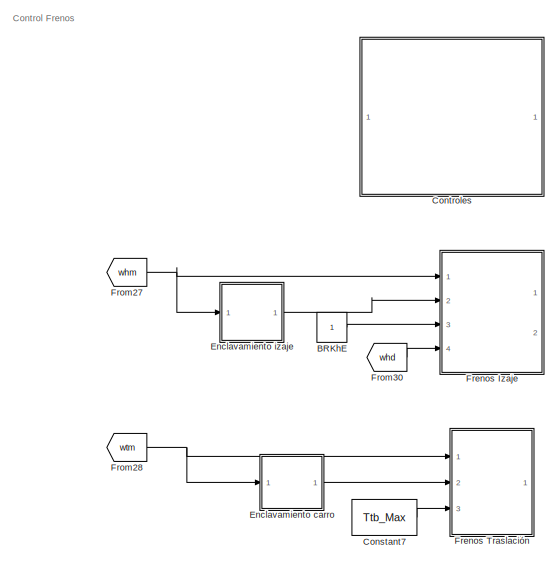
[diagram: root canvas - part 1/14, top right region]
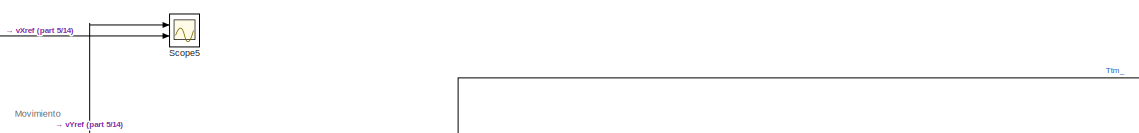
[diagram: root canvas - part 2/14, top center region]
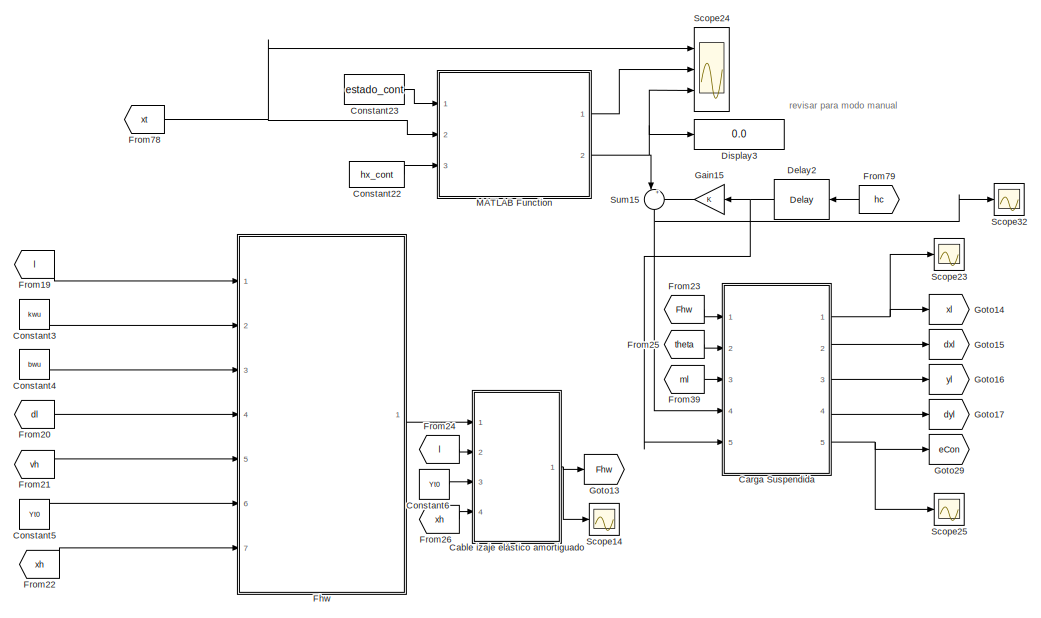
[diagram: root canvas - part 3/14, top right region]
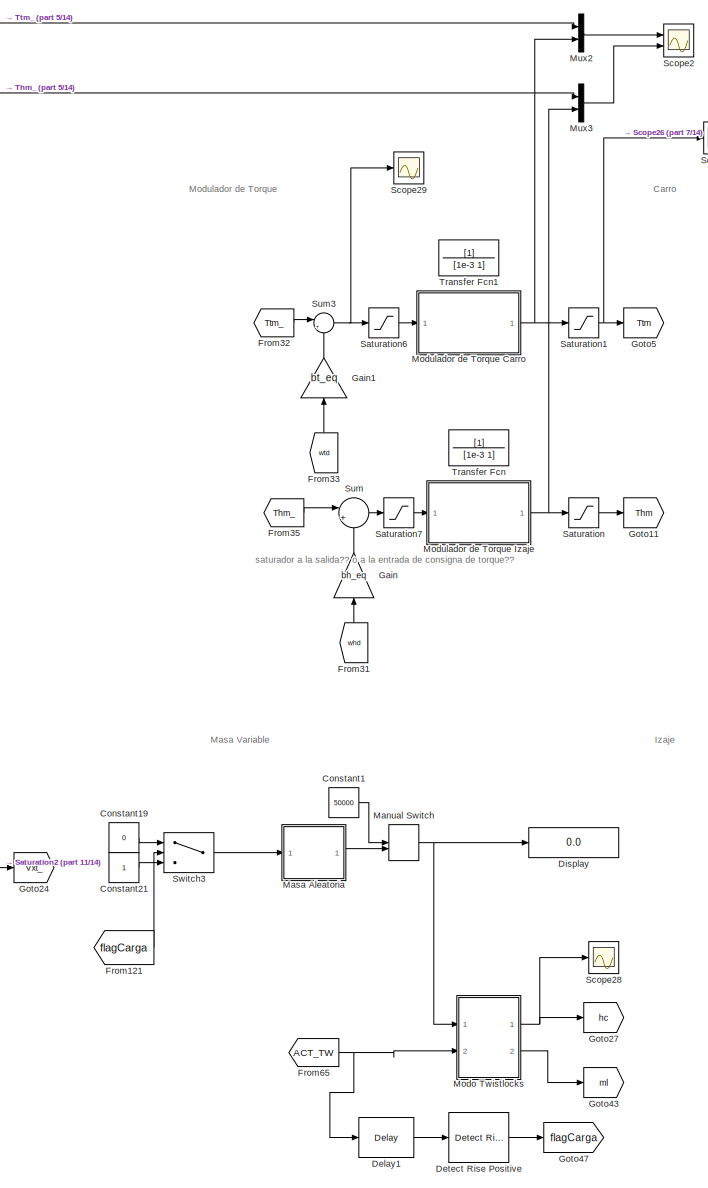
[diagram: root canvas - part 4/14, middle right region]
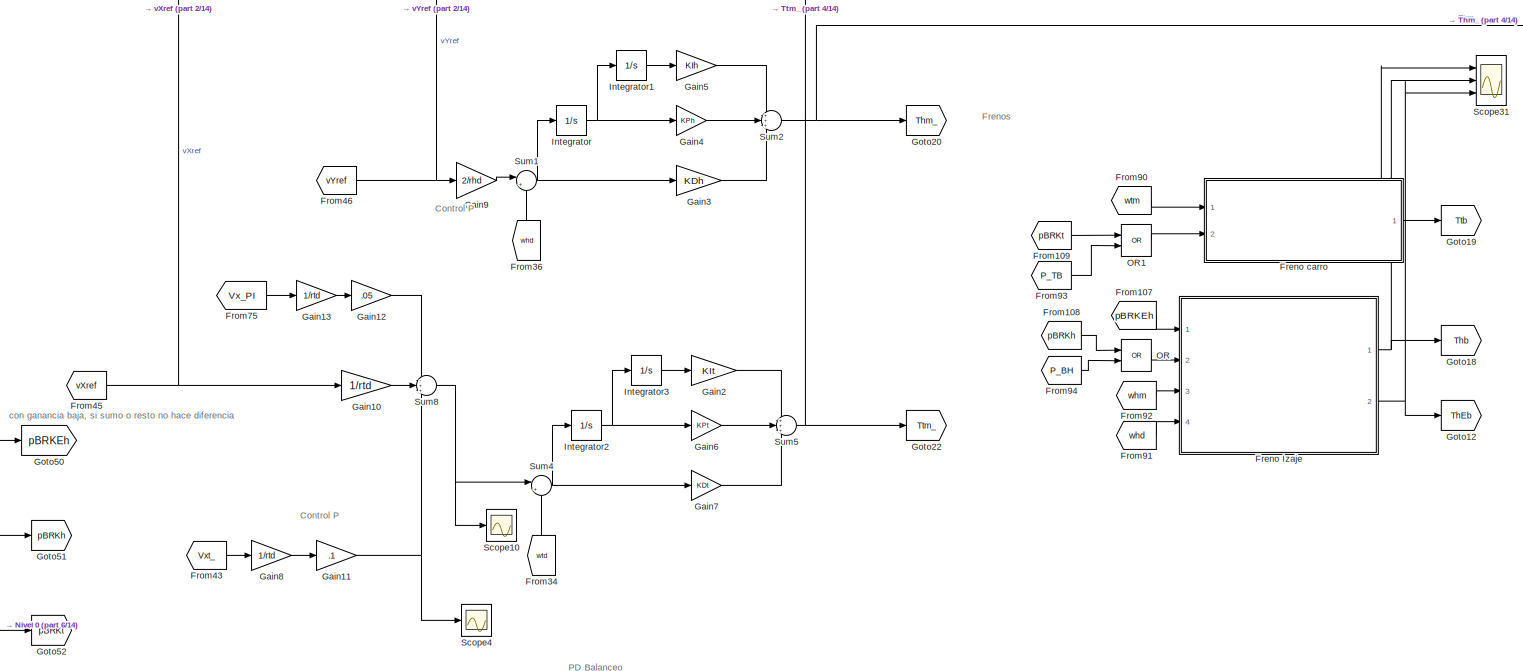
[diagram: root canvas - part 5/14, central region]
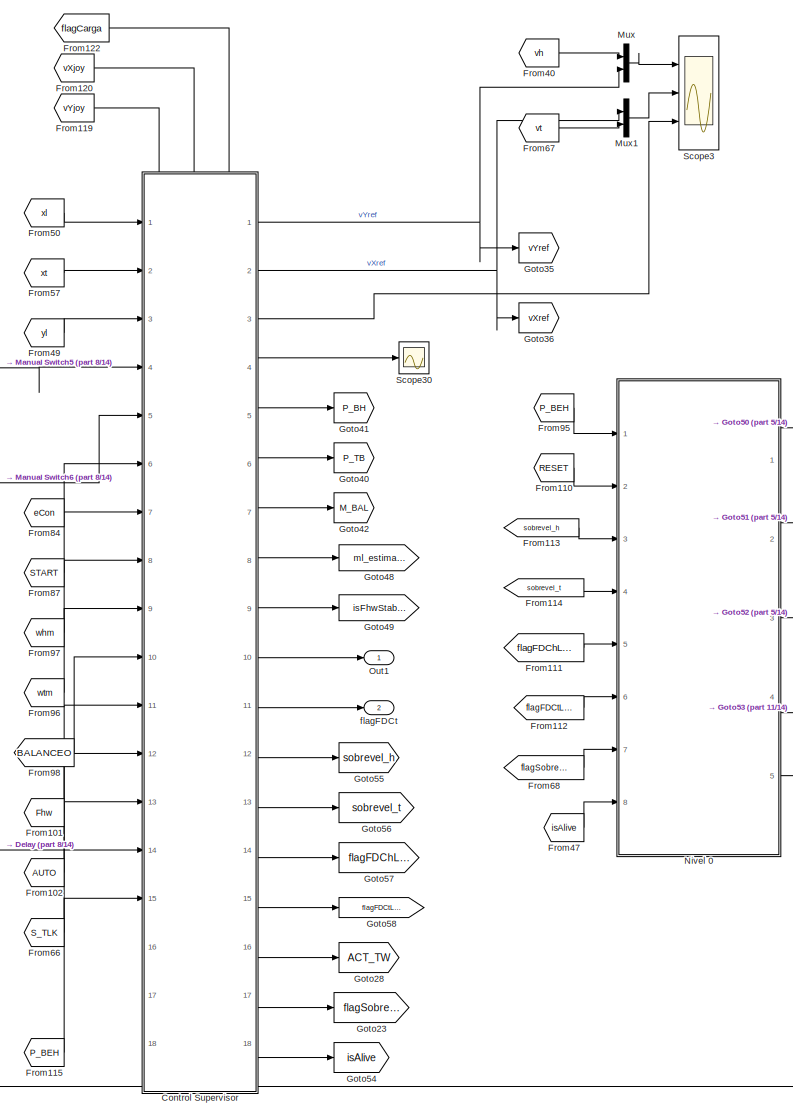
[diagram: root canvas - part 6/14, central region]
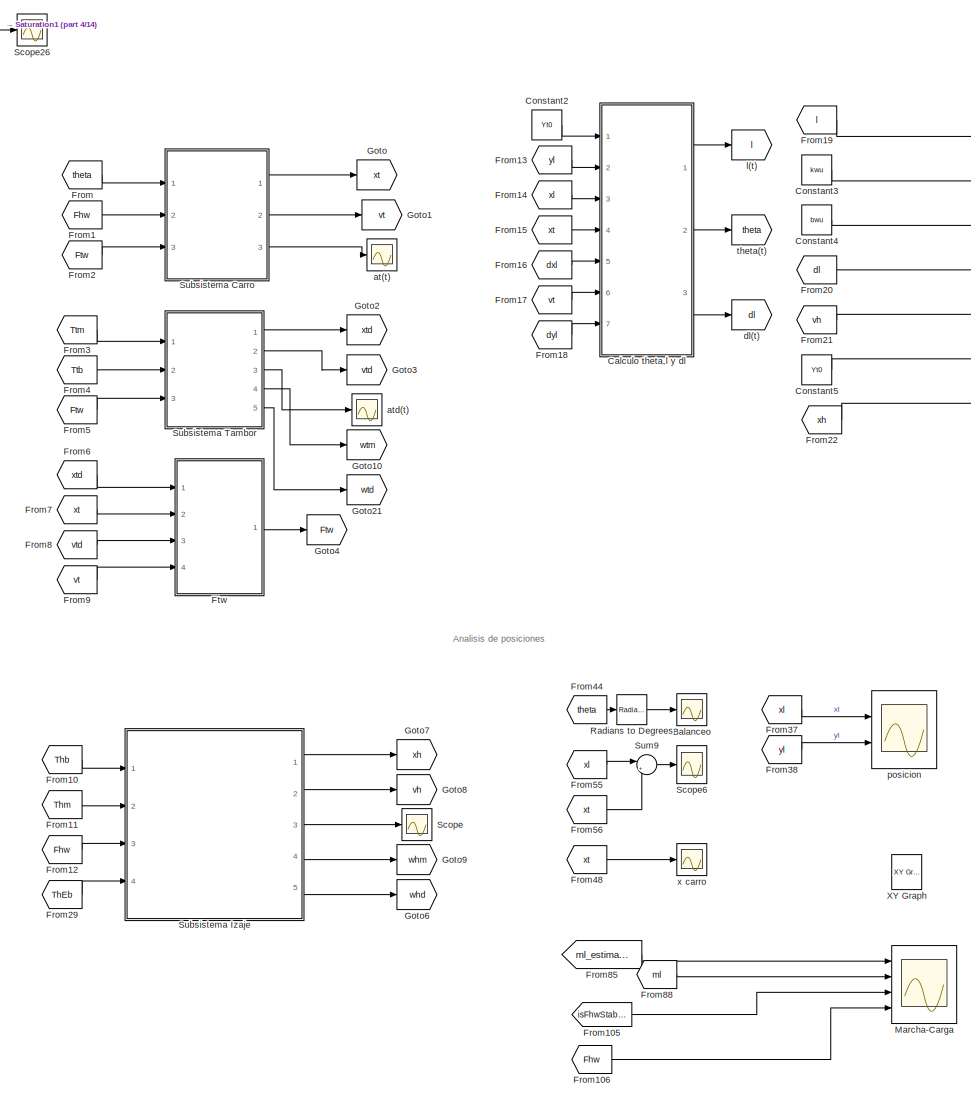
[diagram: root canvas - part 7/14, middle right region]
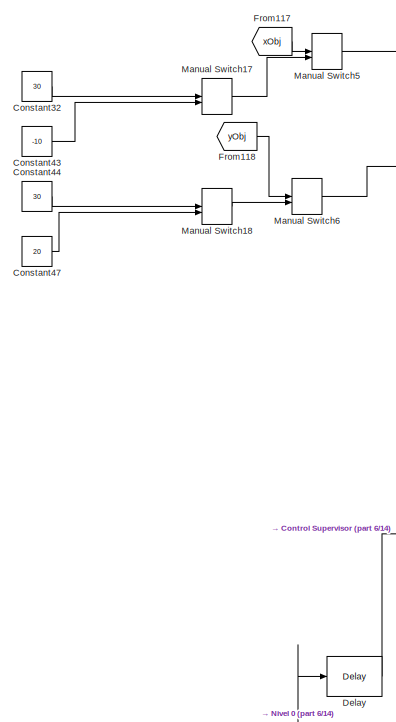
[diagram: root canvas - part 8/14, central region]
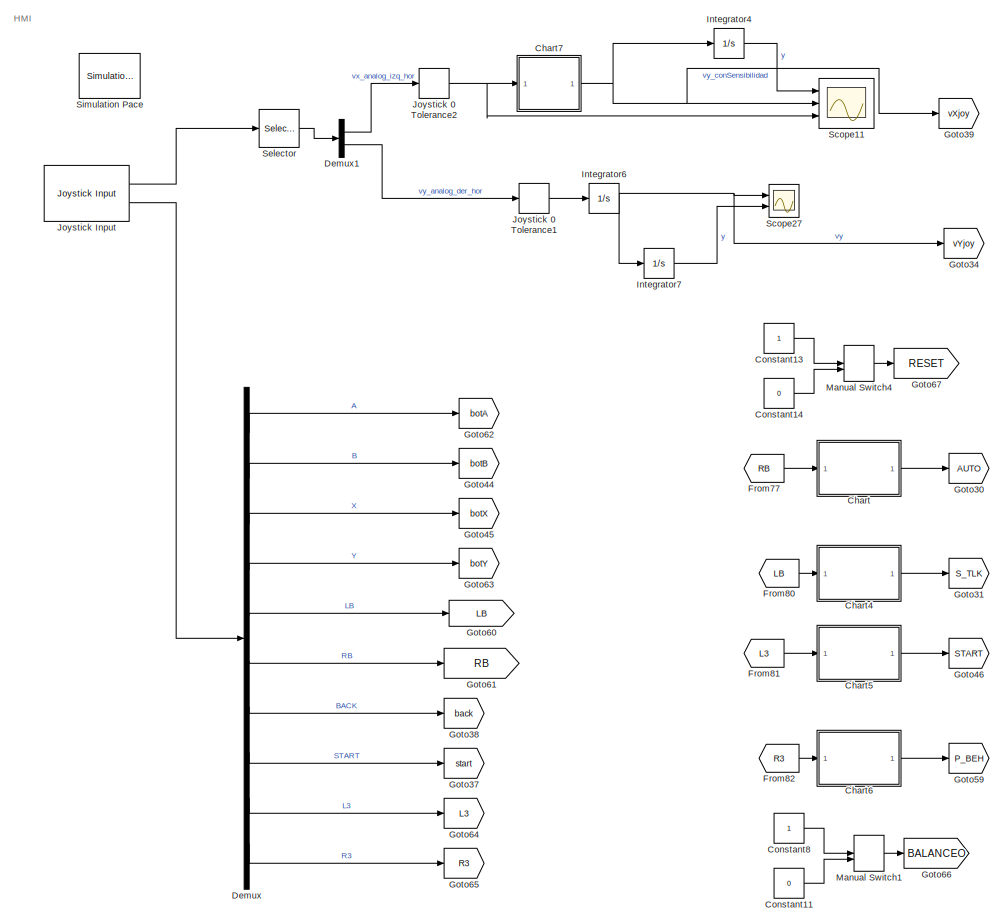
[diagram: root canvas - part 9/14, middle left region]
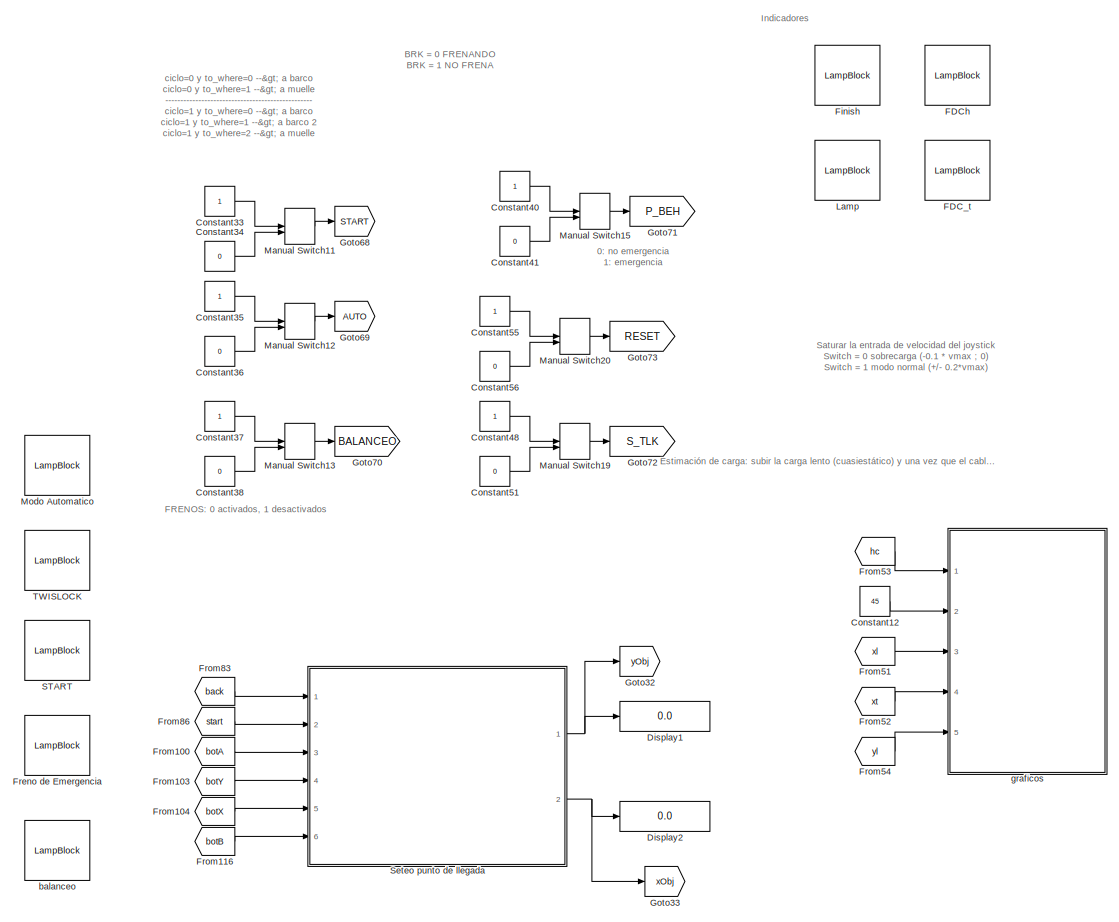
[diagram: root canvas - part 10/14, middle left region]
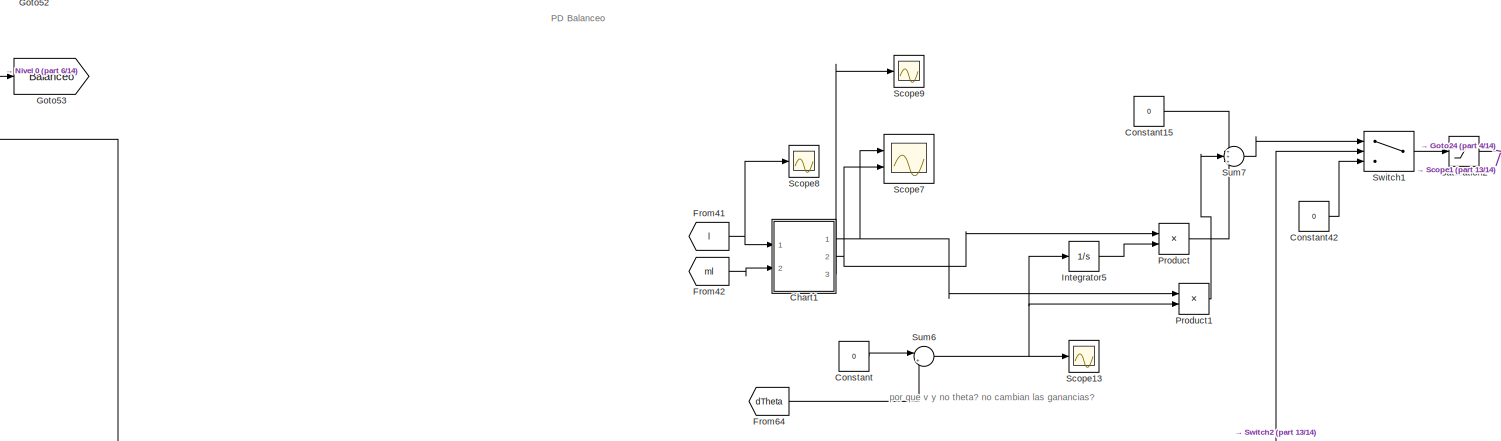
[diagram: root canvas - part 11/14, central region]
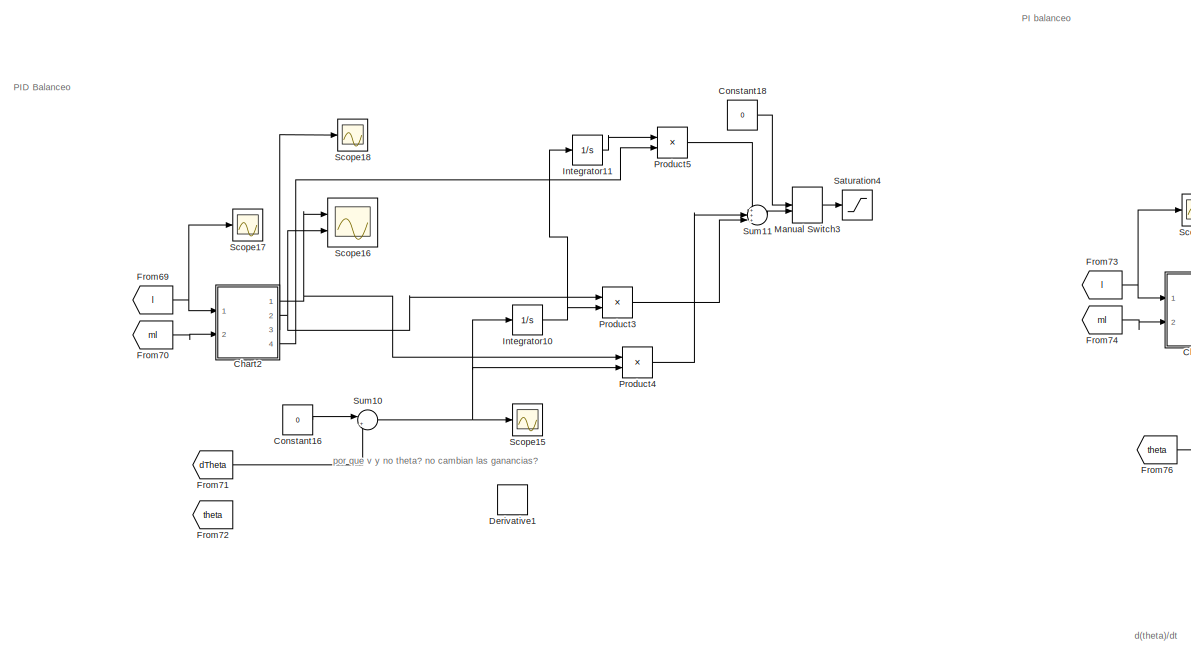
[diagram: root canvas - part 12/14, bottom center region]
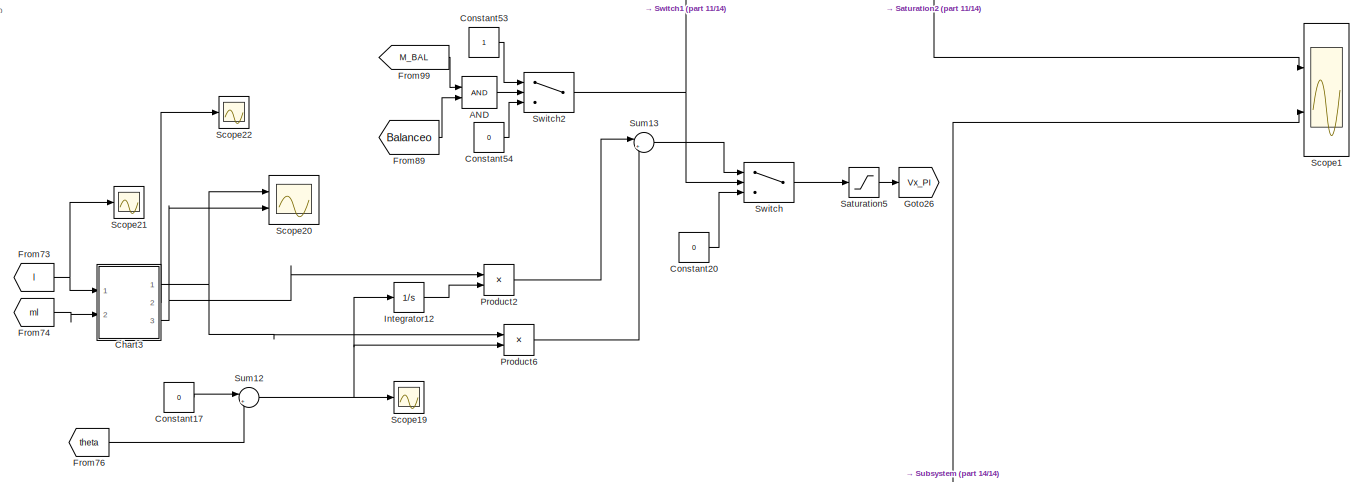
[diagram: root canvas - part 13/14, bottom center region]
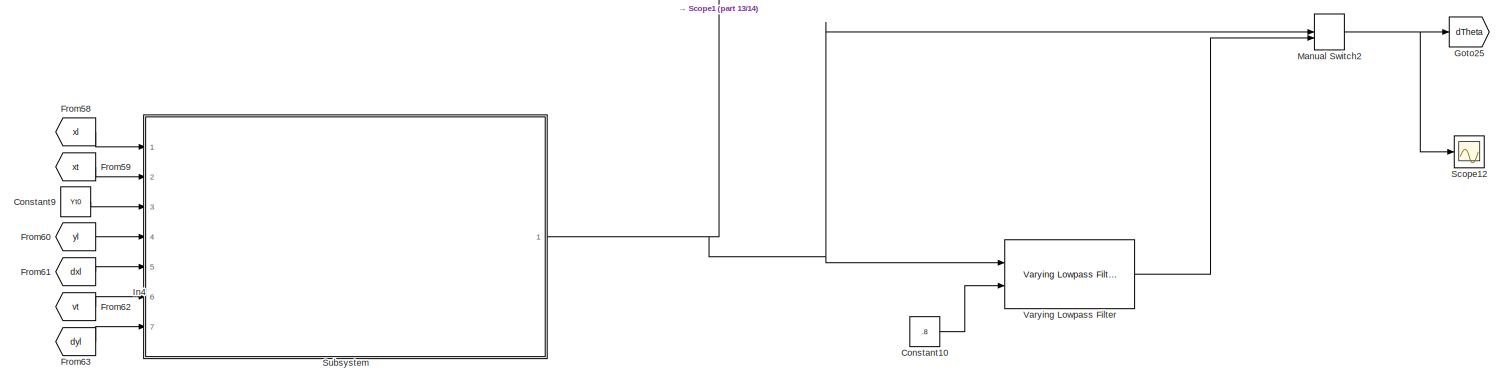
[diagram: root canvas - part 14/14, bottom right region]
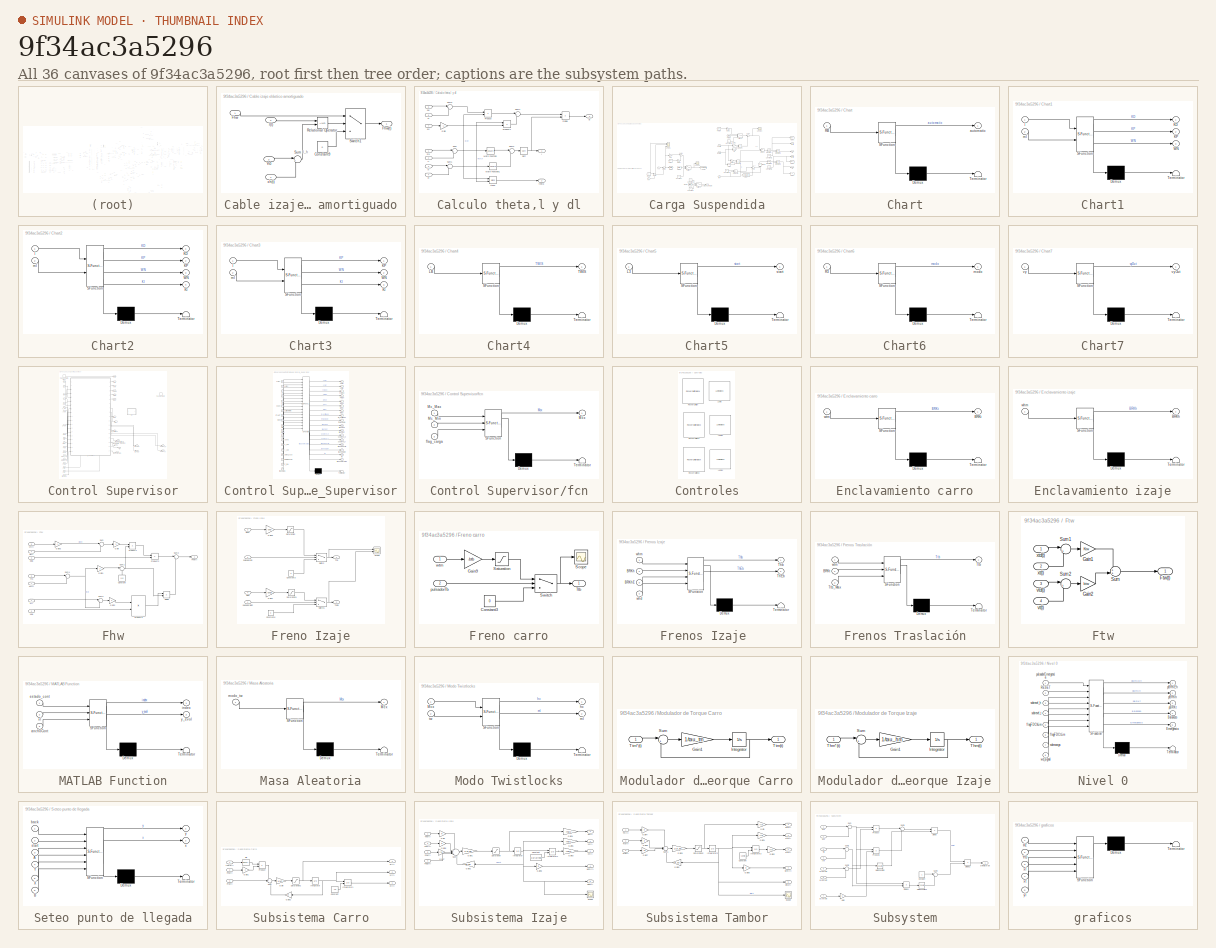
[diagram: thumbnail index - all 36 canvases of the model, root first then tree order]
MODEL slx_9f34ac3a5296
KIND model
CONFIG AbsTol = auto
CONFIG EnableMultiTasking = off
CONFIG FixedStep = 0.002
CONFIG MaxStep = 1e-2
CONFIG MinStep = auto
CONFIG RelTol = 1e-3
CONFIG SampleTimeConstraint = Unconstrained
CONFIG SolverName = FixedStepAuto
CONFIG StartTime = 0.0
CONFIG StopTime = 300
BLOCK [Logic] AND
  AllPortsSameDT = off
  IconShape = distinctive
  OutDataTypeStr = boolean
  Ports = [2, 1]
BLOCK [Constant] BRKhE
  Commented = on
BLOCK [Scope] Balanceo
  Floating = off
  NumInputPorts = 1
  Ports = [1]
  ScopeSpecificationString = Simulink.scopes.TimeScopeBlockCfg('CurrentConfiguration', extmgr.ConfigurationSet(extmgr.Configuration('Core','General UI',true,'FigureColor',[0.831372549019608 0.815686274509804 0.784313725490196]),extmgr.Configuration('Core','Source UI',true),extmgr.Configuration('Sources','WiredSimulink',true,'DataLoggingVariableName','ScopeData3'),extmgr.Configuration('Visuals','Time Domain',true,'SerializedDi...<+1917ch>
BLOCK [SubSystem] Cable izaje elástico amortiguado
  Ports = [4, 1]
  RequestExecContextInheritance = off
BLOCK [Constant] Cable izaje elástico amortiguado/Constant9
  Value = 0
BLOCK [Inport] Cable izaje elástico amortiguado/Fhw
BLOCK [Outport] Cable izaje elástico amortiguado/Fhw(t)
BLOCK [RelationalOperator] Cable izaje elástico amortiguado/Relational Operator
  InputSameDT = off
  OutDataTypeStr = boolean
  Ports = [2, 1]
  RndMeth = Simplest
BLOCK [Sum] Cable izaje elástico amortiguado/Sum
  Inputs = |+-
  Ports = [2, 1]
BLOCK [Switch] Cable izaje elástico amortiguado/Switch1
  Criteria = u2 > Threshold
  InputSameDT = off
  SaturateOnIntegerOverflow = off
BLOCK [Inport] Cable izaje elástico amortiguado/Yt0
  Port = 3
BLOCK [Inport] Cable izaje elástico amortiguado/l(t)
  Port = 2
BLOCK [Inport] Cable izaje elástico amortiguado/xh(t)
  Port = 4
BLOCK [SubSystem] Calculo theta,l y dl
  Ports = [7, 3]
  RequestExecContextInheritance = off
BLOCK [Trigonometry] Calculo theta,l y dl/Atan2
  Operator = atan2
  Ports = [2, 1]
BLOCK [Product] Calculo theta,l y dl/Divide
  Inputs = */
  Ports = [2, 1]
BLOCK [Gain] Calculo theta,l y dl/Gain
  Gain = -1
BLOCK [Math] Calculo theta,l y dl/Math Function
  Operator = square
  Ports = [1, 1]
BLOCK [Math] Calculo theta,l y dl/Math Function1
  Operator = square
  Ports = [1, 1]
BLOCK [Product] Calculo theta,l y dl/Product
  Ports = [2, 1]
BLOCK [Product] Calculo theta,l y dl/Product1
  Ports = [2, 1]
BLOCK [Sqrt] Calculo theta,l y dl/Sqrt
BLOCK [Sum] Calculo theta,l y dl/Sum
  Inputs = |+-
  Ports = [2, 1]
BLOCK [Sum] Calculo theta,l y dl/Sum1
  Inputs = |+-
  Ports = [2, 1]
BLOCK [Sum] Calculo theta,l y dl/Sum2
  Inputs = |++
  Ports = [2, 1]
BLOCK [Sum] Calculo theta,l y dl/Sum3
  Inputs = |+-
  Ports = [2, 1]
BLOCK [Sum] Calculo theta,l y dl/Sum4
  Inputs = |++
  Ports = [2, 1]
BLOCK [Inport] Calculo theta,l y dl/Yt0
BLOCK [Outport] Calculo theta,l y dl/dl
  Port = 3
BLOCK [Inport] Calculo theta,l y dl/dxl
  Port = 5
BLOCK [Inport] Calculo theta,l y dl/dyl
  Port = 7
BLOCK [Outport] Calculo theta,l y dl/l
BLOCK [Outport] Calculo theta,l y dl/theta
  Port = 2
BLOCK [Inport] Calculo theta,l y dl/vt
  Port = 6
BLOCK [Inport] Calculo theta,l y dl/xl
  Port = 3
BLOCK [Inport] Calculo theta,l y dl/xt
  Port = 4
BLOCK [Inport] Calculo theta,l y dl/yl
  Port = 2
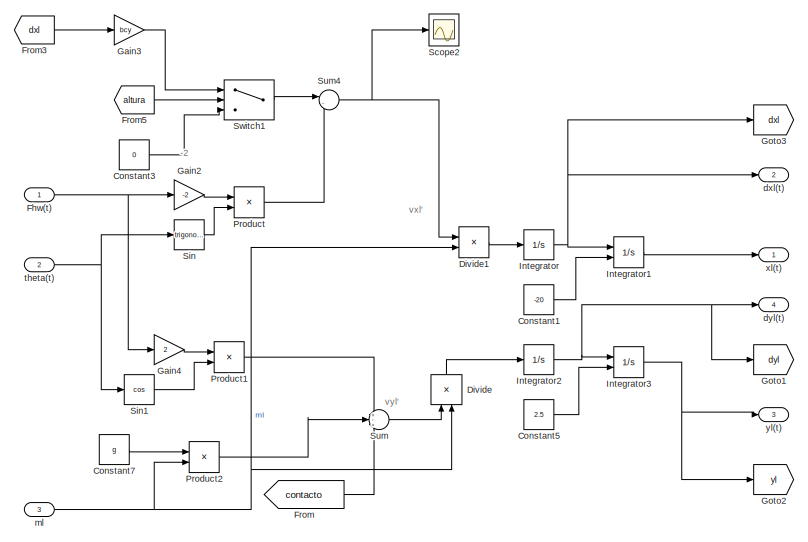
[diagram: Carga Suspendida - part 1/2, right side, full height]
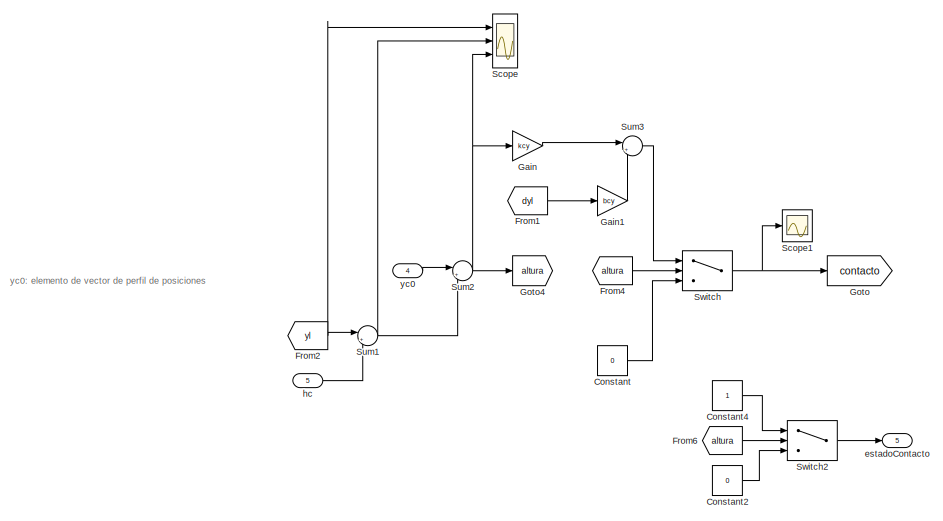
[diagram: Carga Suspendida - part 2/2, left side, full height]
BLOCK [SubSystem] Carga Suspendida
  Ports = [5, 5]
  RequestExecContextInheritance = off
BLOCK [Constant] Carga Suspendida/Constant
  Value = 0
BLOCK [Constant] Carga Suspendida/Constant1
  Value = -20
BLOCK [Constant] Carga Suspendida/Constant2
  Value = 0
BLOCK [Constant] Carga Suspendida/Constant3
  Value = 0
BLOCK [Constant] Carga Suspendida/Constant4
BLOCK [Constant] Carga Suspendida/Constant5
  Value = 2.5
BLOCK [Constant] Carga Suspendida/Constant7
  Value = g
BLOCK [Product] Carga Suspendida/Divide
  Inputs = */
  NameLocation = right
  Ports = [2, 1]
BLOCK [Product] Carga Suspendida/Divide1
  Inputs = */
  Ports = [2, 1]
BLOCK [Inport] Carga Suspendida/Fhw(t)
BLOCK [From] Carga Suspendida/From
  GotoTag = contacto
BLOCK [From] Carga Suspendida/From1
  GotoTag = dyl
BLOCK [From] Carga Suspendida/From2
  GotoTag = yl
BLOCK [From] Carga Suspendida/From3
  GotoTag = dxl
BLOCK [From] Carga Suspendida/From4
  GotoTag = altura
BLOCK [From] Carga Suspendida/From5
  GotoTag = altura
BLOCK [From] Carga Suspendida/From6
  GotoTag = altura
BLOCK [Gain] Carga Suspendida/Gain
  Gain = kcy
BLOCK [Gain] Carga Suspendida/Gain1
  Gain = bcy
BLOCK [Gain] Carga Suspendida/Gain2
  Gain = -2
BLOCK [Gain] Carga Suspendida/Gain3
  Gain = bcy
BLOCK [Gain] Carga Suspendida/Gain4
  Gain = 2
BLOCK [Goto] Carga Suspendida/Goto
  GotoTag = contacto
BLOCK [Goto] Carga Suspendida/Goto1
  GotoTag = dyl
BLOCK [Goto] Carga Suspendida/Goto2
  GotoTag = yl
BLOCK [Goto] Carga Suspendida/Goto3
  GotoTag = dxl
BLOCK [Goto] Carga Suspendida/Goto4
  GotoTag = altura
BLOCK [Integrator] Carga Suspendida/Integrator
  Ports = [1, 1]
BLOCK [Integrator] Carga Suspendida/Integrator1
  InitialConditionSource = external
  Ports = [2, 1]
BLOCK [Integrator] Carga Suspendida/Integrator2
  Ports = [1, 1]
BLOCK [Integrator] Carga Suspendida/Integrator3
  InitialConditionSource = external
  Ports = [2, 1]
BLOCK [Product] Carga Suspendida/Product
  Ports = [2, 1]
BLOCK [Product] Carga Suspendida/Product1
  Ports = [2, 1]
BLOCK [Product] Carga Suspendida/Product2
  Ports = [2, 1]
BLOCK [Scope] Carga Suspendida/Scope
  Floating = off
  NumInputPorts = 3
  Ports = [3]
  ScopeSpecificationString = Simulink.scopes.TimeScopeBlockCfg('CurrentConfiguration', extmgr.ConfigurationSet(extmgr.Configuration('Core','General UI',true),extmgr.Configuration('Core','Source UI',true),extmgr.Configuration('Sources','WiredSimulink',true,'DataLoggingVariableName','ScopeData3'),extmgr.Configuration('Visuals','Time Domain',true,'SerializedDisplays',{struct('MinYLimReal','0.95507','MaxYLimReal','13.8906','YLabe...<+2746ch>
BLOCK [Scope] Carga Suspendida/Scope1
  Floating = off
  NumInputPorts = 1
  Ports = [1]
  ScopeSpecificationString = Simulink.scopes.TimeScopeBlockCfg('CurrentConfiguration', extmgr.ConfigurationSet(extmgr.Configuration('Core','General UI',true),extmgr.Configuration('Core','Source UI',true),extmgr.Configuration('Sources','WiredSimulink',true,'DataLoggingVariableName','ScopeData5'),extmgr.Configuration('Visuals','Time Domain',true,'SerializedDisplays',{struct('MinYLimReal','-1.00000','MaxYLimReal','1.00000','YLab...<+1394ch>
BLOCK [Scope] Carga Suspendida/Scope2
  Floating = off
  NumInputPorts = 1
  Ports = [1]
  ScopeSpecificationString = Simulink.scopes.TimeScopeBlockCfg('CurrentConfiguration', extmgr.ConfigurationSet(extmgr.Configuration('Core','General UI',true),extmgr.Configuration('Core','Source UI',true),extmgr.Configuration('Sources','WiredSimulink',true,'DataLoggingVariableName','ScopeData1'),extmgr.Configuration('Visuals','Time Domain',true,'SerializedDisplays',{struct('MinYLimReal','-52271.63311','MaxYLimReal','112082.658...<+1470ch>
BLOCK [Trigonometry] Carga Suspendida/Sin
  Ports = [1, 1]
BLOCK [Trigonometry] Carga Suspendida/Sin1
  Operator = cos
  Ports = [1, 1]
BLOCK [Sum] Carga Suspendida/Sum
  Inputs = +-+
  Ports = [3, 1]
BLOCK [Sum] Carga Suspendida/Sum1
  Inputs = |+-
  Ports = [2, 1]
BLOCK [Sum] Carga Suspendida/Sum2
  Inputs = |+-
  Ports = [2, 1]
BLOCK [Sum] Carga Suspendida/Sum3
  Inputs = |+-
  Ports = [2, 1]
BLOCK [Sum] Carga Suspendida/Sum4
  Inputs = |-+
  Ports = [2, 1]
BLOCK [Switch] Carga Suspendida/Switch
  InputSameDT = off
  SaturateOnIntegerOverflow = off
BLOCK [Switch] Carga Suspendida/Switch1
  InputSameDT = off
  SaturateOnIntegerOverflow = off
BLOCK [Switch] Carga Suspendida/Switch2
  InputSameDT = off
  SaturateOnIntegerOverflow = off
BLOCK [Outport] Carga Suspendida/dxl(t)
  Port = 2
BLOCK [Outport] Carga Suspendida/dyl(t)
  Port = 4
BLOCK [Outport] Carga Suspendida/estadoContacto
  Port = 5
BLOCK [Inport] Carga Suspendida/hc
  Port = 5
BLOCK [Inport] Carga Suspendida/ml
  Port = 3
BLOCK [Inport] Carga Suspendida/theta(t)
  Port = 2
BLOCK [Outport] Carga Suspendida/xl(t)
BLOCK [Inport] Carga Suspendida/yc0
  Port = 4
BLOCK [Outport] Carga Suspendida/yl(t)
  Port = 3
BLOCK [SubSystem] Chart
  Commented = on
  ErrorFcn = Stateflow.Translate.translate
  PermitHierarchicalResolution = ExplicitOnly
  Ports = [1, 1]
  RequestExecContextInheritance = off
  SFBlockType = Chart
  TreatAsAtomicUnit = on
BLOCK [Demux] Chart/ Demux 
  Outputs = 1
  Ports = [1, 1]
BLOCK [S-Function] Chart/ SFunction 
  EnableBusSupport = on
  FunctionName = sf_sfun
  PortCounts = [1 2]
  Ports = [1, 2]
  SFcnIsStateOwnerBlock = off
  SFunctionDeploymentMode = off
  Tag = Stateflow S-Function 7
BLOCK [Terminator] Chart/ Terminator 
BLOCK [Inport] Chart/RB
BLOCK [Outport] Chart/automatic
BLOCK [SubSystem] Chart1
  ErrorFcn = Stateflow.Translate.translate
  PermitHierarchicalResolution = ExplicitOnly
  Ports = [2, 3]
  RequestExecContextInheritance = off
  SFBlockType = Chart
  TreatAsAtomicUnit = on
BLOCK [Demux] Chart1/ Demux 
  Outputs = 1
  Ports = [1, 1]
BLOCK [S-Function] Chart1/ SFunction 
  EnableBusSupport = on
  FunctionName = sf_sfun
  Parameters = Meq,Mt,g
  PortCounts = [2 4]
  Ports = [2, 4]
  SFcnIsStateOwnerBlock = off
  SFunctionDeploymentMode = off
  Tag = Stateflow S-Function 4
BLOCK [Terminator] Chart1/ Terminator 
BLOCK [Outport] Chart1/KD
BLOCK [Outport] Chart1/KP
  Port = 2
BLOCK [Outport] Chart1/WN
  Port = 3
BLOCK [Inport] Chart1/l
BLOCK [Inport] Chart1/ml
  Port = 2
BLOCK [SubSystem] Chart2
  Commented = on
  ErrorFcn = Stateflow.Translate.translate
  PermitHierarchicalResolution = ExplicitOnly
  Ports = [2, 4]
  RequestExecContextInheritance = off
  SFBlockType = Chart
  TreatAsAtomicUnit = on
BLOCK [Demux] Chart2/ Demux 
  Outputs = 1
  Ports = [1, 1]
BLOCK [S-Function] Chart2/ SFunction 
  EnableBusSupport = on
  FunctionName = sf_sfun
  Parameters = Meq,Mt,g
  PortCounts = [2 5]
  Ports = [2, 5]
  SFcnIsStateOwnerBlock = off
  SFunctionDeploymentMode = off
  Tag = Stateflow S-Function 5
BLOCK [Terminator] Chart2/ Terminator 
BLOCK [Outport] Chart2/KD
BLOCK [Outport] Chart2/KI
  Port = 4
BLOCK [Outport] Chart2/KP
  Port = 2
BLOCK [Outport] Chart2/WN
  Port = 3
BLOCK [Inport] Chart2/l
BLOCK [Inport] Chart2/ml
  Port = 2
BLOCK [SubSystem] Chart3
  ErrorFcn = Stateflow.Translate.translate
  PermitHierarchicalResolution = ExplicitOnly
  Ports = [2, 3]
  RequestExecContextInheritance = off
  SFBlockType = Chart
  TreatAsAtomicUnit = on
BLOCK [Demux] Chart3/ Demux 
  Outputs = 1
  Ports = [1, 1]
BLOCK [S-Function] Chart3/ SFunction 
  EnableBusSupport = on
  FunctionName = sf_sfun
  Parameters = Meq,Mt,g
  PortCounts = [2 4]
  Ports = [2, 4]
  SFcnIsStateOwnerBlock = off
  SFunctionDeploymentMode = off
  Tag = Stateflow S-Function 6
BLOCK [Terminator] Chart3/ Terminator 
BLOCK [Outport] Chart3/KI
  Port = 3
BLOCK [Outport] Chart3/KP
BLOCK [Outport] Chart3/WN
  Port = 2
BLOCK [Inport] Chart3/l
BLOCK [Inport] Chart3/ml
  Port = 2
BLOCK [SubSystem] Chart4
  Commented = on
  ErrorFcn = Stateflow.Translate.translate
  PermitHierarchicalResolution = ExplicitOnly
  Ports = [1, 1]
  RequestExecContextInheritance = off
  SFBlockType = Chart
  TreatAsAtomicUnit = on
BLOCK [Demux] Chart4/ Demux 
  Outputs = 1
  Ports = [1, 1]
BLOCK [S-Function] Chart4/ SFunction 
  EnableBusSupport = on
  FunctionName = sf_sfun
  PortCounts = [1 2]
  Ports = [1, 2]
  SFcnIsStateOwnerBlock = off
  SFunctionDeploymentMode = off
  Tag = Stateflow S-Function 13
BLOCK [Terminator] Chart4/ Terminator 
BLOCK [Inport] Chart4/LB
BLOCK [Outport] Chart4/TWIS
BLOCK [SubSystem] Chart5
  Commented = on
  ErrorFcn = Stateflow.Translate.translate
  PermitHierarchicalResolution = ExplicitOnly
  Ports = [1, 1]
  RequestExecContextInheritance = off
  SFBlockType = Chart
  TreatAsAtomicUnit = on
BLOCK [Demux] Chart5/ Demux 
  Outputs = 1
  Ports = [1, 1]
BLOCK [S-Function] Chart5/ SFunction 
  EnableBusSupport = on
  FunctionName = sf_sfun
  PortCounts = [1 2]
  Ports = [1, 2]
  SFcnIsStateOwnerBlock = off
  SFunctionDeploymentMode = off
  Tag = Stateflow S-Function 17
BLOCK [Terminator] Chart5/ Terminator 
BLOCK [Inport] Chart5/L3
BLOCK [Outport] Chart5/start
BLOCK [SubSystem] Chart6
  Commented = on
  ErrorFcn = Stateflow.Translate.translate
  PermitHierarchicalResolution = ExplicitOnly
  Ports = [1, 1]
  RequestExecContextInheritance = off
  SFBlockType = Chart
  TreatAsAtomicUnit = on
BLOCK [Demux] Chart6/ Demux 
  Outputs = 1
  Ports = [1, 1]
BLOCK [S-Function] Chart6/ SFunction 
  EnableBusSupport = on
  FunctionName = sf_sfun
  PortCounts = [1 2]
  Ports = [1, 2]
  SFcnIsStateOwnerBlock = off
  SFunctionDeploymentMode = off
  Tag = Stateflow S-Function 18
BLOCK [Terminator] Chart6/ Terminator 
BLOCK [Inport] Chart6/R3
BLOCK [Outport] Chart6/modo
BLOCK [SubSystem] Chart7
  Commented = on
  ErrorFcn = Stateflow.Translate.translate
  PermitHierarchicalResolution = ExplicitOnly
  Ports = [1, 1]
  RequestExecContextInheritance = off
  SFBlockType = Chart
  TreatAsAtomicUnit = on
BLOCK [Demux] Chart7/ Demux 
  Outputs = 1
  Ports = [1, 1]
BLOCK [S-Function] Chart7/ SFunction 
  EnableBusSupport = on
  FunctionName = sf_sfun
  PortCounts = [1 2]
  Ports = [1, 2]
  SFcnIsStateOwnerBlock = off
  SFunctionDeploymentMode = off
  Tag = Stateflow S-Function 19
BLOCK [Terminator] Chart7/ Terminator 
BLOCK [Inport] Chart7/vy
BLOCK [Outport] Chart7/vyOut
BLOCK [Constant] Constant
  Value = 0
BLOCK [Constant] Constant1
  Value = 50000
BLOCK [Constant] Constant10
  Value = .8
BLOCK [Constant] Constant11
  Commented = on
  Value = 0
BLOCK [Constant] Constant12
  Commented = on
  Value = 45
BLOCK [Constant] Constant13
  Commented = on
BLOCK [Constant] Constant14
  Commented = on
  Value = 0
BLOCK [Constant] Constant15
  Value = 0
BLOCK [Constant] Constant16
  Commented = on
  Value = 0
BLOCK [Constant] Constant17
  Value = 0
BLOCK [Constant] Constant18
  Commented = on
  Value = 0
BLOCK [Constant] Constant19
  Value = 0
BLOCK [Constant] Constant2
  Value = Yt0
BLOCK [Constant] Constant20
  Value = 0
BLOCK [Constant] Constant21
BLOCK [Constant] Constant22
  Value = hx_cont
BLOCK [Constant] Constant23
  Value = estado_cont
BLOCK [Constant] Constant3
  Value = kwu
BLOCK [Constant] Constant32
  Value = 30
BLOCK [Constant] Constant33
BLOCK [Constant] Constant34
  Value = 0
BLOCK [Constant] Constant35
BLOCK [Constant] Constant36
  Value = 0
BLOCK [Constant] Constant37
BLOCK [Constant] Constant38
  Value = 0
BLOCK [Constant] Constant4
  Value = bwu
BLOCK [Constant] Constant40
BLOCK [Constant] Constant41
  Value = 0
BLOCK [Constant] Constant42
  Value = 0
BLOCK [Constant] Constant43
  Value = -10
BLOCK [Constant] Constant44
  Value = 30
BLOCK [Constant] Constant47
  Value = 20
BLOCK [Constant] Constant48
BLOCK [Constant] Constant5
  Value = Yt0
BLOCK [Constant] Constant51
  Value = 0
BLOCK [Constant] Constant53
BLOCK [Constant] Constant54
  Value = 0
BLOCK [Constant] Constant55
BLOCK [Constant] Constant56
  Value = 0
BLOCK [Constant] Constant6
  Value = Yt0
BLOCK [Constant] Constant7
  Commented = on
  Value = Ttb_Max
BLOCK [Constant] Constant8
  Commented = on
BLOCK [Constant] Constant9
  Value = Yt0
BLOCK [SubSystem] Control Supervisor
  PortSchema = {"entries":[{"content":{"sides":[{"content":{"connectorIds":["In1","In2","In3","In4","In5","In6","In7","In8","In9","In10","In11","In12","In13","In14","In15"]},"type":"ConnectorPlacement.EquallySpacedRectSide","uuid":"b7366208-2025-473b-a2ec-6d3fbb769334"},{"content":{"connectorIds":["Out1","Out2","Out3","Out4","Out5","Out6","Out7","Out8","Out9","Out10","Out11","Out12","Out13","Out14","Out15","Out1...<+478ch>
  Ports = [18, 18]
  RequestExecContextInheritance = off
BLOCK [Inport] Control Supervisor/AUTO
  Port = 12
BLOCK [Outport] Control Supervisor/BRKh
  Port = 5
BLOCK [Outport] Control Supervisor/BRKt
  Port = 6
BLOCK [Clock] Control Supervisor/Clock
BLOCK [Inport] Control Supervisor/Emergencia
  Port = 14
BLOCK [Outport] Control Supervisor/FINISH
  Port = 4
BLOCK [Inport] Control Supervisor/Fhw
  Port = 11
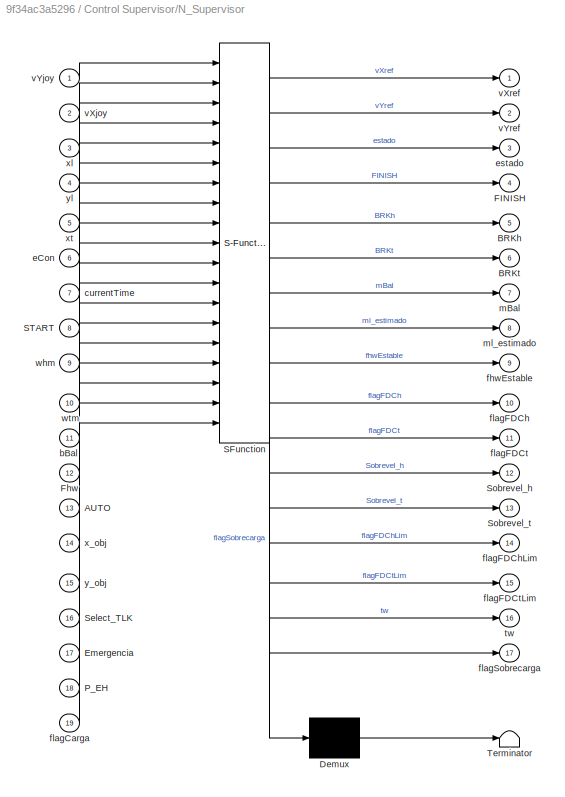
BLOCK [SubSystem] Control Supervisor/N_Supervisor
  ErrorFcn = Stateflow.Translate.translate
  PermitHierarchicalResolution = ExplicitOnly
  PortSchema = {"entries":[{"content":{"sides":[{"content":{"connectorIds":["In7","In5","In3","In4","In6","In13","In14","In8","In9","In10","In11","In12","In15","In16","In17","In18","In19"]},"type":"ConnectorPlacement.EquallySpacedRectSide","uuid":"7754e6e1-1487-4c5e-b93c-5b95548dc503"},{"content":{"connectorIds":["Out1","Out2","Out3","Out4","Out5","Out6","Out7","Out8","Out9","Out10","Out11","Out12","Out13","Out1...<+621ch>
  Ports = [19, 17]
  RequestExecContextInheritance = off
  SFBlockType = Chart
  TreatAsAtomicUnit = on
BLOCK [Demux] Control Supervisor/N_Supervisor/ Demux 
  Outputs = 1
  Ports = [1, 1]
BLOCK [S-Function] Control Supervisor/N_Supervisor/ SFunction 
  EnableBusSupport = on
  FunctionName = sf_sfun
  Parameters = Hc,Mc_max,Ms,ax_max,ay_max,estado_cont,g,hx_cont,pos,vhmax,vx_max,whmMax,whmMin,wtmMax,wtmMin,xLimMax,xLimMin,yLimMax,yLimMin
  PortCounts = [19 18]
  Ports = [19, 18]
  SFcnIsStateOwnerBlock = off
  SFunctionDeploymentMode = off
  Tag = Stateflow S-Function 15
BLOCK [Terminator] Control Supervisor/N_Supervisor/ Terminator 
BLOCK [Inport] Control Supervisor/N_Supervisor/AUTO
  Port = 13
BLOCK [Outport] Control Supervisor/N_Supervisor/BRKh
  Port = 5
BLOCK [Outport] Control Supervisor/N_Supervisor/BRKt
  Port = 6
BLOCK [Inport] Control Supervisor/N_Supervisor/Emergencia
  Port = 17
BLOCK [Outport] Control Supervisor/N_Supervisor/FINISH
  Port = 4
BLOCK [Inport] Control Supervisor/N_Supervisor/Fhw
  Port = 12
BLOCK [Inport] Control Supervisor/N_Supervisor/P_EH
  Port = 18
BLOCK [Inport] Control Supervisor/N_Supervisor/START
  Port = 8
BLOCK [Inport] Control Supervisor/N_Supervisor/Select_TLK
  Port = 16
BLOCK [Outport] Control Supervisor/N_Supervisor/Sobrevel_h
  Port = 12
BLOCK [Outport] Control Supervisor/N_Supervisor/Sobrevel_t
  Port = 13
BLOCK [Inport] Control Supervisor/N_Supervisor/bBal
  Port = 11
BLOCK [Inport] Control Supervisor/N_Supervisor/currentTime
  Port = 7
BLOCK [Inport] Control Supervisor/N_Supervisor/eCon
  Port = 6
BLOCK [Outport] Control Supervisor/N_Supervisor/estado
  Port = 3
BLOCK [Outport] Control Supervisor/N_Supervisor/fhwEstable
  Port = 9
BLOCK [Inport] Control Supervisor/N_Supervisor/flagCarga
  Port = 19
BLOCK [Outport] Control Supervisor/N_Supervisor/flagFDCh
  Port = 10
BLOCK [Outport] Control Supervisor/N_Supervisor/flagFDChLim
  Port = 14
BLOCK [Outport] Control Supervisor/N_Supervisor/flagFDCt
  Port = 11
BLOCK [Outport] Control Supervisor/N_Supervisor/flagFDCtLim
  Port = 15
BLOCK [Outport] Control Supervisor/N_Supervisor/flagSobrecarga
  Port = 17
BLOCK [Outport] Control Supervisor/N_Supervisor/mBal
  Port = 7
BLOCK [Outport] Control Supervisor/N_Supervisor/ml_estimado
  Port = 8
BLOCK [Outport] Control Supervisor/N_Supervisor/tw
  Port = 16
BLOCK [Inport] Control Supervisor/N_Supervisor/vXjoy
  Port = 2
BLOCK [Outport] Control Supervisor/N_Supervisor/vXref
BLOCK [Inport] Control Supervisor/N_Supervisor/vYjoy
BLOCK [Outport] Control Supervisor/N_Supervisor/vYref
  Port = 2
BLOCK [Inport] Control Supervisor/N_Supervisor/whm
  Port = 9
BLOCK [Inport] Control Supervisor/N_Supervisor/wtm
  Port = 10
BLOCK [Inport] Control Supervisor/N_Supervisor/x_obj
  Port = 14
BLOCK [Inport] Control Supervisor/N_Supervisor/xl
  Port = 3
BLOCK [Inport] Control Supervisor/N_Supervisor/xt
  Port = 5
BLOCK [Inport] Control Supervisor/N_Supervisor/y_obj
  Port = 15
BLOCK [Inport] Control Supervisor/N_Supervisor/yl
  Port = 4
BLOCK [Outport] Control Supervisor/Out1
  Port = 18
BLOCK [Inport] Control Supervisor/P_EH
  Port = 15
BLOCK [DiscretePulseGenerator] Control Supervisor/Pulse Generator
  Commented = on
  Period = 10
  Ports = [0, 1]
  PulseType = Time based
  PulseWidth = 5
BLOCK [DiscretePulseGenerator] Control Supervisor/Pulse Generator1
  Period = 1
  Ports = [0, 1]
  PulseType = Time based
  PulseWidth = 50
BLOCK [Inport] Control Supervisor/START
  Port = 7
BLOCK [Inport] Control Supervisor/Select_TLK
  Port = 13
BLOCK [Outport] Control Supervisor/Sobrevel_h
  Port = 12
BLOCK [Outport] Control Supervisor/Sobrevel_t
  Port = 13
BLOCK [Inport] Control Supervisor/bBal
  Port = 10
BLOCK [Inport] Control Supervisor/eCon
  Port = 6
BLOCK [Outport] Control Supervisor/estado
  Port = 3
BLOCK [SubSystem] Control Supervisor/fcn
  Commented = on
  ErrorFcn = Stateflow.Translate.translate
  PermitHierarchicalResolution = ExplicitOnly
  Ports = [3, 1]
  RequestExecContextInheritance = off
  SFBlockType = MATLAB Function
  TreatAsAtomicUnit = on
BLOCK [Demux] Control Supervisor/fcn/ Demux 
  Outputs = 1
  Ports = [1, 1]
BLOCK [S-Function] Control Supervisor/fcn/ SFunction 
  EnableBusSupport = on
  FunctionName = sf_sfun
  PortCounts = [3 2]
  Ports = [3, 2]
  SFcnIsStateOwnerBlock = off
  SFunctionDeploymentMode = off
  Tag = Stateflow S-Function 16
BLOCK [Terminator] Control Supervisor/fcn/ Terminator 
BLOCK [Inport] Control Supervisor/fcn/Mc_Max
BLOCK [Inport] Control Supervisor/fcn/Mc_Min
  Port = 2
BLOCK [Outport] Control Supervisor/fcn/Mcx
BLOCK [Inport] Control Supervisor/fcn/flag_carga
  Port = 3
BLOCK [Outport] Control Supervisor/fhwEstable
  Port = 9
BLOCK [Inport] Control Supervisor/flagCarga
  Port = 18
BLOCK [Outport] Control Supervisor/flagFDCh
  Port = 10
BLOCK [Outport] Control Supervisor/flagFDChLim
  Port = 14
BLOCK [Outport] Control Supervisor/flagFDCt
  Port = 11
BLOCK [Outport] Control Supervisor/flagFDCtLim
  Port = 15
BLOCK [Outport] Control Supervisor/flagSobrecarga
  Port = 17
BLOCK [Outport] Control Supervisor/mBal
  Port = 7
BLOCK [Outport] Control Supervisor/ml_estimado
  Port = 8
BLOCK [Outport] Control Supervisor/tw
  Port = 16
BLOCK [Inport] Control Supervisor/vXjoy
  Port = 17
BLOCK [Outport] Control Supervisor/vXref
  Port = 2
BLOCK [Inport] Control Supervisor/vYjoy
  Port = 16
BLOCK [Outport] Control Supervisor/vYref
BLOCK [Inport] Control Supervisor/whm
  Port = 8
BLOCK [Inport] Control Supervisor/wtm
  Port = 9
BLOCK [Inport] Control Supervisor/x_obj
  Port = 4
BLOCK [Inport] Control Supervisor/xl
BLOCK [Inport] Control Supervisor/xt
  Port = 2
BLOCK [Inport] Control Supervisor/y_obj
  Port = 5
BLOCK [Inport] Control Supervisor/yl
  Port = 3
BLOCK [SubSystem] Controles
  Commented = on
  Ports = []
  RequestExecContextInheritance = off
BLOCK [LampBlock] Controles/Lamp
BLOCK [LampBlock] Controles/Lamp1
BLOCK [LampBlock] Controles/Lamp2
BLOCK [RockerSwitchBlock] Controles/Rocker Switch
BLOCK [RockerSwitchBlock] Controles/Rocker Switch1
BLOCK [RockerSwitchBlock] Controles/Rocker Switch2
BLOCK [Delay] Delay
  DelayLength = 1
  InputPortMap = u0
  InputProcessing = Columns as channels (frame based)
  Ports = [1, 1]
BLOCK [Delay] Delay1
  DelayLength = 1
  InputPortMap = u0
  InputProcessing = Columns as channels (frame based)
  Ports = [1, 1]
BLOCK [Delay] Delay2
  DelayLength = 1
  InputPortMap = u0
  InputProcessing = Columns as channels (frame based)
  NameLocation = top
  Ports = [1, 1]
BLOCK [Demux] Demux
  Commented = on
  Outputs = 10
  Ports = [1, 10]
BLOCK [Demux] Demux1
  Commented = on
  Outputs = 2
  Ports = [1, 2]
BLOCK [Derivative] Derivative1
  Commented = on
BLOCK [Reference] Detect Rise Positive  REF=simulink/Logic and Bit
Operations/Detect Rise
Positive
  Ports = [1, 1]
  SourceBlock = simulink/Logic and Bit\nOperations/Detect Rise\nPositive
  SourceProductBaseCode = SL
  SourceType = Detect Rise Positive
BLOCK [Display] Display
  Decimation = 1
  Ports = [1]
BLOCK [Display] Display1
  Commented = on
  Decimation = 1
  Ports = [1]
BLOCK [Display] Display2
  Commented = on
  Decimation = 1
  Ports = [1]
BLOCK [Display] Display3
  Decimation = 1
  Ports = [1]
BLOCK [SubSystem] Enclavamiento carro
  Commented = on
  ErrorFcn = Stateflow.Translate.translate
  PermitHierarchicalResolution = ExplicitOnly
  Ports = [1, 1]
  RequestExecContextInheritance = off
  SFBlockType = Chart
  TreatAsAtomicUnit = on
BLOCK [Demux] Enclavamiento carro/ Demux 
  Outputs = 1
  Ports = [1, 1]
BLOCK [S-Function] Enclavamiento carro/ SFunction 
  EnableBusSupport = on
  FunctionName = sf_sfun
  Parameters = wtmMax
  PortCounts = [1 2]
  Ports = [1, 2]
  SFcnIsStateOwnerBlock = off
  SFunctionDeploymentMode = off
  Tag = Stateflow S-Function 8
BLOCK [Terminator] Enclavamiento carro/ Terminator 
BLOCK [Outport] Enclavamiento carro/BRKt
BLOCK [Inport] Enclavamiento carro/wtm
BLOCK [SubSystem] Enclavamiento izaje
  Commented = on
  ErrorFcn = Stateflow.Translate.translate
  PermitHierarchicalResolution = ExplicitOnly
  Ports = [1, 1]
  RequestExecContextInheritance = off
  SFBlockType = Chart
  TreatAsAtomicUnit = on
BLOCK [Demux] Enclavamiento izaje/ Demux 
  Outputs = 1
  Ports = [1, 1]
BLOCK [S-Function] Enclavamiento izaje/ SFunction 
  EnableBusSupport = on
  FunctionName = sf_sfun
  Parameters = whmMax
  PortCounts = [1 2]
  Ports = [1, 2]
  SFcnIsStateOwnerBlock = off
  SFunctionDeploymentMode = off
  Tag = Stateflow S-Function 9
BLOCK [Terminator] Enclavamiento izaje/ Terminator 
BLOCK [Outport] Enclavamiento izaje/BRKh
BLOCK [Inport] Enclavamiento izaje/whm
BLOCK [LampBlock] FDC_t
BLOCK [LampBlock] FDCh
BLOCK [SubSystem] Fhw
  Ports = [7, 1]
  RequestExecContextInheritance = off
BLOCK [Constant] Fhw/Constant
  NameLocation = right
  Value = 110
BLOCK [Product] Fhw/Divide
  Inputs = */
  Ports = [2, 1]
BLOCK [Outport] Fhw/Fhw(t)
BLOCK [Gain] Fhw/Gain
  Gain = 2
BLOCK [Gain] Fhw/Gain1
  Gain = 2
BLOCK [Gain] Fhw/Gain2
  Gain = 2
BLOCK [Gain] Fhw/Gain3
  Gain = -1
BLOCK [Product] Fhw/Product1
  Ports = [2, 1]
BLOCK [Product] Fhw/Product2
  Ports = [2, 1]
BLOCK [Product] Fhw/Product3
  Ports = [2, 1]
BLOCK [Sum] Fhw/Sum
  Inputs = |-+
  Ports = [2, 1]
BLOCK [Sum] Fhw/Sum1
  Inputs = |++
  Ports = [2, 1]
BLOCK [Sum] Fhw/Sum2
  Inputs = |++
  Ports = [2, 1]
BLOCK [Sum] Fhw/Sum3
  Inputs = |+-
  Ports = [2, 1]
BLOCK [Sum] Fhw/Sum4
  Inputs = |+-
  Ports = [2, 1]
BLOCK [Inport] Fhw/Yt0
  Port = 6
BLOCK [Inport] Fhw/bwu
  Port = 3
BLOCK [Inport] Fhw/dl(t)
  Port = 4
BLOCK [Inport] Fhw/kwu
  Port = 2
BLOCK [Inport] Fhw/l(t)
BLOCK [Inport] Fhw/vh(t)
  Port = 5
BLOCK [Inport] Fhw/xh(t)
  Port = 7
BLOCK [LampBlock] Finish
BLOCK [SubSystem] Freno Izaje
  Ports = [4, 2]
  RequestExecContextInheritance = off
BLOCK [Constant] Freno Izaje/Constant3
  Value = 0
BLOCK [Constant] Freno Izaje/Constant6
  Value = 0
BLOCK [Gain] Freno Izaje/Gain1
  Gain = -bhEb
BLOCK [Gain] Freno Izaje/Gain9
  Gain = -bhb
BLOCK [Saturate] Freno Izaje/Saturation
  LowerLimit = -Thb_Max
  UpperLimit = Thb_Max
BLOCK [Saturate] Freno Izaje/Saturation1
  LowerLimit = -ThEb_Max
  UpperLimit = ThEb_Max
BLOCK [Scope] Freno Izaje/Scope
  Floating = off
  NumInputPorts = 2
  Ports = [2]
  ScopeSpecificationString = Simulink.scopes.TimeScopeBlockCfg('CurrentConfiguration', extmgr.ConfigurationSet(extmgr.Configuration('Core','General UI',true),extmgr.Configuration('Core','Source UI',true),extmgr.Configuration('Sources','WiredSimulink',true,'DataLoggingVariableName','ScopeData2'),extmgr.Configuration('Visuals','Time Domain',true,'SerializedDisplays',{struct('MinYLimReal','-62500.00000','MaxYLimReal','62500.0000...<+2049ch>
BLOCK [Switch] Freno Izaje/Switch
  Criteria = u2 > Threshold
  InputSameDT = off
  SaturateOnIntegerOverflow = off
BLOCK [Switch] Freno Izaje/Switch1
  Criteria = u2 > Threshold
  InputSameDT = off
  SaturateOnIntegerOverflow = off
BLOCK [Outport] Freno Izaje/ThEb
  Port = 2
  VectorParamsAs1DForOutWhenUnconnected = off
BLOCK [Outport] Freno Izaje/Thb
  VectorParamsAs1DForOutWhenUnconnected = off
BLOCK [Inport] Freno Izaje/pulsadorBEh
BLOCK [Inport] Freno Izaje/pulsadorBh
  Port = 2
BLOCK [Inport] Freno Izaje/whd
  Port = 4
BLOCK [Inport] Freno Izaje/whm
  Port = 3
BLOCK [SubSystem] Freno carro
  Ports = [2, 1]
  RequestExecContextInheritance = off
BLOCK [Constant] Freno carro/Constant3
  Value = 0
BLOCK [Gain] Freno carro/Gain9
  Gain = -btb
BLOCK [Saturate] Freno carro/Saturation
  LowerLimit = -Ttb_Max
  UpperLimit = Ttb_Max
BLOCK [Scope] Freno carro/Scope
  Floating = off
  NumInputPorts = 1
  Ports = [1]
  ScopeSpecificationString = Simulink.scopes.TimeScopeBlockCfg('CurrentConfiguration', extmgr.ConfigurationSet(extmgr.Configuration('Core','General UI',true),extmgr.Configuration('Core','Source UI',true),extmgr.Configuration('Sources','WiredSimulink',true,'DataLoggingVariableName','ScopeData1'),extmgr.Configuration('Visuals','Time Domain',true),extmgr.Configuration('Tools','Plot Navigation',true),extmgr.Configuration('Tools',...<+40ch>
BLOCK [Switch] Freno carro/Switch
  Criteria = u2 > Threshold
  InputSameDT = off
  SaturateOnIntegerOverflow = off
BLOCK [Outport] Freno carro/Ttb
  VectorParamsAs1DForOutWhenUnconnected = off
BLOCK [Inport] Freno carro/pulsadorTb
  Port = 2
BLOCK [Inport] Freno carro/wtm
BLOCK [LampBlock] Freno de Emergencia
  Commented = on
  LabelPosition = Hide
BLOCK [SubSystem] Frenos Izaje 
  Commented = on
  ErrorFcn = Stateflow.Translate.translate
  PermitHierarchicalResolution = ExplicitOnly
  Ports = [4, 2]
  RequestExecContextInheritance = off
  SFBlockType = Chart
  TreatAsAtomicUnit = on
BLOCK [Demux] Frenos Izaje / Demux 
  Outputs = 1
  Ports = [1, 1]
BLOCK [S-Function] Frenos Izaje / SFunction 
  EnableBusSupport = on
  FunctionName = sf_sfun
  Parameters = ThEb_Max,Thb_Max,bhEb,bhb
  PortCounts = [4 3]
  Ports = [4, 3]
  SFcnIsStateOwnerBlock = off
  SFunctionDeploymentMode = off
  Tag = Stateflow S-Function 3
BLOCK [Terminator] Frenos Izaje / Terminator 
BLOCK [Inport] Frenos Izaje /BRKh
  Port = 2
BLOCK [Inport] Frenos Izaje /BRKhE
  Port = 3
BLOCK [Outport] Frenos Izaje /ThEb
  Port = 2
BLOCK [Outport] Frenos Izaje /Thb
BLOCK [Inport] Frenos Izaje /whd
  Port = 4
BLOCK [Inport] Frenos Izaje /whm
BLOCK [SubSystem] Frenos Traslación
  Commented = on
  ErrorFcn = Stateflow.Translate.translate
  PermitHierarchicalResolution = ExplicitOnly
  Ports = [3, 1]
  RequestExecContextInheritance = off
  SFBlockType = Chart
  TreatAsAtomicUnit = on
BLOCK [Demux] Frenos Traslación/ Demux 
  Outputs = 1
  Ports = [1, 1]
BLOCK [S-Function] Frenos Traslación/ SFunction 
  EnableBusSupport = on
  FunctionName = sf_sfun
  Parameters = btb
  PortCounts = [3 2]
  Ports = [3, 2]
  SFcnIsStateOwnerBlock = off
  SFunctionDeploymentMode = off
  Tag = Stateflow S-Function 1
BLOCK [Terminator] Frenos Traslación/ Terminator 
BLOCK [Inport] Frenos Traslación/BRKt
  Port = 2
BLOCK [Outport] Frenos Traslación/Ttb
BLOCK [Inport] Frenos Traslación/Ttb_Max
  Port = 3
BLOCK [Inport] Frenos Traslación/wtm
BLOCK [From] From
  GotoTag = theta
BLOCK [From] From1
  GotoTag = Fhw
BLOCK [From] From10
  GotoTag = Thb
BLOCK [From] From100
  Commented = on
  GotoTag = botA
BLOCK [From] From101
  GotoTag = Fhw
BLOCK [From] From102
  GotoTag = AUTO
BLOCK [From] From103
  Commented = on
  GotoTag = botY
BLOCK [From] From104
  Commented = on
  GotoTag = botX
BLOCK [From] From105
  GotoTag = isFhwStable
BLOCK [From] From106
  GotoTag = Fhw
BLOCK [From] From107
  GotoTag = pBRKEh
BLOCK [From] From108
  GotoTag = pBRKh
BLOCK [From] From109
  GotoTag = pBRKt
BLOCK [From] From11
  GotoTag = Thm
BLOCK [From] From110
  GotoTag = RESET
BLOCK [From] From111
  GotoTag = flagFDChLim
BLOCK [From] From112
  GotoTag = flagFDCtLim
BLOCK [From] From113
  GotoTag = sobrevel_h
BLOCK [From] From114
  GotoTag = sobrevel_t
BLOCK [From] From115
  GotoTag = P_BEH
BLOCK [From] From116
  Commented = on
  GotoTag = botB
BLOCK [From] From117
  GotoTag = xObj
BLOCK [From] From118
  GotoTag = yObj
BLOCK [From] From119
  GotoTag = vYjoy
BLOCK [From] From12
  GotoTag = Fhw
BLOCK [From] From120
  GotoTag = vXjoy
BLOCK [From] From121
  GotoTag = flagCarga
BLOCK [From] From122
  GotoTag = flagCarga
BLOCK [From] From13
  GotoTag = yl
BLOCK [From] From14
  GotoTag = xl
BLOCK [From] From15
  GotoTag = xt
BLOCK [From] From16
  GotoTag = dxl
BLOCK [From] From17
  GotoTag = vt
BLOCK [From] From18
  GotoTag = dyl
BLOCK [From] From19
  GotoTag = l
BLOCK [From] From2
  GotoTag = Ftw
BLOCK [From] From20
  GotoTag = dl
BLOCK [From] From21
  GotoTag = vh
BLOCK [From] From22
  GotoTag = xh
BLOCK [From] From23
  GotoTag = Fhw
BLOCK [From] From24
  GotoTag = l
BLOCK [From] From25
  GotoTag = theta
BLOCK [From] From26
  GotoTag = xh
BLOCK [From] From27
  Commented = on
  GotoTag = whm
BLOCK [From] From28
  Commented = on
  GotoTag = wtm
BLOCK [From] From29
  GotoTag = ThEb
BLOCK [From] From3
  GotoTag = Ttm
BLOCK [From] From30
  Commented = on
  GotoTag = whd
BLOCK [From] From31
  GotoTag = whd
  NameLocation = right
BLOCK [From] From32
  GotoTag = Ttm_
BLOCK [From] From33
  GotoTag = wtd
  NameLocation = right
BLOCK [From] From34
  GotoTag = wtd
  NameLocation = right
BLOCK [From] From35
  GotoTag = Thm_
BLOCK [From] From36
  GotoTag = whd
  NameLocation = right
BLOCK [From] From37
  GotoTag = xl
BLOCK [From] From38
  GotoTag = yl
BLOCK [From] From39
  GotoTag = ml
BLOCK [From] From4
  GotoTag = Ttb
BLOCK [From] From40
  GotoTag = vh
BLOCK [From] From41
  GotoTag = l
BLOCK [From] From42
  GotoTag = ml
BLOCK [From] From43
  GotoTag = Vxt_
BLOCK [From] From44
  GotoTag = theta
BLOCK [From] From45
  GotoTag = vXref
BLOCK [From] From46
  GotoTag = vYref
BLOCK [From] From47
  GotoTag = isAlive
BLOCK [From] From48
  GotoTag = xt
BLOCK [From] From49
  GotoTag = yl
BLOCK [From] From5
  GotoTag = Ftw
BLOCK [From] From50
  GotoTag = xl
BLOCK [From] From51
  Commented = on
  GotoTag = xl
BLOCK [From] From52
  Commented = on
  GotoTag = xt
BLOCK [From] From53
  Commented = on
  GotoTag = hc
BLOCK [From] From54
  Commented = on
  GotoTag = yl
BLOCK [From] From55
  GotoTag = xl
BLOCK [From] From56
  GotoTag = xt
BLOCK [From] From57
  GotoTag = xt
BLOCK [From] From58
  GotoTag = xl
BLOCK [From] From59
  GotoTag = xt
BLOCK [From] From6
  GotoTag = xtd
BLOCK [From] From60
  GotoTag = yl
BLOCK [From] From61
  GotoTag = dxl
BLOCK [From] From62
  GotoTag = vt
BLOCK [From] From63
  GotoTag = dyl
BLOCK [From] From64
  GotoTag = dTheta
BLOCK [From] From65
  GotoTag = ACT_TW
BLOCK [From] From66
  GotoTag = S_TLK
BLOCK [From] From67
  GotoTag = vt
BLOCK [From] From68
  GotoTag = flagSobrecarga
BLOCK [From] From69
  Commented = on
  GotoTag = l
BLOCK [From] From7
  GotoTag = xt
BLOCK [From] From70
  Commented = on
  GotoTag = ml
BLOCK [From] From71
  Commented = on
  GotoTag = dTheta
BLOCK [From] From72
  Commented = on
  GotoTag = theta
BLOCK [From] From73
  GotoTag = l
BLOCK [From] From74
  GotoTag = ml
BLOCK [From] From75
  GotoTag = Vx_PI
BLOCK [From] From76
  GotoTag = theta
BLOCK [From] From77
  Commented = on
  GotoTag = RB
BLOCK [From] From78
  GotoTag = xt
BLOCK [From] From79
  GotoTag = hc
  NameLocation = top
BLOCK [From] From8
  GotoTag = vtd
BLOCK [From] From80
  Commented = on
  GotoTag = LB
BLOCK [From] From81
  Commented = on
  GotoTag = L3
BLOCK [From] From82
  Commented = on
  GotoTag = R3
BLOCK [From] From83
  Commented = on
  GotoTag = back
BLOCK [From] From84
  GotoTag = eCon
BLOCK [From] From85
  GotoTag = ml_estimado
BLOCK [From] From86
  Commented = on
  GotoTag = start
BLOCK [From] From87
  GotoTag = START
BLOCK [From] From88
  GotoTag = ml
BLOCK [From] From89
  GotoTag = Balanceo
BLOCK [From] From9
  GotoTag = vt
BLOCK [From] From90
  GotoTag = wtm
BLOCK [From] From91
  GotoTag = whd
BLOCK [From] From92
  GotoTag = whm
BLOCK [From] From93
  GotoTag = P_TB
BLOCK [From] From94
  GotoTag = P_BH
BLOCK [From] From95
  GotoTag = P_BEH
BLOCK [From] From96
  GotoTag = wtm
BLOCK [From] From97
  GotoTag = whm
BLOCK [From] From98
  GotoTag = BALANCEO
BLOCK [From] From99
  GotoTag = M_BAL
BLOCK [SubSystem] Ftw
  Ports = [4, 1]
  RequestExecContextInheritance = off
BLOCK [Outport] Ftw/Ftw(t)
BLOCK [Gain] Ftw/Gain1
  Gain = Ktw
BLOCK [Gain] Ftw/Gain2
  Gain = btw
BLOCK [Sum] Ftw/Sum
  Ports = [2, 1]
BLOCK [Sum] Ftw/Sum1
  Inputs = |+-
  Ports = [2, 1]
BLOCK [Sum] Ftw/Sum2
  Inputs = |+-
  Ports = [2, 1]
BLOCK [Inport] Ftw/vt(t)
  Port = 4
BLOCK [Inport] Ftw/vtd(t)
  Port = 3
BLOCK [Inport] Ftw/xt(t)
  Port = 2
BLOCK [Inport] Ftw/xtd(t)
BLOCK [Gain] Gain
  Gain = bh_eq
  NameLocation = right
BLOCK [Gain] Gain1
  Gain = bt_eq
  NameLocation = right
BLOCK [Gain] Gain10
  Gain = 1/rtd
BLOCK [Gain] Gain11
  Gain = .1
BLOCK [Gain] Gain12
  Gain = .05
BLOCK [Gain] Gain13
  Gain = 1/rtd
BLOCK [Gain] Gain15
  NameLocation = top
BLOCK [Gain] Gain2
  Gain = KIt
BLOCK [Gain] Gain3
  Gain = KDh
BLOCK [Gain] Gain4
  Gain = KPh
BLOCK [Gain] Gain5
  Gain = KIh
BLOCK [Gain] Gain6
  Gain = KPt
BLOCK [Gain] Gain7
  Gain = KDt
BLOCK [Gain] Gain8
  Gain = 1/rtd
BLOCK [Gain] Gain9
  Gain = 2/rhd
BLOCK [Goto] Goto
  GotoTag = xt
BLOCK [Goto] Goto1
  GotoTag = vt
BLOCK [Goto] Goto10
  GotoTag = wtm
BLOCK [Goto] Goto11
  GotoTag = Thm
BLOCK [Goto] Goto12
  GotoTag = ThEb
BLOCK [Goto] Goto13
  GotoTag = Fhw
BLOCK [Goto] Goto14
  GotoTag = xl
BLOCK [Goto] Goto15
  GotoTag = dxl
BLOCK [Goto] Goto16
  GotoTag = yl
BLOCK [Goto] Goto17
  GotoTag = dyl
BLOCK [Goto] Goto18
  GotoTag = Thb
BLOCK [Goto] Goto19
  GotoTag = Ttb
BLOCK [Goto] Goto2
  GotoTag = xtd
BLOCK [Goto] Goto20
  GotoTag = Thm_
BLOCK [Goto] Goto21
  GotoTag = wtd
BLOCK [Goto] Goto22
  GotoTag = Ttm_
BLOCK [Goto] Goto23
  GotoTag = flagSobrecarga
BLOCK [Goto] Goto24
  GotoTag = Vxt_
BLOCK [Goto] Goto25
  GotoTag = dTheta
BLOCK [Goto] Goto26
  GotoTag = Vx_PI
BLOCK [Goto] Goto27
  GotoTag = hc
BLOCK [Goto] Goto28
  GotoTag = ACT_TW
BLOCK [Goto] Goto29
  GotoTag = eCon
BLOCK [Goto] Goto3
  GotoTag = vtd
BLOCK [Goto] Goto30
  Commented = on
  GotoTag = AUTO
BLOCK [Goto] Goto31
  Commented = on
  GotoTag = S_TLK
BLOCK [Goto] Goto32
  Commented = on
  GotoTag = yObj
BLOCK [Goto] Goto33
  Commented = on
  GotoTag = xObj
BLOCK [Goto] Goto34
  Commented = on
  GotoTag = vYjoy
BLOCK [Goto] Goto35
  GotoTag = vYref
BLOCK [Goto] Goto36
  GotoTag = vXref
BLOCK [Goto] Goto37
  Commented = on
  GotoTag = start
BLOCK [Goto] Goto38
  Commented = on
  GotoTag = back
BLOCK [Goto] Goto39
  Commented = on
  GotoTag = vXjoy
BLOCK [Goto] Goto4
  GotoTag = Ftw
BLOCK [Goto] Goto40
  GotoTag = P_TB
BLOCK [Goto] Goto41
  GotoTag = P_BH
BLOCK [Goto] Goto42
  GotoTag = M_BAL
BLOCK [Goto] Goto43
  GotoTag = ml
BLOCK [Goto] Goto44
  Commented = on
  GotoTag = botB
BLOCK [Goto] Goto45
  Commented = on
  GotoTag = botX
BLOCK [Goto] Goto46
  Commented = on
  GotoTag = START
BLOCK [Goto] Goto47
  GotoTag = flagCarga
BLOCK [Goto] Goto48
  GotoTag = ml_estimado
BLOCK [Goto] Goto49
  GotoTag = isFhwStable
BLOCK [Goto] Goto5
  GotoTag = Ttm
BLOCK [Goto] Goto50
  GotoTag = pBRKEh
BLOCK [Goto] Goto51
  GotoTag = pBRKh
BLOCK [Goto] Goto52
  GotoTag = pBRKt
BLOCK [Goto] Goto53
  GotoTag = Balanceo
BLOCK [Goto] Goto54
  GotoTag = isAlive
BLOCK [Goto] Goto55
  GotoTag = sobrevel_h
BLOCK [Goto] Goto56
  GotoTag = sobrevel_t
BLOCK [Goto] Goto57
  GotoTag = flagFDChLim
BLOCK [Goto] Goto58
  GotoTag = flagFDCtLim
BLOCK [Goto] Goto59
  Commented = on
  GotoTag = P_BEH
BLOCK [Goto] Goto6
  GotoTag = whd
BLOCK [Goto] Goto60
  Commented = on
  GotoTag = LB
BLOCK [Goto] Goto61
  Commented = on
  GotoTag = RB
BLOCK [Goto] Goto62
  Commented = on
  GotoTag = botA
BLOCK [Goto] Goto63
  Commented = on
  GotoTag = botY
BLOCK [Goto] Goto64
  Commented = on
  GotoTag = L3
BLOCK [Goto] Goto65
  Commented = on
  GotoTag = R3
BLOCK [Goto] Goto66
  Commented = on
  GotoTag = BALANCEO
BLOCK [Goto] Goto67
  Commented = on
  GotoTag = RESET
BLOCK [Goto] Goto68
  GotoTag = START
BLOCK [Goto] Goto69
  GotoTag = AUTO
BLOCK [Goto] Goto7
  GotoTag = xh
BLOCK [Goto] Goto70
  GotoTag = BALANCEO
BLOCK [Goto] Goto71
  GotoTag = P_BEH
BLOCK [Goto] Goto72
  GotoTag = S_TLK
BLOCK [Goto] Goto73
  GotoTag = RESET
BLOCK [Goto] Goto8
  GotoTag = vh
BLOCK [Goto] Goto9
  GotoTag = whm
BLOCK [Inport] In4
BLOCK [Integrator] Integrator
  Ports = [1, 1]
BLOCK [Integrator] Integrator1
  Ports = [1, 1]
BLOCK [Integrator] Integrator10
  Commented = on
  Ports = [1, 1]
BLOCK [Integrator] Integrator11
  Commented = on
  Ports = [1, 1]
BLOCK [Integrator] Integrator12
  Ports = [1, 1]
BLOCK [Integrator] Integrator2
  Ports = [1, 1]
BLOCK [Integrator] Integrator3
  Ports = [1, 1]
BLOCK [Integrator] Integrator4
  Commented = on
  Ports = [1, 1]
BLOCK [Integrator] Integrator5
  Ports = [1, 1]
BLOCK [Integrator] Integrator6
  Commented = on
  InitialCondition = [0]
  LimitOutput = on
  LowerSaturationLimit = [-3.5]
  Ports = [1, 1]
  UpperSaturationLimit = [3.5]
BLOCK [Integrator] Integrator7
  Commented = on
  Ports = [1, 1]
BLOCK [DeadZone] Joystick 0 Tolerance1
  Commented = on
  LowerValue = -0.3
  UpperValue = 0.3
BLOCK [DeadZone] Joystick 0 Tolerance2
  Commented = on
  LowerValue = -0.2
  UpperValue = 0.2
BLOCK [Reference] Joystick Input  REF=vrlib/Joystick Input
  Commented = on
  Ports = [0, 2]
  SourceBlock = vrlib/Joystick Input
  SourceProductBaseCode = SL
  SourceType = Joystick Input
BLOCK [LampBlock] Lamp
BLOCK [SubSystem] MATLAB Function
  ErrorFcn = Stateflow.Translate.translate
  PermitHierarchicalResolution = ExplicitOnly
  Ports = [3, 2]
  RequestExecContextInheritance = off
  SFBlockType = MATLAB Function
  TreatAsAtomicUnit = on
BLOCK [Demux] MATLAB Function/ Demux 
  Outputs = 1
  Ports = [1, 1]
BLOCK [S-Function] MATLAB Function/ SFunction 
  EnableBusSupport = on
  FunctionName = sf_sfun
  PortCounts = [3 3]
  Ports = [3, 3]
  SFcnIsStateOwnerBlock = off
  SFunctionDeploymentMode = off
  Tag = Stateflow S-Function 10
BLOCK [Terminator] MATLAB Function/ Terminator 
BLOCK [Inport] MATLAB Function/anchoCont
  Port = 3
BLOCK [Inport] MATLAB Function/estado_cont
BLOCK [Outport] MATLAB Function/index
BLOCK [Inport] MATLAB Function/xl
  Port = 2
BLOCK [Outport] MATLAB Function/y_evol
  Port = 2
BLOCK [ManualSwitch] Manual Switch
  CurrentSetting = 0
BLOCK [ManualSwitch] Manual Switch1
  Commented = on
BLOCK [ManualSwitch] Manual Switch11
BLOCK [ManualSwitch] Manual Switch12
  CurrentSetting = 0
BLOCK [ManualSwitch] Manual Switch13
BLOCK [ManualSwitch] Manual Switch15
  CurrentSetting = 0
BLOCK [ManualSwitch] Manual Switch17
  CurrentSetting = 0
BLOCK [ManualSwitch] Manual Switch18
  CurrentSetting = 0
BLOCK [ManualSwitch] Manual Switch19
BLOCK [ManualSwitch] Manual Switch2
BLOCK [ManualSwitch] Manual Switch20
  CurrentSetting = 0
BLOCK [ManualSwitch] Manual Switch3
  Commented = on
  CurrentSetting = 0
BLOCK [ManualSwitch] Manual Switch4
  Commented = on
  CurrentSetting = 0
BLOCK [ManualSwitch] Manual Switch5
  CurrentSetting = 0
BLOCK [ManualSwitch] Manual Switch6
  CurrentSetting = 0
BLOCK [Scope] Marcha-Carga
  Floating = off
  NumInputPorts = 4
  Ports = [4]
  ScopeSpecificationString = Simulink.scopes.TimeScopeBlockCfg('CurrentConfiguration', extmgr.ConfigurationSet(extmgr.Configuration('Core','General UI',true,'FigureColor',[0.831372549019608 0.815686274509804 0.784313725490196]),extmgr.Configuration('Core','Source UI',true),extmgr.Configuration('Sources','WiredSimulink',true,'DataLoggingVariableName','ScopeData1','DataLogging',true,'DataLoggingSaveFormat','StructureWithTime'),...<+4457ch>
BLOCK [SubSystem] Masa Aleatoria
  ErrorFcn = Stateflow.Translate.translate
  PermitHierarchicalResolution = ExplicitOnly
  Ports = [1, 1]
  RequestExecContextInheritance = off
  SFBlockType = Chart
  TreatAsAtomicUnit = on
BLOCK [Demux] Masa Aleatoria/ Demux 
  Outputs = 1
  Ports = [1, 1]
BLOCK [S-Function] Masa Aleatoria/ SFunction 
  EnableBusSupport = on
  FunctionName = sf_sfun
  Parameters = Mc_max,Mc_min
  PortCounts = [1 2]
  Ports = [1, 2]
  SFcnIsStateOwnerBlock = off
  SFunctionDeploymentMode = off
  Tag = Stateflow S-Function 2
BLOCK [Terminator] Masa Aleatoria/ Terminator 
BLOCK [Outport] Masa Aleatoria/Mcx
BLOCK [Inport] Masa Aleatoria/modo_tw
BLOCK [LampBlock] Modo Automatico
  Commented = on
  LabelPosition = Hide
BLOCK [SubSystem] Modo Twistlocks
  ErrorFcn = Stateflow.Translate.translate
  PermitHierarchicalResolution = ExplicitOnly
  Ports = [2, 2]
  RequestExecContextInheritance = off
  SFBlockType = Chart
  TreatAsAtomicUnit = on
BLOCK [Demux] Modo Twistlocks/ Demux 
  Outputs = 1
  Ports = [1, 1]
BLOCK [S-Function] Modo Twistlocks/ SFunction 
  EnableBusSupport = on
  FunctionName = sf_sfun
  Parameters = Ms
  PortCounts = [2 3]
  Ports = [2, 3]
  SFcnIsStateOwnerBlock = off
  SFunctionDeploymentMode = off
  Tag = Stateflow S-Function 14
BLOCK [Terminator] Modo Twistlocks/ Terminator 
BLOCK [Inport] Modo Twistlocks/Mcx
BLOCK [Outport] Modo Twistlocks/hc
BLOCK [Outport] Modo Twistlocks/ml
  Port = 2
BLOCK [Inport] Modo Twistlocks/tw
  Port = 2
BLOCK [SubSystem] Modulador de Torque Carro
  Ports = [1, 1]
  RequestExecContextInheritance = off
BLOCK [Gain] Modulador de Torque Carro/Gain1
  Gain = 1/tau_tm
BLOCK [Integrator] Modulador de Torque Carro/Integrator
  Ports = [1, 1]
BLOCK [Sum] Modulador de Torque Carro/Sum
  Inputs = |+-
  Ports = [2, 1]
BLOCK [Outport] Modulador de Torque Carro/Ttm(t)
BLOCK [Inport] Modulador de Torque Carro/Ttm*(t)
BLOCK [SubSystem] Modulador de Torque Izaje
  Ports = [1, 1]
  RequestExecContextInheritance = off
BLOCK [Gain] Modulador de Torque Izaje/Gain1
  Gain = 1/tau_hm
BLOCK [Integrator] Modulador de Torque Izaje/Integrator
  Ports = [1, 1]
BLOCK [Sum] Modulador de Torque Izaje/Sum
  Inputs = |+-
  Ports = [2, 1]
BLOCK [Outport] Modulador de Torque Izaje/Thm(t)
BLOCK [Inport] Modulador de Torque Izaje/Thm*(t)
BLOCK [Mux] Mux
  DisplayOption = bar
  Inputs = 2
  Ports = [2, 1]
BLOCK [Mux] Mux1
  DisplayOption = bar
  Inputs = 2
  Ports = [2, 1]
BLOCK [Mux] Mux2
  DisplayOption = bar
  Inputs = 2
  Ports = [2, 1]
BLOCK [Mux] Mux3
  DisplayOption = bar
  Inputs = 2
  Ports = [2, 1]
BLOCK [SubSystem] Nivel 0
  ErrorFcn = Stateflow.Translate.translate
  PermitHierarchicalResolution = ExplicitOnly
  Ports = [8, 5]
  RequestExecContextInheritance = off
  SFBlockType = Chart
  TreatAsAtomicUnit = on
BLOCK [Demux] Nivel 0/ Demux 
  Outputs = 1
  Ports = [1, 1]
BLOCK [S-Function] Nivel 0/ SFunction 
  EnableBusSupport = on
  FunctionName = sf_sfun
  Parameters = WD_TIMEOUT
  PortCounts = [8 6]
  Ports = [8, 6]
  SFcnIsStateOwnerBlock = off
  SFunctionDeploymentMode = off
  Tag = Stateflow S-Function 12
BLOCK [Terminator] Nivel 0/ Terminator 
BLOCK [Outport] Nivel 0/Balanceo
  Port = 4
BLOCK [Outport] Nivel 0/Emergencia
  Port = 5
BLOCK [Inport] Nivel 0/RESET
  Port = 2
BLOCK [Inport] Nivel 0/flagFDChLim
  Port = 5
BLOCK [Inport] Nivel 0/flagFDCtLim
  Port = 6
BLOCK [Outport] Nivel 0/pBRKEh
BLOCK [Outport] Nivel 0/pBRKh
  Port = 2
BLOCK [Outport] Nivel 0/pBRKt
  Port = 3
BLOCK [Inport] Nivel 0/pulsadorEmergencia
BLOCK [Inport] Nivel 0/sobrecarga
  Port = 7
BLOCK [Inport] Nivel 0/sobrevel_h
  Port = 3
BLOCK [Inport] Nivel 0/sobrevel_t
  Port = 4
BLOCK [Inport] Nivel 0/wd_signal
  Port = 8
BLOCK [Logic] OR
  AllPortsSameDT = off
  IconShape = distinctive
  Operator = OR
  OutDataTypeStr = fixdt(0,1)
  Ports = [2, 1]
BLOCK [Logic] OR1
  AllPortsSameDT = off
  IconShape = distinctive
  Operator = OR
  OutDataTypeStr = fixdt(0,1)
  Ports = [2, 1]
BLOCK [Outport] Out1
BLOCK [Product] Product
  Ports = [2, 1]
BLOCK [Product] Product1
  Ports = [2, 1]
BLOCK [Product] Product2
  Ports = [2, 1]
BLOCK [Product] Product3
  Commented = on
  Ports = [2, 1]
BLOCK [Product] Product4
  Commented = on
  Ports = [2, 1]
BLOCK [Product] Product5
  Commented = on
  Ports = [2, 1]
BLOCK [Product] Product6
  Ports = [2, 1]
BLOCK [Reference] Radians to Degrees  REF=simulink_extras/Transformations/Radians
to Degrees
  Ports = [1, 1]
  SourceBlock = simulink_extras/Transformations/Radians\nto Degrees
  SourceProductBaseCode = SL
  SourceType = RadiansToDegrees
BLOCK [LampBlock] START
  Commented = on
  LabelPosition = Hide
BLOCK [Saturate] Saturation
  Commented = through
  LowerLimit = -Thm_Max
  UpperLimit = Thm_Max
BLOCK [Saturate] Saturation1
  Commented = through
  LowerLimit = -Ttm_Max
  UpperLimit = Ttm_Max
BLOCK [Saturate] Saturation2
  LowerLimit = -4
  UpperLimit = 4
BLOCK [Saturate] Saturation4
  Commented = on
  LowerLimit = -4
  UpperLimit = 4
BLOCK [Saturate] Saturation5
  LowerLimit = -4
  UpperLimit = 4
BLOCK [Saturate] Saturation6
  LowerLimit = -Ttm_Max
  UpperLimit = Ttm_Max
BLOCK [Saturate] Saturation7
  LowerLimit = -Thm_Max
  UpperLimit = Thm_Max
BLOCK [Scope] Scope
  Floating = off
  NumInputPorts = 1
  Ports = [1]
  ScopeSpecificationString = Simulink.scopes.TimeScopeBlockCfg('CurrentConfiguration', extmgr.ConfigurationSet(extmgr.Configuration('Core','General UI',true),extmgr.Configuration('Core','Source UI',true),extmgr.Configuration('Sources','WiredSimulink',true,'DataLoggingVariableName','ScopeData1'),extmgr.Configuration('Visuals','Time Domain',true,'SerializedDisplays',{struct('MinYLimReal','-1.00000','MaxYLimReal','1.00000','YLab...<+1409ch>
BLOCK [Scope] Scope1
  Floating = off
  NumInputPorts = 2
  Ports = [2]
  ScopeSpecificationString = Simulink.scopes.TimeScopeBlockCfg('CurrentConfiguration', extmgr.ConfigurationSet(extmgr.Configuration('Core','General UI',true,'FigureColor',[0.831372549019608 0.815686274509804 0.784313725490196]),extmgr.Configuration('Core','Source UI',true),extmgr.Configuration('Sources','WiredSimulink',true,'DataLoggingVariableName','pd_consigna_filter','DataLogging',true,'DataLoggingSaveFormat','StructureWit...<+2315ch>
BLOCK [Scope] Scope10
  Floating = off
  NumInputPorts = 1
  Ports = [1]
  ScopeSpecificationString = Simulink.scopes.TimeScopeBlockCfg('CurrentConfiguration', extmgr.ConfigurationSet(extmgr.Configuration('Core','General UI',true),extmgr.Configuration('Core','Source UI',true),extmgr.Configuration('Sources','WiredSimulink',true,'DataLoggingVariableName','ScopeData1'),extmgr.Configuration('Visuals','Time Domain',true,'SerializedDisplays',{struct('MinYLimReal','-1.00000','MaxYLimReal','9.00000','YLab...<+1390ch>
BLOCK [Scope] Scope11
  Commented = on
  Floating = off
  NumInputPorts = 3
  Ports = [3]
  ScopeSpecificationString = Simulink.scopes.TimeScopeBlockCfg('CurrentConfiguration', extmgr.ConfigurationSet(extmgr.Configuration('Core','General UI',true),extmgr.Configuration('Core','Source UI',true),extmgr.Configuration('Sources','WiredSimulink',true,'DataLoggingVariableName','ScopeData1'),extmgr.Configuration('Visuals','Time Domain',true,'SerializedDisplays',{struct('MinYLimReal','-1.00000','MaxYLimReal','1.00000','YLab...<+2788ch>
BLOCK [Scope] Scope12
  Floating = off
  NumInputPorts = 1
  Ports = [1]
  ScopeSpecificationString = Simulink.scopes.TimeScopeBlockCfg('CurrentConfiguration', extmgr.ConfigurationSet(extmgr.Configuration('Core','General UI',true),extmgr.Configuration('Core','Source UI',true),extmgr.Configuration('Sources','WiredSimulink',true,'DataLoggingVariableName','ScopeData2'),extmgr.Configuration('Visuals','Time Domain',true,'SerializedDisplays',{struct('MinYLimReal','-0.08694','MaxYLimReal','0.07103','YLab...<+1435ch>
BLOCK [Scope] Scope13
  Floating = off
  NumInputPorts = 1
  Ports = [1]
  ScopeSpecificationString = Simulink.scopes.TimeScopeBlockCfg('CurrentConfiguration', extmgr.ConfigurationSet(extmgr.Configuration('Core','General UI',true),extmgr.Configuration('Core','Source UI',true),extmgr.Configuration('Sources','WiredSimulink',true,'DataLoggingVariableName','ScopeData3'),extmgr.Configuration('Visuals','Time Domain',true,'SerializedDisplays',{struct('MinYLimReal','-0.11035','MaxYLimReal','0.11286','YLab...<+1369ch>
BLOCK [Scope] Scope14
  Floating = off
  NumInputPorts = 1
  Ports = [1]
  ScopeSpecificationString = Simulink.scopes.TimeScopeBlockCfg('CurrentConfiguration', extmgr.ConfigurationSet(extmgr.Configuration('Core','General UI',true,'FigureColor',[0.8 0.8 0.8]),extmgr.Configuration('Core','Source UI',true),extmgr.Configuration('Sources','WiredSimulink',true,'DataLoggingVariableName','ScopeData1'),extmgr.Configuration('Visuals','Time Domain',true,'SerializedDisplays',{struct('MinYLimReal','-41011.2966...<+1850ch>
BLOCK [Scope] Scope15
  Commented = on
  Floating = off
  NumInputPorts = 1
  Ports = [1]
  ScopeSpecificationString = Simulink.scopes.TimeScopeBlockCfg('CurrentConfiguration', extmgr.ConfigurationSet(extmgr.Configuration('Core','General UI',true),extmgr.Configuration('Core','Source UI',true),extmgr.Configuration('Sources','WiredSimulink',true,'DataLoggingVariableName','ScopeData1'),extmgr.Configuration('Visuals','Time Domain',true,'SerializedDisplays',{struct('MinYLimReal','-0.11035','MaxYLimReal','0.11286','YLab...<+1369ch>
BLOCK [Scope] Scope16
  Commented = on
  Floating = off
  NumInputPorts = 2
  Ports = [2]
  ScopeSpecificationString = Simulink.scopes.TimeScopeBlockCfg('CurrentConfiguration', extmgr.ConfigurationSet(extmgr.Configuration('Core','General UI',true),extmgr.Configuration('Core','Source UI',true),extmgr.Configuration('Sources','WiredSimulink',true,'DataLoggingVariableName','ScopeData2'),extmgr.Configuration('Visuals','Time Domain',true,'SerializedDisplays',{struct('MinYLimReal','-7.658','MaxYLimReal','68.92196','YLabe...<+1473ch>
BLOCK [Scope] Scope17
  Commented = on
  Floating = off
  NumInputPorts = 1
  Ports = [1]
  ScopeSpecificationString = Simulink.scopes.TimeScopeBlockCfg('CurrentConfiguration', extmgr.ConfigurationSet(extmgr.Configuration('Core','General UI',true),extmgr.Configuration('Core','Source UI',true),extmgr.Configuration('Sources','WiredSimulink',true,'DataLoggingVariableName','ScopeData3'),extmgr.Configuration('Visuals','Time Domain',true,'SerializedDisplays',{struct('MinYLimReal','-5.62504','MaxYLimReal','50.62532','YLa...<+1411ch>
BLOCK [Scope] Scope18
  Commented = on
  Floating = off
  NumInputPorts = 1
  Ports = [1]
  ScopeSpecificationString = Simulink.scopes.TimeScopeBlockCfg('CurrentConfiguration', extmgr.ConfigurationSet(extmgr.Configuration('Core','General UI',true),extmgr.Configuration('Core','Source UI',true),extmgr.Configuration('Sources','WiredSimulink',true,'DataLoggingVariableName','ScopeData4'),extmgr.Configuration('Visuals','Time Domain',true,'SerializedDisplays',{struct('MinYLimReal','-0.07005','MaxYLimReal','0.63048','YLab...<+1395ch>
BLOCK [Scope] Scope19
  Floating = off
  NumInputPorts = 1
  Ports = [1]
  ScopeSpecificationString = Simulink.scopes.TimeScopeBlockCfg('CurrentConfiguration', extmgr.ConfigurationSet(extmgr.Configuration('Core','General UI',true),extmgr.Configuration('Core','Source UI',true),extmgr.Configuration('Sources','WiredSimulink',true,'DataLoggingVariableName','ScopeData1'),extmgr.Configuration('Visuals','Time Domain',true,'SerializedDisplays',{struct('MinYLimReal','-0.1965','MaxYLimReal','0.21778','YLabe...<+1362ch>
BLOCK [Scope] Scope2
  Floating = off
  NumInputPorts = 2
  Ports = [2]
  ScopeSpecificationString = Simulink.scopes.TimeScopeBlockCfg('CurrentConfiguration', extmgr.ConfigurationSet(extmgr.Configuration('Core','General UI',true,'FigureColor',[0.831372549019608 0.815686274509804 0.784313725490196]),extmgr.Configuration('Core','Source UI',true),extmgr.Configuration('Sources','WiredSimulink',true,'DataLoggingVariableName','ScopeData1'),extmgr.Configuration('Visuals','Time Domain',true,'SerializedDi...<+3009ch>
BLOCK [Scope] Scope20
  Floating = off
  NumInputPorts = 2
  Ports = [2]
  ScopeSpecificationString = Simulink.scopes.TimeScopeBlockCfg('CurrentConfiguration', extmgr.ConfigurationSet(extmgr.Configuration('Core','General UI',true),extmgr.Configuration('Core','Source UI',true),extmgr.Configuration('Sources','WiredSimulink',true,'DataLoggingVariableName','ScopeData2'),extmgr.Configuration('Visuals','Time Domain',true,'SerializedDisplays',{struct('MinYLimReal','-4.67721','MaxYLimReal','42.09493','YLa...<+1811ch>
BLOCK [Scope] Scope21
  Floating = off
  NumInputPorts = 1
  Ports = [1]
  ScopeSpecificationString = Simulink.scopes.TimeScopeBlockCfg('CurrentConfiguration', extmgr.ConfigurationSet(extmgr.Configuration('Core','General UI',true),extmgr.Configuration('Core','Source UI',true),extmgr.Configuration('Sources','WiredSimulink',true,'DataLoggingVariableName','ScopeData3'),extmgr.Configuration('Visuals','Time Domain',true,'SerializedDisplays',{struct('MinYLimReal','13.86359','MaxYLimReal','57.37546','YLa...<+1413ch>
BLOCK [Scope] Scope22
  Floating = off
  NumInputPorts = 1
  Ports = [1]
  ScopeSpecificationString = Simulink.scopes.TimeScopeBlockCfg('CurrentConfiguration', extmgr.ConfigurationSet(extmgr.Configuration('Core','General UI',true),extmgr.Configuration('Core','Source UI',true),extmgr.Configuration('Sources','WiredSimulink',true,'DataLoggingVariableName','ScopeData4'),extmgr.Configuration('Visuals','Time Domain',true,'SerializedDisplays',{struct('MinYLimReal','-0.06354','MaxYLimReal','0.5719','YLabe...<+1391ch>
BLOCK [Scope] Scope23
  Floating = off
  NumInputPorts = 1
  Ports = [1]
  ScopeSpecificationString = Simulink.scopes.TimeScopeBlockCfg('CurrentConfiguration', extmgr.ConfigurationSet(extmgr.Configuration('Core','General UI',true),extmgr.Configuration('Core','Source UI',true),extmgr.Configuration('Sources','WiredSimulink',true,'DataLoggingVariableName','ScopeData1'),extmgr.Configuration('Visuals','Time Domain',true,'SerializedDisplays',{struct('MinYLimReal','-24.87942','MaxYLimReal','23.91482','YL...<+1410ch>
BLOCK [Scope] Scope24
  Floating = off
  NumInputPorts = 3
  Ports = [3]
  ScopeSpecificationString = Simulink.scopes.TimeScopeBlockCfg('CurrentConfiguration', extmgr.ConfigurationSet(extmgr.Configuration('Core','General UI',true),extmgr.Configuration('Core','Source UI',true),extmgr.Configuration('Sources','WiredSimulink',true,'DataLoggingVariableName','ScopeData1'),extmgr.Configuration('Visuals','Time Domain',true,'SerializedDisplays',{struct('MinYLimReal','-21.29046','MaxYLimReal','-8.38589','YL...<+3139ch>
BLOCK [Scope] Scope25
  Floating = off
  NumInputPorts = 1
  Ports = [1]
  ScopeSpecificationString = Simulink.scopes.TimeScopeBlockCfg('CurrentConfiguration', extmgr.ConfigurationSet(extmgr.Configuration('Core','General UI',true),extmgr.Configuration('Core','Source UI',true),extmgr.Configuration('Sources','WiredSimulink',true,'DataLoggingVariableName','ScopeData2'),extmgr.Configuration('Visuals','Time Domain',true,'SerializedDisplays',{struct('MinYLimReal','-1.00000','MaxYLimReal','1.00000','YLab...<+1406ch>
BLOCK [Scope] Scope26
  Floating = off
  NumInputPorts = 1
  Ports = [1]
  ScopeSpecificationString = Simulink.scopes.TimeScopeBlockCfg('CurrentConfiguration', extmgr.ConfigurationSet(extmgr.Configuration('Core','General UI',true),extmgr.Configuration('Core','Source UI',true),extmgr.Configuration('Sources','WiredSimulink',true,'DataLoggingVariableName','ScopeData1'),extmgr.Configuration('Visuals','Time Domain',true,'SerializedDisplays',{struct('MinYLimReal','-2908.37484','MaxYLimReal','5427.77068'...<+1392ch>
BLOCK [Scope] Scope27
  Commented = on
  Floating = off
  NumInputPorts = 2
  Ports = [2]
  ScopeSpecificationString = Simulink.scopes.TimeScopeBlockCfg('CurrentConfiguration', extmgr.ConfigurationSet(extmgr.Configuration('Core','General UI',true),extmgr.Configuration('Core','Source UI',true),extmgr.Configuration('Sources','WiredSimulink',true,'DataLoggingVariableName','ScopeData2'),extmgr.Configuration('Visuals','Time Domain',true,'SerializedDisplays',{struct('MinYLimReal','0.05387','MaxYLimReal','0.07387','YLabe...<+2051ch>
BLOCK [Scope] Scope28
  Floating = off
  NumInputPorts = 1
  Ports = [1]
  ScopeSpecificationString = Simulink.scopes.TimeScopeBlockCfg('CurrentConfiguration', extmgr.ConfigurationSet(extmgr.Configuration('Core','General UI',true),extmgr.Configuration('Core','Source UI',true),extmgr.Configuration('Sources','WiredSimulink',true,'DataLoggingVariableName','ScopeData1'),extmgr.Configuration('Visuals','Time Domain',true,'SerializedDisplays',{struct('MinYLimReal','-0.3125','MaxYLimReal','2.8125','YLabel...<+1371ch>
BLOCK [Scope] Scope29
  Floating = off
  NumInputPorts = 1
  Ports = [1]
  ScopeSpecificationString = Simulink.scopes.TimeScopeBlockCfg('CurrentConfiguration', extmgr.ConfigurationSet(extmgr.Configuration('Core','General UI',true),extmgr.Configuration('Core','Source UI',true),extmgr.Configuration('Sources','WiredSimulink',true,'DataLoggingVariableName','ScopeData1'),extmgr.Configuration('Visuals','Time Domain',true,'SerializedDisplays',{struct('MinYLimReal','-5349.34766','MaxYLimReal','14209.1539'...<+1385ch>
BLOCK [Scope] Scope3
  Floating = off
  NumInputPorts = 3
  Ports = [3]
  ScopeSpecificationString = Simulink.scopes.TimeScopeBlockCfg('CurrentConfiguration', extmgr.ConfigurationSet(extmgr.Configuration('Core','General UI',true,'FigureColor',[0.831372549019608 0.815686274509804 0.784313725490196]),extmgr.Configuration('Core','Source UI',true),extmgr.Configuration('Sources','WiredSimulink',true,'DataLoggingVariableName','ScopeData1'),extmgr.Configuration('Visuals','Time Domain',true,'SerializedDi...<+3599ch>
BLOCK [Scope] Scope30
  Floating = off
  NumInputPorts = 1
  Ports = [1]
  ScopeSpecificationString = Simulink.scopes.TimeScopeBlockCfg('CurrentConfiguration', extmgr.ConfigurationSet(extmgr.Configuration('Core','General UI',true),extmgr.Configuration('Core','Source UI',true),extmgr.Configuration('Sources','WiredSimulink',true,'DataLoggingVariableName','ScopeData1'),extmgr.Configuration('Visuals','Time Domain',true,'SerializedDisplays',{struct('MinYLimReal','-1.00000','MaxYLimReal','1.00000','YLab...<+1384ch>
BLOCK [Scope] Scope31
  Floating = off
  NumInputPorts = 3
  Ports = [3]
  ScopeSpecificationString = Simulink.scopes.TimeScopeBlockCfg('CurrentConfiguration', extmgr.ConfigurationSet(extmgr.Configuration('Core','General UI',true,'FigureColor',[0.831372549019608 0.815686274509804 0.784313725490196]),extmgr.Configuration('Core','Source UI',true),extmgr.Configuration('Sources','WiredSimulink',true,'DataLoggingVariableName','ScopeData1'),extmgr.Configuration('Visuals','Time Domain',true,'SerializedDi...<+3160ch>
BLOCK [Scope] Scope32
  Floating = off
  NumInputPorts = 1
  Ports = [1]
  ScopeSpecificationString = Simulink.scopes.TimeScopeBlockCfg('CurrentConfiguration', extmgr.ConfigurationSet(extmgr.Configuration('Core','General UI',true),extmgr.Configuration('Core','Source UI',true),extmgr.Configuration('Sources','WiredSimulink',true,'DataLoggingVariableName','ScopeData1'),extmgr.Configuration('Visuals','Time Domain',true,'SerializedDisplays',{struct('MinYLimReal','-2.8125','MaxYLimReal','0.3125','YLabel...<+1358ch>
BLOCK [Scope] Scope4
  Floating = off
  NumInputPorts = 1
  Ports = [1]
  ScopeSpecificationString = Simulink.scopes.TimeScopeBlockCfg('CurrentConfiguration', extmgr.ConfigurationSet(extmgr.Configuration('Core','General UI',true),extmgr.Configuration('Core','Source UI',true),extmgr.Configuration('Sources','WiredSimulink',true,'DataLoggingVariableName','ScopeData1'),extmgr.Configuration('Visuals','Time Domain',true,'SerializedDisplays',{struct('MinYLimReal','-2.33027','MaxYLimReal','2.48114','YLab...<+1392ch>
BLOCK [Scope] Scope5
  Floating = off
  NumInputPorts = 2
  Ports = [2]
  ScopeSpecificationString = Simulink.scopes.TimeScopeBlockCfg('CurrentConfiguration', extmgr.ConfigurationSet(extmgr.Configuration('Core','General UI',true,'FigureColor',[0.831372549019608 0.815686274509804 0.784313725490196]),extmgr.Configuration('Core','Source UI',true),extmgr.Configuration('Sources','WiredSimulink',true,'DataLoggingVariableName','ScopeData2'),extmgr.Configuration('Visuals','Time Domain',true,'SerializedDi...<+2297ch>
BLOCK [Scope] Scope6
  Floating = off
  NumInputPorts = 1
  Ports = [1]
  ScopeSpecificationString = Simulink.scopes.TimeScopeBlockCfg('CurrentConfiguration', extmgr.ConfigurationSet(extmgr.Configuration('Core','General UI',true),extmgr.Configuration('Core','Source UI',true),extmgr.Configuration('Sources','WiredSimulink',true,'DataLoggingVariableName','ScopeData1'),extmgr.Configuration('Visuals','Time Domain',true,'SerializedDisplays',{struct('MinYLimReal','-110.29247','MaxYLimReal','84.24004','Y...<+1701ch>
BLOCK [Scope] Scope7
  Floating = off
  NumInputPorts = 2
  Ports = [2]
  ScopeSpecificationString = Simulink.scopes.TimeScopeBlockCfg('CurrentConfiguration', extmgr.ConfigurationSet(extmgr.Configuration('Core','General UI',true),extmgr.Configuration('Core','Source UI',true),extmgr.Configuration('Sources','WiredSimulink',true,'DataLoggingVariableName','ScopeData1'),extmgr.Configuration('Visuals','Time Domain',true,'SerializedDisplays',{struct('MinYLimReal','-7.658','MaxYLimReal','68.92196','YLabe...<+1473ch>
BLOCK [Scope] Scope8
  Floating = off
  NumInputPorts = 1
  Ports = [1]
  ScopeSpecificationString = Simulink.scopes.TimeScopeBlockCfg('CurrentConfiguration', extmgr.ConfigurationSet(extmgr.Configuration('Core','General UI',true),extmgr.Configuration('Core','Source UI',true),extmgr.Configuration('Sources','WiredSimulink',true,'DataLoggingVariableName','ScopeData2'),extmgr.Configuration('Visuals','Time Domain',true,'SerializedDisplays',{struct('MinYLimReal','-5.62504','MaxYLimReal','50.62532','YLa...<+1411ch>
BLOCK [Scope] Scope9
  Floating = off
  NumInputPorts = 1
  Ports = [1]
  ScopeSpecificationString = Simulink.scopes.TimeScopeBlockCfg('CurrentConfiguration', extmgr.ConfigurationSet(extmgr.Configuration('Core','General UI',true),extmgr.Configuration('Core','Source UI',true),extmgr.Configuration('Sources','WiredSimulink',true,'DataLoggingVariableName','ScopeData3'),extmgr.Configuration('Visuals','Time Domain',true,'SerializedDisplays',{struct('MinYLimReal','-0.07005','MaxYLimReal','0.63048','YLab...<+1395ch>
BLOCK [Selector] Selector
  Commented = on
  IndexOptions = Index vector (dialog)
  Indices = [1 4]
  InputPortWidth = 5
  OutputSizes = 1
  Ports = [1, 1]
BLOCK [SubSystem] Seteo punto de llegada
  Commented = on
  ErrorFcn = Stateflow.Translate.translate
  PermitHierarchicalResolution = ExplicitOnly
  Ports = [6, 2]
  RequestExecContextInheritance = off
  SFBlockType = Chart
  TreatAsAtomicUnit = on
BLOCK [Demux] Seteo punto de llegada/ Demux 
  Outputs = 1
  Ports = [1, 1]
BLOCK [S-Function] Seteo punto de llegada/ SFunction 
  EnableBusSupport = on
  FunctionName = sf_sfun
  PortCounts = [6 3]
  Ports = [6, 3]
  SFcnIsStateOwnerBlock = off
  SFunctionDeploymentMode = off
  Tag = Stateflow S-Function 20
BLOCK [Terminator] Seteo punto de llegada/ Terminator 
BLOCK [Inport] Seteo punto de llegada/A
  Port = 3
BLOCK [Inport] Seteo punto de llegada/B
  Port = 6
BLOCK [Inport] Seteo punto de llegada/X
  Port = 5
BLOCK [Inport] Seteo punto de llegada/Y
  Port = 4
BLOCK [Inport] Seteo punto de llegada/back
BLOCK [Inport] Seteo punto de llegada/start
  Port = 2
BLOCK [Outport] Seteo punto de llegada/x
  Port = 2
BLOCK [Outport] Seteo punto de llegada/y
BLOCK [Reference] Simulation Pace  REF=aerolibanimutils/Simulation Pace
  AttributesFormatString = %<SleepMode>\n%<SimulationPace> sec/sec
  Commented = on
  Ports = []
  SourceBlock = aerolibanimutils/Simulation Pace
  SourceProductBaseCode = AE
  SourceType = Simulation Pace
BLOCK [SubSystem] Subsistema Carro
  Ports = [3, 3]
  RequestExecContextInheritance = off
BLOCK [Constant] Subsistema Carro/Constant
  Value = -20
BLOCK [Inport] Subsistema Carro/Fhw(t)
  Port = 2
BLOCK [Inport] Subsistema Carro/Ftw(t)
  Port = 3
BLOCK [Gain] Subsistema Carro/Gain
  Gain = 1/Mt
BLOCK [Gain] Subsistema Carro/Gain1
  Gain = 2
BLOCK [Gain] Subsistema Carro/Gain2
  Gain = bt
  NameLocation = top
BLOCK [Integrator] Subsistema Carro/Integrator
  Ports = [1, 1]
BLOCK [Integrator] Subsistema Carro/Integrator1
  InitialConditionSource = external
  Ports = [2, 1]
BLOCK [Product] Subsistema Carro/Product
  Ports = [2, 1]
BLOCK [Saturate] Subsistema Carro/Saturation2
  Commented = through
  LowerLimit = -atmax
  UpperLimit = atmax
BLOCK [Trigonometry] Subsistema Carro/Sin
  Ports = [1, 1]
BLOCK [Sum] Subsistema Carro/Sum
  Inputs = ++-
  Ports = [3, 1]
BLOCK [Outport] Subsistema Carro/at(t)
  Port = 3
BLOCK [Inport] Subsistema Carro/theta(t)
BLOCK [Outport] Subsistema Carro/vt(t)
  Port = 2
BLOCK [Outport] Subsistema Carro/xt(t)
BLOCK [SubSystem] Subsistema Izaje
  Ports = [4, 5]
  RequestExecContextInheritance = off
BLOCK [Constant] Subsistema Izaje/Constant
  Value = 2.5*(2/rhd)
BLOCK [Inport] Subsistema Izaje/Fhw(t)
  Port = 3
BLOCK [Gain] Subsistema Izaje/Gain
  Gain = ih
BLOCK [Gain] Subsistema Izaje/Gain1
  Gain = 1/Jh_eq
BLOCK [Gain] Subsistema Izaje/Gain2
  Gain = bh_eq
  NameLocation = top
BLOCK [Gain] Subsistema Izaje/Gain3
  Gain = rhd/2
BLOCK [Gain] Subsistema Izaje/Gain4
  Gain = rhd/2
BLOCK [Gain] Subsistema Izaje/Gain5
  Gain = rhd/2
BLOCK [Gain] Subsistema Izaje/Gain6
  Gain = ih
BLOCK [Gain] Subsistema Izaje/Gain7
  Gain = rhd
BLOCK [Gain] Subsistema Izaje/Gain8
  Gain = ih
BLOCK [Integrator] Subsistema Izaje/Integrator
  Ports = [1, 1]
BLOCK [Integrator] Subsistema Izaje/Integrator1
  InitialConditionSource = external
  Ports = [2, 1]
BLOCK [Saturate] Subsistema Izaje/Saturation
  Commented = through
  LowerLimit = -alfahmax
  UpperLimit = alfahmax
BLOCK [Scope] Subsistema Izaje/Scope
  Floating = off
  NumInputPorts = 1
  Ports = [1]
  ScopeSpecificationString = Simulink.scopes.TimeScopeBlockCfg('CurrentConfiguration', extmgr.ConfigurationSet(extmgr.Configuration('Core','General UI',true,'FigureColor',[0.831372549019608 0.815686274509804 0.784313725490196]),extmgr.Configuration('Core','Source UI',true),extmgr.Configuration('Sources','WiredSimulink',true,'DataLoggingVariableName','ScopeData1'),extmgr.Configuration('Visuals','Time Domain',true,'SerializedDi...<+1565ch>
BLOCK [Sum] Subsistema Izaje/Sum
  Inputs = ++-+-
  Ports = [5, 1]
BLOCK [Inport] Subsistema Izaje/ThEb(t)
  Port = 4
BLOCK [Inport] Subsistema Izaje/Thb(t)
BLOCK [Inport] Subsistema Izaje/Thm(t)
  Port = 2
BLOCK [Outport] Subsistema Izaje/ah(t)
  Port = 3
BLOCK [Outport] Subsistema Izaje/vh(t)
  Port = 2
BLOCK [Outport] Subsistema Izaje/whd(t)
  Port = 5
BLOCK [Outport] Subsistema Izaje/whm(t)
  Port = 4
BLOCK [Outport] Subsistema Izaje/xh(t)
BLOCK [SubSystem] Subsistema Tambor
  Ports = [3, 5]
  RequestExecContextInheritance = off
BLOCK [Constant] Subsistema Tambor/Constant
  Value = -20/rtd
BLOCK [Inport] Subsistema Tambor/Ftw(t)
  Port = 3
BLOCK [Gain] Subsistema Tambor/Gain
  Gain = rtd
BLOCK [Gain] Subsistema Tambor/Gain1
  Gain = rtd
BLOCK [Gain] Subsistema Tambor/Gain2
  Gain = rtd
BLOCK [Gain] Subsistema Tambor/Gain3
  Gain = 1/Jt_eq
BLOCK [Gain] Subsistema Tambor/Gain4
  Gain = it
BLOCK [Gain] Subsistema Tambor/Gain5
  Gain = bt_eq
  NameLocation = top
BLOCK [Gain] Subsistema Tambor/Gain6
  Gain = it
BLOCK [Gain] Subsistema Tambor/Gain7
  Gain = rtd
BLOCK [Gain] Subsistema Tambor/Gain8
  Gain = it
BLOCK [Integrator] Subsistema Tambor/Integrator2
  Ports = [1, 1]
BLOCK [Integrator] Subsistema Tambor/Integrator3
  InitialConditionSource = external
  Ports = [2, 1]
BLOCK [Saturate] Subsistema Tambor/Saturation2
  Commented = through
  LowerLimit = -alfatmax
  UpperLimit = alfatmax
BLOCK [Scope] Subsistema Tambor/Scope
  Floating = off
  NumInputPorts = 1
  Ports = [1]
  ScopeSpecificationString = Simulink.scopes.TimeScopeBlockCfg('CurrentConfiguration', extmgr.ConfigurationSet(extmgr.Configuration('Core','General UI',true,'FigureColor',[0.831372549019608 0.815686274509804 0.784313725490196]),extmgr.Configuration('Core','Source UI',true),extmgr.Configuration('Sources','WiredSimulink',true,'DataLoggingVariableName','ScopeData2'),extmgr.Configuration('Visuals','Time Domain',true,'SerializedDi...<+1560ch>
BLOCK [Sum] Subsistema Tambor/Sum1
  Inputs = ++--
  Ports = [4, 1]
BLOCK [Inport] Subsistema Tambor/Tm(t)
BLOCK [Inport] Subsistema Tambor/Ttb(t)
  Port = 2
BLOCK [Outport] Subsistema Tambor/atd(t)
  Port = 3
BLOCK [Outport] Subsistema Tambor/vtd(t)
  Port = 2
BLOCK [Outport] Subsistema Tambor/wtd(t)
  Port = 5
BLOCK [Outport] Subsistema Tambor/wtm(t)
  Port = 4
BLOCK [Outport] Subsistema Tambor/xtd(t)
BLOCK [SubSystem] Subsystem
  Ports = [7, 1]
  RequestExecContextInheritance = off
BLOCK [Constant] Subsystem/Constant
BLOCK [Product] Subsystem/Divide
  Inputs = */
  Ports = [2, 1]
BLOCK [Product] Subsystem/Divide1
  Inputs = */
  Ports = [2, 1]
BLOCK [Product] Subsystem/Divide2
  Inputs = */
  Ports = [2, 1]
BLOCK [Gain] Subsystem/Gain
  Gain = -1
BLOCK [Math] Subsystem/Math Function
  Operator = square
  Ports = [1, 1]
BLOCK [Math] Subsystem/Math Function1
  Operator = square
  Ports = [1, 1]
BLOCK [Product] Subsystem/Product
  Ports = [2, 1]
BLOCK [Product] Subsystem/Product1
  Ports = [2, 1]
BLOCK [Sum] Subsystem/Sum
  Inputs = |+-
  Ports = [2, 1]
BLOCK [Sum] Subsystem/Sum1
  Inputs = |+-
  Ports = [2, 1]
BLOCK [Sum] Subsystem/Sum2
  Inputs = |++
  Ports = [2, 1]
BLOCK [Sum] Subsystem/Sum3
  Inputs = |+-
  Ports = [2, 1]
BLOCK [Sum] Subsystem/Sum4
  Inputs = |++
  Ports = [2, 1]
BLOCK [Inport] Subsystem/Yto
  Port = 3
BLOCK [Outport] Subsystem/d(theta(t))//dt
BLOCK [Inport] Subsystem/d(xl(t))//dt
  Port = 5
BLOCK [Inport] Subsystem/d(xt(t))//dt
  Port = 6
BLOCK [Inport] Subsystem/d(yl(t))//dt
  Port = 7
BLOCK [Inport] Subsystem/xl(t)
BLOCK [Inport] Subsystem/xt(t)
  Port = 2
BLOCK [Inport] Subsystem/yl(t)
  Port = 4
BLOCK [Sum] Sum
  Inputs = |++
  Ports = [2, 1]
BLOCK [Sum] Sum1
  Inputs = |+-
  Ports = [2, 1]
BLOCK [Sum] Sum10
  Commented = on
  Inputs = |+-
  Ports = [2, 1]
BLOCK [Sum] Sum11
  Commented = on
  Inputs = +++
  Ports = [3, 1]
BLOCK [Sum] Sum12
  Inputs = |+-
  Ports = [2, 1]
BLOCK [Sum] Sum13
  Inputs = |++
  Ports = [2, 1]
BLOCK [Sum] Sum15
  Inputs = |+-
  NameLocation = left
  Ports = [2, 1]
BLOCK [Sum] Sum2
  Inputs = +++
  Ports = [3, 1]
BLOCK [Sum] Sum3
  Inputs = |++
  Ports = [2, 1]
BLOCK [Sum] Sum4
  Inputs = |+-
  Ports = [2, 1]
BLOCK [Sum] Sum5
  Inputs = +++
  Ports = [3, 1]
BLOCK [Sum] Sum6
  Inputs = |+-
  Ports = [2, 1]
BLOCK [Sum] Sum7
  Inputs = +++
  Ports = [3, 1]
BLOCK [Sum] Sum8
  Inputs = -++
  Ports = [3, 1]
BLOCK [Sum] Sum9
  Inputs = |+-
  Ports = [2, 1]
BLOCK [Switch] Switch
  Criteria = u2 > Threshold
  InputSameDT = off
  SaturateOnIntegerOverflow = off
BLOCK [Switch] Switch1
  Criteria = u2 > Threshold
  InputSameDT = off
  SaturateOnIntegerOverflow = off
BLOCK [Switch] Switch2
  Criteria = u2 > Threshold
  InputSameDT = off
  SaturateOnIntegerOverflow = off
BLOCK [Switch] Switch3
  Criteria = u2 > Threshold
  InputSameDT = off
  SaturateOnIntegerOverflow = off
BLOCK [LampBlock] TWISLOCK
  Commented = on
  LabelPosition = Hide
BLOCK [TransferFcn] Transfer Fcn
  Commented = on
  Denominator = [1e-3 1]
BLOCK [TransferFcn] Transfer Fcn1
  Commented = on
  Denominator = [1e-3 1]
BLOCK [Reference] Varying Lowpass Filter  REF=cstblocks/Linear Parameter Varying/Varying Lowpass Filter
  Ports = [2, 1]
  SourceBlock = cstblocks/Linear Parameter Varying/Varying Lowpass Filter
  SourceProductBaseCode = CT
  SourceType = Varying Lowpass Filter
BLOCK [Reference] XY Graph  REF=simulink/Sinks/XY Graph
  Ports = [2]
  SourceBlock = simulink/Sinks/XY Graph
  SourceProductBaseCode = SL
  SourceType = XY scope.
BLOCK [Scope] at(t)
  Floating = off
  NumInputPorts = 1
  Ports = [1]
  ScopeSpecificationString = Simulink.scopes.TimeScopeBlockCfg('CurrentConfiguration', extmgr.ConfigurationSet(extmgr.Configuration('Core','General UI',true),extmgr.Configuration('Core','Source UI',true),extmgr.Configuration('Sources','WiredSimulink',true),extmgr.Configuration('Visuals','Time Domain',true,'SerializedDisplays',{struct('MinYLimReal','-1.87976','MaxYLimReal','1.64944','YLabelReal','','MinYLimMag','0.00000','MaxY...<+1364ch>
BLOCK [Scope] atd(t)
  Floating = off
  NumInputPorts = 1
  Ports = [1]
  ScopeSpecificationString = Simulink.scopes.TimeScopeBlockCfg('CurrentConfiguration', extmgr.ConfigurationSet(extmgr.Configuration('Core','General UI',true),extmgr.Configuration('Core','Source UI',true),extmgr.Configuration('Sources','WiredSimulink',true,'DataLoggingVariableName','ScopeData2'),extmgr.Configuration('Visuals','Time Domain',true,'SerializedDisplays',{struct('MinYLimReal','-1.13887','MaxYLimReal','1.15472','YLab...<+1407ch>
BLOCK [LampBlock] balanceo
  Commented = on
  LabelPosition = Hide
BLOCK [Goto] dl(t)
  GotoTag = dl
BLOCK [Outport] flagFDCt
  Port = 2
BLOCK [SubSystem] graficos
  Commented = on
  ErrorFcn = Stateflow.Translate.translate
  PermitHierarchicalResolution = ExplicitOnly
  Ports = [5]
  RequestExecContextInheritance = off
  SFBlockType = Chart
  TreatAsAtomicUnit = on
BLOCK [Demux] graficos/ Demux 
  Outputs = 1
  Ports = [1, 1]
BLOCK [S-Function] graficos/ SFunction 
  EnableBusSupport = on
  FunctionName = sf_sfun
  PortCounts = [5 1]
  Ports = [5, 1]
  SFcnIsStateOwnerBlock = off
  SFunctionDeploymentMode = off
  Tag = Stateflow S-Function 11
BLOCK [Terminator] graficos/ Terminator 
BLOCK [Inport] graficos/Hc
BLOCK [Inport] graficos/Yt0
  Port = 2
BLOCK [Inport] graficos/xl
  Port = 3
BLOCK [Inport] graficos/xt
  Port = 4
BLOCK [Inport] graficos/yl
  Port = 5
BLOCK [Goto] l(t)
  GotoTag = l
BLOCK [Scope] posicion
  Floating = off
  NumInputPorts = 2
  Ports = [2]
  ScopeSpecificationString = Simulink.scopes.TimeScopeBlockCfg('CurrentConfiguration', extmgr.ConfigurationSet(extmgr.Configuration('Core','General UI',true,'FigureColor',[0.831372549019608 0.815686274509804 0.784313725490196]),extmgr.Configuration('Core','Source UI',true),extmgr.Configuration('Sources','WiredSimulink',true,'DataLoggingVariableName','pos_salida','DataLogging',true,'DataLoggingSaveFormat','StructureWithTime'),...<+2847ch>
BLOCK [Goto] theta(t)
  GotoTag = theta
BLOCK [Scope] x carro
  Floating = off
  NumInputPorts = 1
  Ports = [1]
  ScopeSpecificationString = Simulink.scopes.TimeScopeBlockCfg('CurrentConfiguration', extmgr.ConfigurationSet(extmgr.Configuration('Core','General UI',true),extmgr.Configuration('Core','Source UI',true),extmgr.Configuration('Sources','WiredSimulink',true,'DataLoggingVariableName','ScopeData2','DataLogging',true,'DataLoggingSaveFormat','StructureWithTime'),extmgr.Configuration('Visuals','Time Domain',true,'SerializedDisplays'...<+1773ch>
ANNOTATION (root): Control P
ANNOTATION (root): Estimación de carga: subir la carga lento (cuasiestático) y una vez que el cable esté completamente elongado determinar la masa. Se puede calcular para cierta velocidad cuanto debo demorar y darle ese tiempo para calcular la masa con la Fhw.
ANNOTATION (root): FRENOS: 0 activados, 1 desactivados
ANNOTATION (root): Saturar la entrada de velocidad del joystick Switch = 0 sobrecarga (-0.1 * vmax ; 0) Switch = 1 modo normal (+/- 0.2*vmax)
ANNOTATION (root): por que v y no theta? no cambian las ganancias?
ANNOTATION (root): con ganancia baja, si sumo o resto no hace diferencia
ANNOTATION (root): ciclo=0 y to_where=0 --> a barco ciclo=0 y to_where=1 --> a muelle ------------------------------------------------- ciclo=1 y to_where=0 --> a barco ciclo=1 y to_where=1 --> a barco 2 ciclo=1 y to_where=2 --> a muelle
ANNOTATION (root): 0: no emergencia 1: emergencia
ANNOTATION (root): BRK = 0 FRENANDO BRK = 1 NO FRENA
ANNOTATION (root): Analisis de posiciones
ANNOTATION (root): Carro
ANNOTATION (root): Control Frenos
ANNOTATION (root): Frenos
ANNOTATION (root): HMI
ANNOTATION (root): Indicadores
ANNOTATION (root): Izaje
ANNOTATION (root): Masa Variable
ANNOTATION (root): Modulador de Torque
ANNOTATION (root): Movimiento
ANNOTATION (root): PD Balanceo
ANNOTATION (root): PI balanceo
ANNOTATION (root): PID Balanceo
ANNOTATION (root): d(theta)/dt
ANNOTATION (root): revisar para modo manual
ANNOTATION (root): saturador a la salida?? o a la entrada de consigna de torque??
ANNOTATION Cable izaje elástico amortiguado: l_h
ANNOTATION Carga Suspendida: -2
ANNOTATION Carga Suspendida: yc0: elemento de vector de perfil de posiciones
ANNOTATION Carga Suspendida: vxl'
ANNOTATION Carga Suspendida: vyl'
LINE AND:1 -> Switch2:2
LINE BRKhE:1 -> Frenos Izaje :3
LINE Cable izaje elástico amortiguado/Constant9:1 -> Cable izaje elástico amortiguado/Switch1:3
LINE Cable izaje elástico amortiguado/Fhw:1 -> Cable izaje elástico amortiguado/Switch1:1
LINE Cable izaje elástico amortiguado/Relational Operator:1 -> Cable izaje elástico amortiguado/Switch1:2
LINE Cable izaje elástico amortiguado/Sum:1 -> Cable izaje elástico amortiguado/Relational Operator:2
LINE Cable izaje elástico amortiguado/Switch1:1 -> Cable izaje elástico amortiguado/Fhw(t):1
LINE Cable izaje elástico amortiguado/Yt0:1 -> Cable izaje elástico amortiguado/Sum:1
LINE Cable izaje elástico amortiguado/l(t):1 -> Cable izaje elástico amortiguado/Relational Operator:1
LINE Cable izaje elástico amortiguado/xh(t):1 -> Cable izaje elástico amortiguado/Sum:2
NET Cable izaje elástico amortiguado:1 -> Goto13:1, Scope14:1
LINE Calculo theta,l y dl/Atan2:1 -> Calculo theta,l y dl/theta:1
LINE Calculo theta,l y dl/Divide:1 -> Calculo theta,l y dl/dl:1
LINE Calculo theta,l y dl/Gain:1 -> Calculo theta,l y dl/Product1:2
LINE Calculo theta,l y dl/Math Function1:1 -> Calculo theta,l y dl/Sum2:2
LINE Calculo theta,l y dl/Math Function:1 -> Calculo theta,l y dl/Sum2:1
LINE Calculo theta,l y dl/Product1:1 -> Calculo theta,l y dl/Sum4:2
LINE Calculo theta,l y dl/Product:1 -> Calculo theta,l y dl/Sum4:1
NET Calculo theta,l y dl/Sqrt:1 -> Calculo theta,l y dl/Divide:2, Calculo theta,l y dl/l:1
NET Calculo theta,l y dl/Sum1:1 -> Calculo theta,l y dl/Atan2:1, Calculo theta,l y dl/Math Function1:1, Calculo theta,l y dl/Product:2
LINE Calculo theta,l y dl/Sum2:1 -> Calculo theta,l y dl/Sqrt:1
LINE Calculo theta,l y dl/Sum3:1 -> Calculo theta,l y dl/Product:1
LINE Calculo theta,l y dl/Sum4:1 -> Calculo theta,l y dl/Divide:1
NET Calculo theta,l y dl/Sum:1 -> Calculo theta,l y dl/Atan2:2, Calculo theta,l y dl/Math Function:1, Calculo theta,l y dl/Product1:1
LINE Calculo theta,l y dl/Yt0:1 -> Calculo theta,l y dl/Sum:1
LINE Calculo theta,l y dl/dxl:1 -> Calculo theta,l y dl/Sum3:1
LINE Calculo theta,l y dl/dyl:1 -> Calculo theta,l y dl/Gain:1
LINE Calculo theta,l y dl/vt:1 -> Calculo theta,l y dl/Sum3:2
LINE Calculo theta,l y dl/xl:1 -> Calculo theta,l y dl/Sum1:1
LINE Calculo theta,l y dl/xt:1 -> Calculo theta,l y dl/Sum1:2
LINE Calculo theta,l y dl/yl:1 -> Calculo theta,l y dl/Sum:2
LINE Calculo theta,l y dl:1 -> l(t):1
LINE Calculo theta,l y dl:2 -> theta(t):1
LINE Calculo theta,l y dl:3 -> dl(t):1
LINE Carga Suspendida/Constant1:1 -> Carga Suspendida/Integrator1:2
LINE Carga Suspendida/Constant2:1 -> Carga Suspendida/Switch2:3
LINE Carga Suspendida/Constant3:1 -> Carga Suspendida/Switch1:3
LINE Carga Suspendida/Constant4:1 -> Carga Suspendida/Switch2:1
LINE Carga Suspendida/Constant5:1 -> Carga Suspendida/Integrator3:2
LINE Carga Suspendida/Constant7:1 -> Carga Suspendida/Product2:1
LINE Carga Suspendida/Constant:1 -> Carga Suspendida/Switch:3
LINE Carga Suspendida/Divide1:1 -> Carga Suspendida/Integrator:1
LINE Carga Suspendida/Divide:1 -> Carga Suspendida/Integrator2:1
NET Carga Suspendida/Fhw(t):1 -> Carga Suspendida/Gain2:1, Carga Suspendida/Gain4:1
LINE Carga Suspendida/From1:1 -> Carga Suspendida/Gain1:1
NET Carga Suspendida/From2:1 -> Carga Suspendida/Scope:1, Carga Suspendida/Sum1:1
LINE Carga Suspendida/From3:1 -> Carga Suspendida/Gain3:1
LINE Carga Suspendida/From4:1 -> Carga Suspendida/Switch:2
LINE Carga Suspendida/From5:1 -> Carga Suspendida/Switch1:2
LINE Carga Suspendida/From6:1 -> Carga Suspendida/Switch2:2
LINE Carga Suspendida/From:1 -> Carga Suspendida/Sum:3
LINE Carga Suspendida/Gain1:1 -> Carga Suspendida/Sum3:2
LINE Carga Suspendida/Gain2:1 -> Carga Suspendida/Product:1
LINE Carga Suspendida/Gain3:1 -> Carga Suspendida/Switch1:1
LINE Carga Suspendida/Gain4:1 -> Carga Suspendida/Product1:1
LINE Carga Suspendida/Gain:1 -> Carga Suspendida/Sum3:1
LINE Carga Suspendida/Integrator1:1 -> Carga Suspendida/xl(t):1
NET Carga Suspendida/Integrator2:1 -> Carga Suspendida/Goto1:1, Carga Suspendida/Integrator3:1, Carga Suspendida/dyl(t):1
NET Carga Suspendida/Integrator3:1 -> Carga Suspendida/Goto2:1, Carga Suspendida/yl(t):1
NET Carga Suspendida/Integrator:1 -> Carga Suspendida/Goto3:1, Carga Suspendida/Integrator1:1, Carga Suspendida/dxl(t):1
LINE Carga Suspendida/Product1:1 -> Carga Suspendida/Sum:1
LINE Carga Suspendida/Product2:1 -> Carga Suspendida/Sum:2
LINE Carga Suspendida/Product:1 -> Carga Suspendida/Sum4:2
LINE Carga Suspendida/Sin1:1 -> Carga Suspendida/Product1:2
LINE Carga Suspendida/Sin:1 -> Carga Suspendida/Product:2
NET Carga Suspendida/Sum1:1 -> Carga Suspendida/Scope:2, Carga Suspendida/Sum2:2
NET Carga Suspendida/Sum2:1 -> Carga Suspendida/Gain:1, Carga Suspendida/Goto4:1, Carga Suspendida/Scope:3
LINE Carga Suspendida/Sum3:1 -> Carga Suspendida/Switch:1
NET Carga Suspendida/Sum4:1 -> Carga Suspendida/Divide1:1, Carga Suspendida/Scope2:1
LINE Carga Suspendida/Sum:1 -> Carga Suspendida/Divide:1
LINE Carga Suspendida/Switch1:1 -> Carga Suspendida/Sum4:1
LINE Carga Suspendida/Switch2:1 -> Carga Suspendida/estadoContacto:1
NET Carga Suspendida/Switch:1 -> Carga Suspendida/Goto:1, Carga Suspendida/Scope1:1
LINE Carga Suspendida/hc:1 -> Carga Suspendida/Sum1:2
NET Carga Suspendida/ml:1 -> Carga Suspendida/Divide1:2, Carga Suspendida/Divide:2, Carga Suspendida/Product2:2
NET Carga Suspendida/theta(t):1 -> Carga Suspendida/Sin1:1, Carga Suspendida/Sin:1
LINE Carga Suspendida/yc0:1 -> Carga Suspendida/Sum2:1
NET Carga Suspendida:1 -> Goto14:1, Scope23:1
LINE Carga Suspendida:2 -> Goto15:1
LINE Carga Suspendida:3 -> Goto16:1
LINE Carga Suspendida:4 -> Goto17:1
NET Carga Suspendida:5 -> Goto29:1, Scope25:1
NET Chart1:1 -> Product1:1, Scope7:1
NET Chart1:2 -> Product:1, Scope7:2
LINE Chart1:3 -> Scope9:1
NET Chart2:1 -> Product4:1, Scope16:1
NET Chart2:2 -> Product3:1, Scope16:2
LINE Chart2:3 -> Scope18:1
LINE Chart2:4 -> Product5:2
NET Chart3:1 -> Product6:1, Scope20:1
LINE Chart3:2 -> Scope22:1
NET Chart3:3 -> Product2:1, Scope20:2
LINE Chart4:1 -> Goto31:1
LINE Chart5:1 -> Goto46:1
LINE Chart6:1 -> Goto59:1
NET Chart7:1 -> Goto39:1, Integrator4:1, Scope11:2
LINE Chart:1 -> Goto30:1
LINE Constant10:1 -> Varying Lowpass Filter:2
LINE Constant11:1 -> Manual Switch1:2
LINE Constant12:1 -> graficos:2
LINE Constant13:1 -> Manual Switch4:1
LINE Constant14:1 -> Manual Switch4:2
LINE Constant15:1 -> Sum7:1
LINE Constant16:1 -> Sum10:1
LINE Constant17:1 -> Sum12:1
LINE Constant18:1 -> Manual Switch3:1
LINE Constant19:1 -> Switch3:1
LINE Constant1:1 -> Manual Switch:1
LINE Constant20:1 -> Switch:3
LINE Constant21:1 -> Switch3:3
LINE Constant22:1 -> MATLAB Function:3
LINE Constant23:1 -> MATLAB Function:1
LINE Constant2:1 -> Calculo theta,l y dl:1
LINE Constant32:1 -> Manual Switch17:1
LINE Constant33:1 -> Manual Switch11:1
LINE Constant34:1 -> Manual Switch11:2
LINE Constant35:1 -> Manual Switch12:1
LINE Constant36:1 -> Manual Switch12:2
LINE Constant37:1 -> Manual Switch13:1
LINE Constant38:1 -> Manual Switch13:2
LINE Constant3:1 -> Fhw:2
LINE Constant40:1 -> Manual Switch15:1
LINE Constant41:1 -> Manual Switch15:2
LINE Constant42:1 -> Switch1:3
LINE Constant43:1 -> Manual Switch17:2
LINE Constant44:1 -> Manual Switch18:1
LINE Constant47:1 -> Manual Switch18:2
LINE Constant48:1 -> Manual Switch19:1
LINE Constant4:1 -> Fhw:3
LINE Constant51:1 -> Manual Switch19:2
LINE Constant53:1 -> Switch2:1
LINE Constant54:1 -> Switch2:3
LINE Constant55:1 -> Manual Switch20:1
LINE Constant56:1 -> Manual Switch20:2
LINE Constant5:1 -> Fhw:6
LINE Constant6:1 -> Cable izaje elástico amortiguado:3
LINE Constant7:1 -> Frenos Traslación:3
LINE Constant8:1 -> Manual Switch1:1
LINE Constant9:1 -> Subsystem:3
LINE Constant:1 -> Sum6:1
LINE Control Supervisor/AUTO:1 -> Control Supervisor/N_Supervisor:13
LINE Control Supervisor/Clock:1 -> Control Supervisor/N_Supervisor:7
LINE Control Supervisor/Emergencia:1 -> Control Supervisor/N_Supervisor:17
LINE Control Supervisor/Fhw:1 -> Control Supervisor/N_Supervisor:12
LINE Control Supervisor/N_Supervisor:1 -> Control Supervisor/vXref:1
LINE Control Supervisor/N_Supervisor:10 -> Control Supervisor/flagFDCh:1
LINE Control Supervisor/N_Supervisor:11 -> Control Supervisor/flagFDCt:1
LINE Control Supervisor/N_Supervisor:12 -> Control Supervisor/Sobrevel_h:1
LINE Control Supervisor/N_Supervisor:13 -> Control Supervisor/Sobrevel_t:1
LINE Control Supervisor/N_Supervisor:14 -> Control Supervisor/flagFDChLim:1
LINE Control Supervisor/N_Supervisor:15 -> Control Supervisor/flagFDCtLim:1
LINE Control Supervisor/N_Supervisor:16 -> Control Supervisor/tw:1
LINE Control Supervisor/N_Supervisor:17 -> Control Supervisor/flagSobrecarga:1
LINE Control Supervisor/N_Supervisor:2 -> Control Supervisor/vYref:1
LINE Control Supervisor/N_Supervisor:3 -> Control Supervisor/estado:1
LINE Control Supervisor/N_Supervisor:4 -> Control Supervisor/FINISH:1
LINE Control Supervisor/N_Supervisor:5 -> Control Supervisor/BRKh:1
LINE Control Supervisor/N_Supervisor:6 -> Control Supervisor/BRKt:1
LINE Control Supervisor/N_Supervisor:7 -> Control Supervisor/mBal:1
LINE Control Supervisor/N_Supervisor:8 -> Control Supervisor/ml_estimado:1
LINE Control Supervisor/N_Supervisor:9 -> Control Supervisor/fhwEstable:1
LINE Control Supervisor/P_EH:1 -> Control Supervisor/N_Supervisor:18
LINE Control Supervisor/Pulse Generator1:1 -> Control Supervisor/Out1:1
LINE Control Supervisor/START:1 -> Control Supervisor/N_Supervisor:8
LINE Control Supervisor/Select_TLK:1 -> Control Supervisor/N_Supervisor:16
LINE Control Supervisor/bBal:1 -> Control Supervisor/N_Supervisor:11
LINE Control Supervisor/eCon:1 -> Control Supervisor/N_Supervisor:6
LINE Control Supervisor/flagCarga:1 -> Control Supervisor/N_Supervisor:19
LINE Control Supervisor/vXjoy:1 -> Control Supervisor/N_Supervisor:2
LINE Control Supervisor/vYjoy:1 -> Control Supervisor/N_Supervisor:1
LINE Control Supervisor/whm:1 -> Control Supervisor/N_Supervisor:9
LINE Control Supervisor/wtm:1 -> Control Supervisor/N_Supervisor:10
LINE Control Supervisor/x_obj:1 -> Control Supervisor/N_Supervisor:14
LINE Control Supervisor/xl:1 -> Control Supervisor/N_Supervisor:3
LINE Control Supervisor/xt:1 -> Control Supervisor/N_Supervisor:5
LINE Control Supervisor/y_obj:1 -> Control Supervisor/N_Supervisor:15
LINE Control Supervisor/yl:1 -> Control Supervisor/N_Supervisor:4
NET Control Supervisor:1 -> Goto35:1, Mux:2
LINE Control Supervisor:10 -> Out1:1
LINE Control Supervisor:11 -> flagFDCt:1
LINE Control Supervisor:12 -> Goto55:1
LINE Control Supervisor:13 -> Goto56:1
LINE Control Supervisor:14 -> Goto57:1
LINE Control Supervisor:15 -> Goto58:1
LINE Control Supervisor:16 -> Goto28:1
LINE Control Supervisor:17 -> Goto23:1
LINE Control Supervisor:18 -> Goto54:1
NET Control Supervisor:2 -> Goto36:1, Mux1:1
LINE Control Supervisor:3 -> Scope3:3
LINE Control Supervisor:4 -> Scope30:1
LINE Control Supervisor:5 -> Goto41:1
LINE Control Supervisor:6 -> Goto40:1
LINE Control Supervisor:7 -> Goto42:1
LINE Control Supervisor:8 -> Goto48:1
LINE Control Supervisor:9 -> Goto49:1
LINE Delay1:1 -> Detect Rise Positive:1
NET Delay2:1 -> Carga Suspendida:5, Gain15:1
LINE Delay:1 -> Control Supervisor:14
LINE Demux1:1 -> Joystick 0 Tolerance2:1
LINE Demux1:2 -> Joystick 0 Tolerance1:1
LINE Demux:1 -> Goto62:1
LINE Demux:10 -> Goto65:1
LINE Demux:2 -> Goto44:1
LINE Demux:3 -> Goto45:1
LINE Demux:4 -> Goto63:1
LINE Demux:5 -> Goto60:1
LINE Demux:6 -> Goto61:1
LINE Demux:7 -> Goto38:1
LINE Demux:8 -> Goto37:1
LINE Demux:9 -> Goto64:1
LINE Detect Rise Positive:1 -> Goto47:1
LINE Enclavamiento carro:1 -> Frenos Traslación:2
LINE Enclavamiento izaje:1 -> Frenos Izaje :2
LINE Fhw/Constant:1 -> Fhw/Sum1:2
LINE Fhw/Divide:1 -> Fhw/Sum2:2
LINE Fhw/Gain1:1 -> Fhw/Sum1:1
LINE Fhw/Gain2:1 -> Fhw/Product3:1
LINE Fhw/Gain3:1 -> Fhw/Sum:1
LINE Fhw/Gain:1 -> Fhw/Product1:1
LINE Fhw/Product1:1 -> Fhw/Product2:1
LINE Fhw/Product2:1 -> Fhw/Sum2:1
LINE Fhw/Product3:1 -> Fhw/Divide:1
NET Fhw/Sum1:1 -> Fhw/Divide:2, Fhw/Product1:2
LINE Fhw/Sum2:1 -> Fhw/Fhw(t):1
LINE Fhw/Sum3:1 -> Fhw/Gain2:1
NET Fhw/Sum4:1 -> Fhw/Gain1:1, Fhw/Sum3:2
LINE Fhw/Sum:1 -> Fhw/Gain:1
LINE Fhw/Yt0:1 -> Fhw/Sum4:1
LINE Fhw/bwu:1 -> Fhw/Product2:2
LINE Fhw/dl(t):1 -> Fhw/Sum:2
LINE Fhw/kwu:1 -> Fhw/Product3:2
LINE Fhw/l(t):1 -> Fhw/Sum3:1
LINE Fhw/vh(t):1 -> Fhw/Gain3:1
LINE Fhw/xh(t):1 -> Fhw/Sum4:2
LINE Fhw:1 -> Cable izaje elástico amortiguado:1
LINE Freno Izaje/Constant3:1 -> Freno Izaje/Switch:3
LINE Freno Izaje/Constant6:1 -> Freno Izaje/Switch1:3
LINE Freno Izaje/Gain1:1 -> Freno Izaje/Saturation1:1
LINE Freno Izaje/Gain9:1 -> Freno Izaje/Saturation:1
LINE Freno Izaje/Saturation1:1 -> Freno Izaje/Switch1:1
LINE Freno Izaje/Saturation:1 -> Freno Izaje/Switch:1
NET Freno Izaje/Switch1:1 -> Freno Izaje/Scope:2, Freno Izaje/ThEb:1
NET Freno Izaje/Switch:1 -> Freno Izaje/Scope:1, Freno Izaje/Thb:1
LINE Freno Izaje/pulsadorBEh:1 -> Freno Izaje/Switch1:2
LINE Freno Izaje/pulsadorBh:1 -> Freno Izaje/Switch:2
LINE Freno Izaje/whd:1 -> Freno Izaje/Gain1:1
LINE Freno Izaje/whm:1 -> Freno Izaje/Gain9:1
NET Freno Izaje:1 -> Goto18:1, Scope31:2
NET Freno Izaje:2 -> Goto12:1, Scope31:3
LINE Freno carro/Constant3:1 -> Freno carro/Switch:3
LINE Freno carro/Gain9:1 -> Freno carro/Saturation:1
LINE Freno carro/Saturation:1 -> Freno carro/Switch:1
NET Freno carro/Switch:1 -> Freno carro/Scope:1, Freno carro/Ttb:1
LINE Freno carro/pulsadorTb:1 -> Freno carro/Switch:2
LINE Freno carro/wtm:1 -> Freno carro/Gain9:1
NET Freno carro:1 -> Goto19:1, Scope31:1
LINE From100:1 -> Seteo punto de llegada:3
LINE From101:1 -> Control Supervisor:11
LINE From102:1 -> Control Supervisor:12
LINE From103:1 -> Seteo punto de llegada:4
LINE From104:1 -> Seteo punto de llegada:5
LINE From105:1 -> Marcha-Carga:3
LINE From106:1 -> Marcha-Carga:4
LINE From107:1 -> Freno Izaje:1
LINE From108:1 -> OR:1
LINE From109:1 -> OR1:1
LINE From10:1 -> Subsistema Izaje:1
LINE From110:1 -> Nivel 0:2
LINE From111:1 -> Nivel 0:5
LINE From112:1 -> Nivel 0:6
LINE From113:1 -> Nivel 0:3
LINE From114:1 -> Nivel 0:4
LINE From115:1 -> Control Supervisor:15
LINE From116:1 -> Seteo punto de llegada:6
LINE From117:1 -> Manual Switch5:1
LINE From118:1 -> Manual Switch6:1
LINE From119:1 -> Control Supervisor:16
LINE From11:1 -> Subsistema Izaje:2
LINE From120:1 -> Control Supervisor:17
LINE From121:1 -> Switch3:2
LINE From122:1 -> Control Supervisor:18
LINE From12:1 -> Subsistema Izaje:3
LINE From13:1 -> Calculo theta,l y dl:2
LINE From14:1 -> Calculo theta,l y dl:3
LINE From15:1 -> Calculo theta,l y dl:4
LINE From16:1 -> Calculo theta,l y dl:5
LINE From17:1 -> Calculo theta,l y dl:6
LINE From18:1 -> Calculo theta,l y dl:7
LINE From19:1 -> Fhw:1
LINE From1:1 -> Subsistema Carro:2
LINE From20:1 -> Fhw:4
LINE From21:1 -> Fhw:5
LINE From22:1 -> Fhw:7
LINE From23:1 -> Carga Suspendida:1
LINE From24:1 -> Cable izaje elástico amortiguado:2
LINE From25:1 -> Carga Suspendida:2
LINE From26:1 -> Cable izaje elástico amortiguado:4
NET From27:1 -> Enclavamiento izaje:1, Frenos Izaje :1
NET From28:1 -> Enclavamiento carro:1, Frenos Traslación:1
LINE From29:1 -> Subsistema Izaje:4
LINE From2:1 -> Subsistema Carro:3
LINE From30:1 -> Frenos Izaje :4
LINE From31:1 -> Gain:1
LINE From32:1 -> Sum3:1
LINE From33:1 -> Gain1:1
LINE From34:1 -> Sum4:2
LINE From35:1 -> Sum:1
LINE From36:1 -> Sum1:2
LINE From37:1 -> posicion:1
LINE From38:1 -> posicion:2
LINE From39:1 -> Carga Suspendida:3
LINE From3:1 -> Subsistema Tambor:1
LINE From40:1 -> Mux:1
NET From41:1 -> Chart1:1, Scope8:1
LINE From42:1 -> Chart1:2
LINE From43:1 -> Gain8:1
LINE From44:1 -> Radians to Degrees:1
NET From45:1 -> Gain10:1, Scope5:2
NET From46:1 -> Gain9:1, Scope5:1
LINE From47:1 -> Nivel 0:8
LINE From48:1 -> x carro:1
LINE From49:1 -> Control Supervisor:3
LINE From4:1 -> Subsistema Tambor:2
LINE From50:1 -> Control Supervisor:1
LINE From51:1 -> graficos:3
LINE From52:1 -> graficos:4
LINE From53:1 -> graficos:1
LINE From54:1 -> graficos:5
LINE From55:1 -> Sum9:1
LINE From56:1 -> Sum9:2
LINE From57:1 -> Control Supervisor:2
LINE From58:1 -> Subsystem:1
LINE From59:1 -> Subsystem:2
LINE From5:1 -> Subsistema Tambor:3
LINE From60:1 -> Subsystem:4
LINE From61:1 -> Subsystem:5
LINE From62:1 -> Subsystem:6
LINE From63:1 -> Subsystem:7
LINE From64:1 -> Sum6:2
NET From65:1 -> Delay1:1, Modo Twistlocks:2
LINE From66:1 -> Control Supervisor:13
LINE From67:1 -> Mux1:2
LINE From68:1 -> Nivel 0:7
NET From69:1 -> Chart2:1, Scope17:1
LINE From6:1 -> Ftw:1
LINE From70:1 -> Chart2:2
LINE From71:1 -> Sum10:2
NET From73:1 -> Chart3:1, Scope21:1
LINE From74:1 -> Chart3:2
LINE From75:1 -> Gain13:1
LINE From76:1 -> Sum12:2
LINE From77:1 -> Chart:1
NET From78:1 -> MATLAB Function:2, Scope24:1
LINE From79:1 -> Delay2:1
LINE From7:1 -> Ftw:2
LINE From80:1 -> Chart4:1
LINE From81:1 -> Chart5:1
LINE From82:1 -> Chart6:1
LINE From83:1 -> Seteo punto de llegada:1
LINE From84:1 -> Control Supervisor:6
LINE From85:1 -> Marcha-Carga:1
LINE From86:1 -> Seteo punto de llegada:2
LINE From87:1 -> Control Supervisor:7
LINE From88:1 -> Marcha-Carga:2
LINE From89:1 -> AND:2
LINE From8:1 -> Ftw:3
LINE From90:1 -> Freno carro:1
LINE From91:1 -> Freno Izaje:4
LINE From92:1 -> Freno Izaje:3
LINE From93:1 -> OR1:2
LINE From94:1 -> OR:2
LINE From95:1 -> Nivel 0:1
LINE From96:1 -> Control Supervisor:9
LINE From97:1 -> Control Supervisor:8
LINE From98:1 -> Control Supervisor:10
LINE From99:1 -> AND:1
LINE From9:1 -> Ftw:4
LINE From:1 -> Subsistema Carro:1
LINE Ftw/Gain1:1 -> Ftw/Sum:1
LINE Ftw/Gain2:1 -> Ftw/Sum:2
LINE Ftw/Sum1:1 -> Ftw/Gain1:1
LINE Ftw/Sum2:1 -> Ftw/Gain2:1
LINE Ftw/Sum:1 -> Ftw/Ftw(t):1
LINE Ftw/vt(t):1 -> Ftw/Sum2:2
LINE Ftw/vtd(t):1 -> Ftw/Sum2:1
LINE Ftw/xt(t):1 -> Ftw/Sum1:2
LINE Ftw/xtd(t):1 -> Ftw/Sum1:1
LINE Ftw:1 -> Goto4:1
LINE Gain10:1 -> Sum8:2
NET Gain11:1 -> Scope4:1, Sum8:3
LINE Gain12:1 -> Sum8:1
LINE Gain13:1 -> Gain12:1
LINE Gain15:1 -> Sum15:2
LINE Gain1:1 -> Sum3:2
LINE Gain2:1 -> Sum5:1
LINE Gain3:1 -> Sum2:3
LINE Gain4:1 -> Sum2:2
LINE Gain5:1 -> Sum2:1
LINE Gain6:1 -> Sum5:2
LINE Gain7:1 -> Sum5:3
LINE Gain8:1 -> Gain11:1
LINE Gain9:1 -> Sum1:1
LINE Gain:1 -> Sum:2
NET Integrator10:1 -> Integrator11:1, Product3:2
LINE Integrator11:1 -> Product5:1
LINE Integrator12:1 -> Product2:2
LINE Integrator1:1 -> Gain5:1
NET Integrator2:1 -> Gain6:1, Integrator3:1
LINE Integrator3:1 -> Gain2:1
LINE Integrator4:1 -> Scope11:1
LINE Integrator5:1 -> Product:2
NET Integrator6:1 -> Goto34:1, Integrator7:1, Scope27:1
LINE Integrator7:1 -> Scope27:2
NET Integrator:1 -> Gain4:1, Integrator1:1
LINE Joystick 0 Tolerance1:1 -> Integrator6:1
NET Joystick 0 Tolerance2:1 -> Chart7:1, Scope11:3
LINE Joystick Input:1 -> Selector:1
LINE Joystick Input:2 -> Demux:1
LINE MATLAB Function:1 -> Scope24:2
NET MATLAB Function:2 -> Display3:1, Scope24:3, Sum15:1
LINE Manual Switch11:1 -> Goto68:1
LINE Manual Switch12:1 -> Goto69:1
LINE Manual Switch13:1 -> Goto70:1
LINE Manual Switch15:1 -> Goto71:1
LINE Manual Switch17:1 -> Manual Switch5:2
LINE Manual Switch18:1 -> Manual Switch6:2
LINE Manual Switch19:1 -> Goto72:1
LINE Manual Switch1:1 -> Goto66:1
LINE Manual Switch20:1 -> Goto73:1
NET Manual Switch2:1 -> Goto25:1, Scope12:1
LINE Manual Switch3:1 -> Saturation4:1
LINE Manual Switch4:1 -> Goto67:1
LINE Manual Switch5:1 -> Control Supervisor:4
LINE Manual Switch6:1 -> Control Supervisor:5
NET Manual Switch:1 -> Display:1, Modo Twistlocks:1
LINE Masa Aleatoria:1 -> Manual Switch:2
NET Modo Twistlocks:1 -> Goto27:1, Scope28:1
LINE Modo Twistlocks:2 -> Goto43:1
LINE Modulador de Torque Carro/Gain1:1 -> Modulador de Torque Carro/Integrator:1
NET Modulador de Torque Carro/Integrator:1 -> Modulador de Torque Carro/Sum:2, Modulador de Torque Carro/Ttm(t):1
LINE Modulador de Torque Carro/Sum:1 -> Modulador de Torque Carro/Gain1:1
LINE Modulador de Torque Carro/Ttm*(t):1 -> Modulador de Torque Carro/Sum:1
NET Modulador de Torque Carro:1 -> Mux2:2, Saturation1:1
LINE Modulador de Torque Izaje/Gain1:1 -> Modulador de Torque Izaje/Integrator:1
NET Modulador de Torque Izaje/Integrator:1 -> Modulador de Torque Izaje/Sum:2, Modulador de Torque Izaje/Thm(t):1
LINE Modulador de Torque Izaje/Sum:1 -> Modulador de Torque Izaje/Gain1:1
LINE Modulador de Torque Izaje/Thm*(t):1 -> Modulador de Torque Izaje/Sum:1
NET Modulador de Torque Izaje:1 -> Mux3:2, Saturation:1
LINE Mux1:1 -> Scope3:2
LINE Mux2:1 -> Scope2:1
LINE Mux3:1 -> Scope2:2
LINE Mux:1 -> Scope3:1
LINE Nivel 0:1 -> Goto50:1
LINE Nivel 0:2 -> Goto51:1
LINE Nivel 0:3 -> Goto52:1
LINE Nivel 0:4 -> Goto53:1
LINE Nivel 0:5 -> Delay:1
LINE OR1:1 -> Freno carro:2
LINE OR:1 -> Freno Izaje:2
LINE Product1:1 -> Sum7:2
LINE Product2:1 -> Sum13:1
LINE Product3:1 -> Sum11:3
LINE Product4:1 -> Sum11:2
LINE Product5:1 -> Sum11:1
LINE Product6:1 -> Sum13:2
LINE Product:1 -> Sum7:3
LINE Radians to Degrees:1 -> Balanceo:1
NET Saturation1:1 -> Goto5:1, Scope26:1
NET Saturation2:1 -> Goto24:1, Scope1:1
LINE Saturation5:1 -> Goto26:1
LINE Saturation6:1 -> Modulador de Torque Carro:1
LINE Saturation7:1 -> Modulador de Torque Izaje:1
LINE Saturation:1 -> Goto11:1
LINE Selector:1 -> Demux1:1
NET Seteo punto de llegada:1 -> Display1:1, Goto32:1
NET Seteo punto de llegada:2 -> Display2:1, Goto33:1
LINE Subsistema Carro/Constant:1 -> Subsistema Carro/Integrator1:2
LINE Subsistema Carro/Fhw(t):1 -> Subsistema Carro/Gain1:1
LINE Subsistema Carro/Ftw(t):1 -> Subsistema Carro/Sum:2
LINE Subsistema Carro/Gain1:1 -> Subsistema Carro/Product:2
LINE Subsistema Carro/Gain2:1 -> Subsistema Carro/Sum:3
LINE Subsistema Carro/Gain:1 -> Subsistema Carro/Saturation2:1
LINE Subsistema Carro/Integrator1:1 -> Subsistema Carro/xt(t):1
NET Subsistema Carro/Integrator:1 -> Subsistema Carro/Gain2:1, Subsistema Carro/Integrator1:1, Subsistema Carro/vt(t):1
LINE Subsistema Carro/Product:1 -> Subsistema Carro/Sum:1
NET Subsistema Carro/Saturation2:1 -> Subsistema Carro/Integrator:1, Subsistema Carro/at(t):1
LINE Subsistema Carro/Sin:1 -> Subsistema Carro/Product:1
LINE Subsistema Carro/Sum:1 -> Subsistema Carro/Gain:1
LINE Subsistema Carro/theta(t):1 -> Subsistema Carro/Sin:1
LINE Subsistema Carro:1 -> Goto:1
LINE Subsistema Carro:2 -> Goto1:1
LINE Subsistema Carro:3 -> at(t):1
LINE Subsistema Izaje/Constant:1 -> Subsistema Izaje/Integrator1:2
LINE Subsistema Izaje/Fhw(t):1 -> Subsistema Izaje/Gain7:1
LINE Subsistema Izaje/Gain1:1 -> Subsistema Izaje/Saturation:1
LINE Subsistema Izaje/Gain2:1 -> Subsistema Izaje/Sum:5
LINE Subsistema Izaje/Gain3:1 -> Subsistema Izaje/xh(t):1
LINE Subsistema Izaje/Gain4:1 -> Subsistema Izaje/ah(t):1
LINE Subsistema Izaje/Gain5:1 -> Subsistema Izaje/vh(t):1
LINE Subsistema Izaje/Gain6:1 -> Subsistema Izaje/Sum:2
LINE Subsistema Izaje/Gain7:1 -> Subsistema Izaje/Sum:3
LINE Subsistema Izaje/Gain8:1 -> Subsistema Izaje/whm(t):1
LINE Subsistema Izaje/Gain:1 -> Subsistema Izaje/Sum:1
LINE Subsistema Izaje/Integrator1:1 -> Subsistema Izaje/Gain3:1
NET Subsistema Izaje/Integrator:1 -> Subsistema Izaje/Gain2:1, Subsistema Izaje/Gain5:1, Subsistema Izaje/Gain8:1, Subsistema Izaje/Integrator1:1, Subsistema Izaje/Scope:1, Subsistema Izaje/whd(t):1
NET Subsistema Izaje/Saturation:1 -> Subsistema Izaje/Gain4:1, Subsistema Izaje/Integrator:1
LINE Subsistema Izaje/Sum:1 -> Subsistema Izaje/Gain1:1
LINE Subsistema Izaje/ThEb(t):1 -> Subsistema Izaje/Sum:4
LINE Subsistema Izaje/Thb(t):1 -> Subsistema Izaje/Gain:1
LINE Subsistema Izaje/Thm(t):1 -> Subsistema Izaje/Gain6:1
LINE Subsistema Izaje:1 -> Goto7:1
LINE Subsistema Izaje:2 -> Goto8:1
LINE Subsistema Izaje:3 -> Scope:1
LINE Subsistema Izaje:4 -> Goto9:1
LINE Subsistema Izaje:5 -> Goto6:1
LINE Subsistema Tambor/Constant:1 -> Subsistema Tambor/Integrator3:2
LINE Subsistema Tambor/Ftw(t):1 -> Subsistema Tambor/Gain7:1
LINE Subsistema Tambor/Gain1:1 -> Subsistema Tambor/vtd(t):1
LINE Subsistema Tambor/Gain2:1 -> Subsistema Tambor/xtd(t):1
LINE Subsistema Tambor/Gain3:1 -> Subsistema Tambor/Saturation2:1
LINE Subsistema Tambor/Gain4:1 -> Subsistema Tambor/Sum1:1
LINE Subsistema Tambor/Gain5:1 -> Subsistema Tambor/Sum1:4
LINE Subsistema Tambor/Gain6:1 -> Subsistema Tambor/Sum1:2
LINE Subsistema Tambor/Gain7:1 -> Subsistema Tambor/Sum1:3
LINE Subsistema Tambor/Gain8:1 -> Subsistema Tambor/wtm(t):1
LINE Subsistema Tambor/Gain:1 -> Subsistema Tambor/atd(t):1
NET Subsistema Tambor/Integrator2:1 -> Subsistema Tambor/Gain1:1, Subsistema Tambor/Gain5:1, Subsistema Tambor/Gain8:1, Subsistema Tambor/Integrator3:1, Subsistema Tambor/Scope:1, Subsistema Tambor/wtd(t):1
LINE Subsistema Tambor/Integrator3:1 -> Subsistema Tambor/Gain2:1
NET Subsistema Tambor/Saturation2:1 -> Subsistema Tambor/Gain:1, Subsistema Tambor/Integrator2:1
LINE Subsistema Tambor/Sum1:1 -> Subsistema Tambor/Gain3:1
LINE Subsistema Tambor/Tm(t):1 -> Subsistema Tambor/Gain4:1
LINE Subsistema Tambor/Ttb(t):1 -> Subsistema Tambor/Gain6:1
LINE Subsistema Tambor:1 -> Goto2:1
LINE Subsistema Tambor:2 -> Goto3:1
LINE Subsistema Tambor:3 -> atd(t):1
LINE Subsistema Tambor:4 -> Goto10:1
LINE Subsistema Tambor:5 -> Goto21:1
LINE Subsystem/Constant:1 -> Subsystem/Sum4:1
LINE Subsystem/Divide1:1 -> Subsystem/Math Function1:1
LINE Subsystem/Divide2:1 -> Subsystem/d(theta(t))//dt:1
LINE Subsystem/Divide:1 -> Subsystem/Divide2:1
LINE Subsystem/Gain:1 -> Subsystem/Product1:2
LINE Subsystem/Math Function1:1 -> Subsystem/Sum4:2
LINE Subsystem/Math Function:1 -> Subsystem/Divide:2
LINE Subsystem/Product1:1 -> Subsystem/Sum3:2
LINE Subsystem/Product:1 -> Subsystem/Sum3:1
NET Subsystem/Sum1:1 -> Subsystem/Divide1:2, Subsystem/Math Function:1
LINE Subsystem/Sum2:1 -> Subsystem/Product:2
LINE Subsystem/Sum3:1 -> Subsystem/Divide:1
LINE Subsystem/Sum4:1 -> Subsystem/Divide2:2
NET Subsystem/Sum:1 -> Subsystem/Divide1:1, Subsystem/Product1:1, Subsystem/Product:1
LINE Subsystem/Yto:1 -> Subsystem/Sum1:1
LINE Subsystem/d(xl(t))//dt:1 -> Subsystem/Sum2:1
LINE Subsystem/d(xt(t))//dt:1 -> Subsystem/Sum2:2
LINE Subsystem/d(yl(t))//dt:1 -> Subsystem/Gain:1
LINE Subsystem/xl(t):1 -> Subsystem/Sum:1
LINE Subsystem/xt(t):1 -> Subsystem/Sum:2
LINE Subsystem/yl(t):1 -> Subsystem/Sum1:2
NET Subsystem:1 -> Manual Switch2:1, Scope1:2, Varying Lowpass Filter:1
NET Sum10:1 -> Integrator10:1, Product4:2, Scope15:1
LINE Sum11:1 -> Manual Switch3:2
NET Sum12:1 -> Integrator12:1, Product6:2, Scope19:1
LINE Sum13:1 -> Switch:1
NET Sum15:1 -> Carga Suspendida:4, Scope32:1
NET Sum1:1 -> Gain3:1, Integrator:1
NET Sum2:1 -> Goto20:1, Mux3:1
NET Sum3:1 -> Saturation6:1, Scope29:1
NET Sum4:1 -> Gain7:1, Integrator2:1
NET Sum5:1 -> Goto22:1, Mux2:1
NET Sum6:1 -> Integrator5:1, Product1:2, Scope13:1
LINE Sum7:1 -> Switch1:1
NET Sum8:1 -> Scope10:1, Sum4:1
LINE Sum9:1 -> Scope6:1
LINE Sum:1 -> Saturation7:1
LINE Switch1:1 -> Saturation2:1
NET Switch2:1 -> Switch1:2, Switch:2
LINE Switch3:1 -> Masa Aleatoria:1
LINE Switch:1 -> Saturation5:1
LINE Varying Lowpass Filter:1 -> Manual Switch2:2
note: NET lines group one-source signal fan-out (src -> all destinations, sorted); 1:1 wires keep LINE
CHART Chart3 states=2 transitions=1
  STATE_LABEL '[Ki,Kp, wn]=balanceoPI(MEQ, mt,Ml,L,G)'
  STATE_LABEL 'SCRIPT:\nfunction [Ki,Kp,wn]=balanceoPI(MEQ, mt,Ml,L,G)\n\n    z = 0.9;\n    wn=((MEQ*G)/(L*(MEQ+Ml)))^(0.5);\n    wn = 1 * wn; %el mejor: 2\n    Ki = ((wn^2)* ((MEQ+Ml)*L)- MEQ*G)/(mt+Ml);\n    Kp = (2*z*wn)*((MEQ+Ml)* L )/(mt+Ml);\nend\n'
  STATE_LABEL 'Balanceo\nduring:\n[KI,KP,WN]=balanceoPI(Meq, Mt,ml,l,g);\n%[KP,KD,KI,WN]=balanceo(ml, Mt, g, l)'
CHART Chart states=2 transitions=3
  STATE_LABEL 'AUTOMATICO\nentry:\nautomatic=1;\n'
  STATE_LABEL 'MANUAL\nentry:\nautomatic=0;\n'
CHART Enclavamiento carro states=0 transitions=6
CHART Enclavamiento izaje states=0 transitions=6
CHART MATLAB Function states=1 transitions=1
  STATE_LABEL 'eML_blk_kernel()'
  STATE_LABEL 'SCRIPT:\nfunction [index, y_evol] = envolvente(estado_cont, xl, anchoCont)\n%Calculo de envolvente. Hay un perfil de contenedores. \n%Se debe usar la posicion actual de la carga para comparar con la altura\n%que debe tener el contenedor (teniendo en cuenta el indice del vector)\n%si la carga esta entre los limites del contenedor(i) (contenedor(i) -\n%contenedor(i)aX*0.5 y contenedor(i) + contenedor(i)aX...<+972ch>'
CHART graficos states=2 transitions=1
  STATE_LABEL 'dock_shore_graph(Xt, Xl, Yl, YT0, HC,Con)'
  STATE_LABEL "SCRIPT:\nfunction dock_shore_graph(Xt, Xl, Yl, YT0, HC,Con)\n%viga voladiza\nplot([-30 50],[45 45 ],'Color','k')\nhold on\n%cable\ncable = plot([xt xl],[45 yl+Hc],'Color','k');\n%carro (modificar luego)\ncarro = rectangle('Position',[xt-2, Yt0, 4.5, 2 ],'FaceColor','r');\n%Conenedor\ncontenedor = rectangle('Position',[xl-2.25, yl, 4.5, 2.5 ],'FaceColor','g');\n%barco\nrectangle('Position',[2, -20.5, 0.5, 25.5...<+2094ch>"
  STATE_LABEL "Graficar\nentry:\ncont = 0;\n%contenedor = rectangle('Position',[xl-2.25, yl, 4.5, 2.5 ],'FaceColor','g');\n%carro = rectangle('Position',[xt-2, Yt0, 4.5, 2 ],'FaceColor','r');\nduring:\ndock_shore_graph(xt, xl, yl, Yt0,Hc,cont);\ncont = cont+1;"
CHART Nivel 0 states=11 transitions=15
  STATE_LABEL 'Nivel_0'
  STATE_LABEL 'WATCHDOG\n'
  STATE_LABEL 'RESET_TIMER\nentry:\nwd_timer=0;\nalerta=0;\n'
  STATE_LABEL 'Flanco_subida\nduring:\nwd_timer = wd_timer + 1;\n'
  STATE_LABEL 'Flanco_Bajada\nduring:\nwd_timer = wd_timer + 1;'
  STATE_LABEL 'Estado_Emergencia\nentry:\nalerta=1;\nEmergencia = 1;'
  STATE_LABEL '[RESET == 1]'
  STATE_LABEL '[~wd_signal]'
  STATE_LABEL '[~wd_signal]'
  STATE_LABEL '[wd_signal]'
  STATE_LABEL '[wd_timer>WD_TIMEOUT]'
  STATE_LABEL '[wd_timer>WD_TIMEOUT]'
  STATE_LABEL 'Control'
  STATE_LABEL 'EmergenciaCarro\nentry:\npBRKh = 0;\npBRKt = 1;\npBRKEh = 0;\nBalanceo = 0;\nEmergencia =1;'
  STATE_LABEL 'EstadoNormal\nentry:\npBRKh = 0;\npBRKt = 0;\npBRKEh = 0;\nBalanceo = 1;\nEmergencia = 0;'
  STATE_LABEL 'EmergenciaGlobal\nduring:\n%1 porque es pulsador. no freno\npBRKh = 1;\npBRKt = 1;\npBRKEh = 1;\nBalanceo = 0;\nEmergencia =1;'
  STATE_LABEL 'EmergenciaIzaje\nentry:\npBRKh = 1;\npBRKt = 0;\npBRKEh = 0;\nEmergencia = 1;\n'
  STATE_LABEL '[(flagFDCtLim==1) || (sobrevel_t ==1)]'
  STATE_LABEL '[RESET == 1]'
  STATE_LABEL '[RESET == 1]'
  STATE_LABEL '[(flagFDChLim==1) || (sobrevel_h==1) || (sobrecarga ==1)]'
  STATE_LABEL '[pulsadorEmergencia == 0 || alerta ==0]'
  STATE_LABEL '[(flagFDChLim==1) || (sobrevel_h==1)]'
  STATE_LABEL '[pulsadorEmergencia == 1 || alerta ==1]'
  STATE_LABEL 'WATCHDOG\n'
  STATE_LABEL 'RESET_TIMER\nentry:\nwd_timer=0;\nalerta=0;\n'
  STATE_LABEL 'Flanco_subida\nduring:\nwd_timer = wd_timer + 1;\n'
  STATE_LABEL 'Flanco_Bajada\nduring:\nwd_timer = wd_timer + 1;'
  STATE_LABEL 'Estado_Emergencia\nentry:\nalerta=1;\nEmergencia = 1;'
  STATE_LABEL '[RESET == 1]'
  STATE_LABEL '[~wd_signal]'
  STATE_LABEL '[~wd_signal]'
  STATE_LABEL '[wd_signal]'
  STATE_LABEL '[wd_timer>WD_TIMEOUT]'
  STATE_LABEL '[wd_timer>WD_TIMEOUT]'
  STATE_LABEL 'RESET_TIMER\nentry:\nwd_timer=0;\nalerta=0;\n'
  STATE_LABEL 'Flanco_subida\nduring:\nwd_timer = wd_timer + 1;\n'
  STATE_LABEL 'Flanco_Bajada\nduring:\nwd_timer = wd_timer + 1;'
  STATE_LABEL 'Estado_Emergencia\nentry:\nalerta=1;\nEmergencia = 1;'
  STATE_LABEL 'Control'
CHART Chart4 states=2 transitions=3
  STATE_LABEL 'TWISLOCK_ON\nentry:\nTWIS=1;\n'
  STATE_LABEL 'TWISLOCK_OFF\nentry:\nTWIS=0;\n'
CHART Modo Twistlocks states=2 transitions=3
  STATE_LABEL 'TLK_OFF\nentry:\nhc=0;\nml=Ms;\n'
  STATE_LABEL 'TLK_ON\nentry:\nhc=2.5;\nml=Ms+Mcx;'
CHART Control Supervisor/N_Supervisor states=80 transitions=61
  STATE_LABEL 'Nivel_1\nentry:\nestado = 0;\nml_estimado=0;'
  STATE_LABEL 'Movimiento'
  STATE_LABEL 'Inicial\nentry:\nvXref = 0;\nvYref = 0;\nBRKh = 0;\nBRKt = 0;\n% Set de posiciones finales\np0 = [xl, yl]; %Inicial: solo para prueba\np1 = [x_obj, y_obj]; % p_ref(2,:);\nduring:\np0 = [xl, yl]; %Inicial: solo para prueba\np1 = [x_obj, y_obj]; % p_ref(2,:);\nvXref = 0;\nvYref = 0;\nFINISH = 0;'
  STATE_LABEL '<!DOCTYPE HTML PUBLIC "-//W3C//DTD HTML 4.0//EN" "http://www.w3.org/TR/REC-html40/strict.dtd">\n<html><head><meta name="qrichtext" content="1" /><style type="text/css">\np, li { white-space: pre-wrap; }\n</style></head><body align="left" style=" font-family:\'Helvetica\'; font-size:12px; font-weight:400; font-style:normal;">\n<p align="left" style=" margin-top:0px; margin-bottom:0px; margin-left:0px; ma...<+374ch>'
  STATE_LABEL '[START == 1 && tw==1]'
  STATE_LABEL 'Manual'
  STATE_LABEL 'Movimiento\nentry:\nif (flagSobrecarga == logical(1))\n    vYref = min(0, -0.1); % aca usar la velocidad consigna\n    v_y_max = 0;\nelse\n    \n    %vYmanualMax = v_y_max;\n    %vXmanualMax = vx_max;\n    vYref = 0; %v_y_max;\nend\nduring:\n%aca actualizar con la consigna\nvYref=vYjoy  ;\nvXref=vXjoy  ;'
  STATE_LABEL 'Estimacion_Masa1\nentry:\nvYref = 0.01 * vhmax;\nvXref = 0;\nfhwError= 0.01;\nmMuestras = 4 / 0.02; % muestras en un segundo (20 ms de muestreo)\n[m_temp, fhwEstable] = estimadorMasa(Fhw, fhwError,mMuestras );\nml_estimado = 0;\nm_temp = 0;\nflagFhwEstable = logical(0);\nfhwEstable = logical(0);\nduring:\nif (fhwEstable)\n    ml_estimado = m_temp;\n    fhwEstable = logical(0);\n    flagFhwEstable = logical(1);\ne...<+108ch>'
  STATE_LABEL '[mass, isStable] = estimadorMasa(forceInput, errorThreshold, maxSamples)'
  STATE_LABEL 'SCRIPT:\nfunction [mass, isStable] = estimadorMasa(forceInput, errorThreshold, maxSamples)\n    persistent forceBuffer;\n    persistent numSamples;   \n    % Inicializa las variables persistentes\n    if isempty(forceBuffer)\n        forceBuffer = zeros(maxSamples, 1); % Buffer para almacenar las muestras de fuerza\n        numSamples = 0;\n        mass_ant=0;\n    end\n\n    % Tamaño del buffer para calcula...<+3564ch>'
  STATE_LABEL '[flagFhwEstable == logical(1)]'
  STATE_LABEL '[flagCarga]'
  STATE_LABEL 'Emergencia\nentry:\nvXref = 0;\nvYref = 0;\n%Emergencia = 0;\n%BRKh = 1;\n%BRKt = 1;\n'
  STATE_LABEL 'Estimacion_Masa\nentry:\n%vYref = 0.01 * vhmax;\nvYref = 0;\nvXref = 0;\nfhwError= 0.01;\nmMuestras = 4 / 0.02; % muestras en un segundo (20 ms de muestreo)\n%[m_temp, fhwEstable] = estimadorMasa(Fhw, fhwError,mMuestras );\nml_estimado = 45000;\nm_temp = 0;\nflagFhwEstable = logical(0);\nfhwEstable = logical(0);\nduring:\nml_estimado = 45000;\nflagFhwEstable = logical(1);\n'
  STATE_LABEL '<!DOCTYPE HTML PUBLIC "-//W3C//DTD HTML 4.0//EN" "http://www.w3.org/TR/REC-html40/strict.dtd">\n<html><head><meta name="qrichtext" content="1" /><style type="text/css">\np, li { white-space: pre-wrap; }\n</style></head><body align="left" style=" font-family:\'Helvetica\'; font-size:12px; font-weight:400; font-style:normal;">\n<p align="left" style=" margin-top:0px; margin-bottom:0px; margin-left:0px; ma...<+650ch>'
  STATE_LABEL '<!DOCTYPE HTML PUBLIC "-//W3C//DTD HTML 4.0//EN" "http://www.w3.org/TR/REC-html40/strict.dtd">\n<html><head><meta name="qrichtext" content="1" /><style type="text/css">\np, li { white-space: pre-wrap; }\n</style></head><body align="left" style=" font-family:\'Helvetica\'; font-size:12px; font-weight:400; font-style:normal;">\n<p align="left" style=" margin-top:0px; margin-bottom:0px; margin-left:0px; ma...<+195ch>'
  STATE_LABEL 'Automatico\nentry:\nFINISH = 0;\nestado = 0;\nv_y_max = calcVel(ml_estimado, g); %cambio ml por ml_estimado'
  STATE_LABEL 'vMaxY = calcVel(Ml, G)'
  STATE_LABEL 'SCRIPT:\nfunction vMaxY = calcVel(Ml, G)\n%  vMaxY = 956.15e3/((Ml)*G);\n% Valor de potencia constante a cumplir\nPconst = 65000*9.80665*1.5;\nvMaxY = 1.5;\n\n% Determinacion de velocidad del izaje segun masa de carga\nif (Ml <= 32500)\n    vMaxY = 3;\n\nelseif (Ml <65000)\n    vMaxY = Pconst / (Ml * g);\nelseif (Ml >= 65000)\n    vMaxY = 1.5;\nend\n\nend\n'
  STATE_LABEL 'perfiles\n%entry:\n%v_y_max = calcVel(ml, g);  %MODIFICAR: PONER EN MODO MANUAL\n%v_x_max = vx_max;\nduring:\nh_i = pos(1,2);\nh_seg = pos(2,2);\nds = pos(3,2) - pos(1,2);\ndb = pos(4,2) - pos(6,2);\n%y2 = ds - calcPos(ds, v_y_max, ahmax,0);\n%y3 = db - calcPos(db, v_y_max, ahmax,0);\n%funcionaria para 1 ciclo, sino calcular x2 en carro\n%x2 = 10;\ndc = pos(5,1) - pos(2,1);\n%x2 = dc - calcPos(dc, vx_max, ax_ma...<+5ch>'
  STATE_LABEL 'Izaje'
  STATE_LABEL 'inicial\nentry:\nvYref = 0;\nduring:\nvYref = 0;\n'
  STATE_LABEL 'Izaje_subida'
  STATE_LABEL 'trayectoria\nentry:\ninitialTime_y = currentTime;  %10\n% perfil de velocidad teniendo en cuenta el tiempo, no el espacio a alcanzar\n% totalTime: tiempo necesario para llegar al x final\nPosFinal_y = posicion(3,2)-posicion(1,2);\n%no se si se puede redefinir asi v_max\n[totalTime_y, v_y_max] = calcularTiempoTrapezoidal(PosFinal_y, v_y_max, ay_max);\n[vYref, flagFinalizadoY] = generateVelocityProfile(v_y_...<+172ch>'
  STATE_LABEL 'detencion\nentry:\nvYref = 0;\nduring:\nvYref = 0;'
  STATE_LABEL '[estado==3]'
  STATE_LABEL 'Izaje_bajada'
  STATE_LABEL 'trayectoria\nentry:\ninitialTime_y = currentTime;  %10\n% perfil de velocidad teniendo en cuenta el tiempo, no el espacio a alcanzar\n% totalTime: tiempo necesario para llegar al x final\nPosFinal_y = abs(posicion(6,2)-posicion(4,2));\n[totalTime_y, v_y_max] = calcularTiempoTrapezoidal(PosFinal_y, v_y_max, ay_max);\n[vyref, flagFinalizadoY] = generateVelocityProfile(v_y_max, ay_max, currentTime, totalTim...<+172ch>'
  STATE_LABEL 'detencion\nentry:\nvYref = 0;\nduring:\nvYref = 0;'
  STATE_LABEL '[estado==6]'
  STATE_LABEL '[estado == 1]'
  STATE_LABEL '[estado == 4]'
  STATE_LABEL 'dx = calcPos(DIS, V, A, x0)'
  STATE_LABEL 'SCRIPT:\nfunction dx = calcPos(DIS, V, A, x0)\n%12m es la dis minima para desarrollar max velocidad a Amax \n% if DIS<12\n%     dx = DIS - DIS/3;    %3er tercio\n% else\n%     dx = v^2/(2*a);    %para izaje \n% end\ndx = x0 + V^2/(2*A);    %para izaje\n%si DIS < 2*dx ahi divido en 3\nend'
  STATE_LABEL '[next_velocity, flagF] = generateVelocityProfile(v_max, a_max, current_time, total_time, initial_time)'
  STATE_LABEL 'SCRIPT:\nfunction [next_velocity, flagF] = generateVelocityProfile(v_max, a_max, current_time, total_time, initial_time)\n    % Parámetros de tiempo\n    t_acceleration = v_max / a_max;  % Tiempo de aceleración para alcanzar v_max\n    t_constant = (total_time - 2 * t_acceleration);  % Tiempo en velocidad constante\n    \n    % Ajuste el tiempo actual para tener en cuenta el tiempo inicial\n    current_t...<+1602ch>'
  STATE_LABEL '[tiempo, velocidad_corregida] = calcularTiempoTrapezoidal(posicion_final, velocidad_maxima, aceleracion_maxima)'
  STATE_LABEL 'SCRIPT:\nfunction [tiempo, velocidad_corregida] = calcularTiempoTrapezoidal(posicion_final, velocidad_maxima, aceleracion_maxima)\n    % Calcula el tiempo necesario para una trayectoria trapezoidal\n    \n    % Verifica si la velocidad máxima es alcanzable con la aceleración máxima\n    tiempo_aceleracion = velocidad_maxima / aceleracion_maxima;\n    distancia_aceleracion = 0.5 * velocidad_maxima * tiem...<+2740ch>'
  STATE_LABEL 'Carro_trapezoidal1\n'
  STATE_LABEL 'trayectoria\nentry:\n%v_x_max = vx_max;\ninitialTime = currentTime;  %10\n% perfil de velocidad teniendo en cuenta el tiempo, no el espacio a alcanzar\n% totalTime: tiempo necesario para llegar al x final\nPosFinal = posicion(5,1)-posicion(2,1);\nfactor = 0;\nif (PosFinal >= 0)\n    factor = 1;\nelse\n    factor = -1;\nend\n[totalTime, v_x_max] = calcularTiempoTrapezoidal(PosFinal, vx_max, ax_max);\n[vxref, fla...<+256ch>'
CHART Control Supervisor/fcn states=1 transitions=1
  STATE_LABEL 'eML_blk_kernel()'
  STATE_LABEL 'SCRIPT:\nfunction Mcx = fcn(Mc_Max, Mc_Min, flag_carga)\n%Agregar: sobrecarga\nif (flag_carga == 1)\n    Mcx = Mc_Min + (Mc_Max - Mc_Min)*rand(1);\n    %ml = Mc_Max + 0.01 * randi([1,15],1) * Mc_Max;\nelse\n    Mcx = 0;\nend\nend'
CHART Chart5 states=2 transitions=3
  STATE_LABEL 'START\nentry:\nstart=1;\n'
  STATE_LABEL 'STOP\nentry:\nstart=0;\n'
CHART Chart6 states=2 transitions=3
  STATE_LABEL 'MODO_DOBLE\nentry:\nmodo=1;\n'
  STATE_LABEL 'MODO_SIMPLE\nentry:\nmodo=0;\n'
CHART Chart7 states=1 transitions=1
  STATE_LABEL 'Sensibilidad\nduring:\nif (abs(vy)<=0.05)\n    vyOut=0;\nelse\n    vyOut=vy;\nend'
CHART Seteo punto de llegada states=3 transitions=4
  STATE_LABEL 'Entrada\nentry:\nx=0;\ny=0;'
  STATE_LABEL 'Configuracion\nduring:\n if(B==1)\n     x=x+1/37;\n else\n     x=x;\n end\n if(X==1)\n     x=x-1/37;\n else\n     x=x;\n end\n if(Y==1)\n     y=y+1/37;\n else\n     y=y;\n end\n if(A==1)\n     y=y-1/37;\n else\n     y=y;\n end'
  STATE_LABEL 'Salida\nentry:\nx=round(x)\ny=round(y)'
CHART Frenos Traslación states=3 transitions=3
  STATE_LABEL 'FrenosOperacion'
  STATE_LABEL 'BRKt_off\nduring:\nTtb=-btb*wtm;\nTtb=min(Ttb_Max,max(-Ttb_Max, Ttb));\n'
  STATE_LABEL 'BRKt_on\nduring:\nTtb=0;'
  STATE_LABEL '[BRKt==1 ]'
  STATE_LABEL '[BRKt==0]'
  STATE_LABEL 'BRKt_off\nduring:\nTtb=-btb*wtm;\nTtb=min(Ttb_Max,max(-Ttb_Max, Ttb));\n'
  STATE_LABEL 'BRKt_on\nduring:\nTtb=0;'
CHART Masa Aleatoria states=2 transitions=0
  STATE_LABEL 'ML = fcn(Mc_MAX, Mc_MIN)'
  STATE_LABEL 'SCRIPT:\nfunction ML = fcn(Mc_MAX, Mc_MIN)\n%Agregar: sobrecarga\n%if (flag_carga == 1)\n    ML = Mc_MIN + (Mc_MAX - Mc_MIN)*rand(1);\n    %ml = Mc_Max + 0.01 * randi([1,15],1) * Mc_Max;\n%else\n %   ML = 0;\n%end\nend\n'
  STATE_LABEL 'Masa\nentry:\nif (modo_tw == 1)\n    Mcx = fcn(Mc_max, Mc_min);\nelse\n    Mcx = 0;\nend'
CHART Frenos Izaje  states=6 transitions=10
  STATE_LABEL 'FrenosOperacion'
  STATE_LABEL 'BRKh_off\nduring:\nThb=-bhb*whm;\nThb=min(Thb_Max,max(-Thb_Max,Thb ));\n'
  STATE_LABEL 'BRKh_on\nduring:\nThb=0;'
  STATE_LABEL '[BRKh==1 && BRKhE==1]'
  STATE_LABEL '[BRKh==0 && BRKhE==1]'
  STATE_LABEL 'BRKh_off\nduring:\nThb=-bhb*whm;\nThb=min(Thb_Max,max(-Thb_Max,Thb ));\n'
  STATE_LABEL 'BRKh_on\nduring:\nThb=0;'
  STATE_LABEL 'FrenosEmergencia'
  STATE_LABEL 'BRKhE_off\nduring:\nThEb=-bhEb*whd;\nThEb=min(ThEb_Max,max(-ThEb_Max, ThEb));'
  STATE_LABEL 'BRKhE_on\nduring:\nThEb=0;'
  STATE_LABEL '[BRKhE==1]'
  STATE_LABEL '[BRKhE==0]'
  STATE_LABEL 'BRKhE_off\nduring:\nThEb=-bhEb*whd;\nThEb=min(ThEb_Max,max(-ThEb_Max, ThEb));'
  STATE_LABEL 'BRKhE_on\nduring:\nThEb=0;'
CHART Chart1 states=2 transitions=1
  STATE_LABEL '[Kd,Kp, wn]=balanceo(MEQ, mt,Ml,L,G)'
  STATE_LABEL 'SCRIPT:\nfunction [Kd,Kp, wn]=balanceo(MEQ, mt,Ml,L,G)\n    \n%     Kd=(1+(L*(mt+Ml)))/(mt+Ml);\n%     Kp=(2*0.7*wn)/(mt+Ml);\n%     w=((mt*G/((mt+Ml)*L))^0.5);\n%     Kd=(mt*G/w^2 + (mt+Ml)*L)/(Ml+mt);\n%     Kp=2*0.7*(-(mt+Ml)*L/(Ml+mt)+Kd);\n    \n    %correccion agustin\n    %wn=((mt*G)/(L*(mt+Ml)))^(0.5);\n    %Kd = L - (mt*G)/((mt+Ml)*wn^2);\n    %Kp = (2*z*wn)/(L-Kd);\n    %correcion matias\n    z = 0.9;...<+383ch>'
  STATE_LABEL 'Balanceo\nduring:\n[KP,KD,WN]=balanceo(Meq, Mt,ml,l,g);\n%[KP,KD,KI,WN]=balanceo(ml, Mt, g, l)'
CHART Chart2 states=2 transitions=1
  STATE_LABEL 'Balanceo\nduring:\n[KP,KD,KI,WN]=balanceoPID(Meq, Mt,ml,l,g)\n%[KP,KD,KI,WN]=balanceo(ml, Mt, g, l)'
  STATE_LABEL '[Kd,Kp,Ki,wn]=balanceoPID(MEQ, mt,Ml,L,G)'
  STATE_LABEL 'SCRIPT:\nfunction [Kd,Kp,Ki,wn]=balanceoPID(MEQ, mt,Ml,L,G)\n    \n%     Kd=(1+(L*(mt+Ml)))/(mt+Ml);\n%     Kp=(2*0.7*wn)/(mt+Ml);\n%     w=((mt*G/((mt+Ml)*L))^0.5);\n%     Kd=(mt*G/w^2 + (mt+Ml)*L)/(Ml+mt);\n%     Kp=2*0.7*(-(mt+Ml)*L/(Ml+mt)+Kd);\n    \n    %correccion agustin\n    %wn=((mt*G)/(L*(mt+Ml)))^(0.5);\n    %Kd = L - (mt*G)/((mt+Ml)*wn^2);\n    %Kp = (2*z*wn)/(L-Kd);\n    %correcion matias\n    z =...<+468ch>'
CHART  states=0 transitions=0
CHART  states=0 transitions=0
CHART  states=0 transitions=0
CHART  states=0 transitions=0
CHART  states=0 transitions=0
CHART  states=0 transitions=0
CHART  states=0 transitions=0
CHART  states=0 transitions=0
CHART  states=0 transitions=0
CHART  states=0 transitions=0
CHART  states=0 transitions=0
CHART  states=0 transitions=0
CHART  states=0 transitions=0
CHART  states=0 transitions=0
CHART  states=0 transitions=0
CHART  states=0 transitions=0
CHART  states=0 transitions=0
CHART  states=0 transitions=0
CHART  states=0 transitions=0
CHART  states=0 transitions=0
